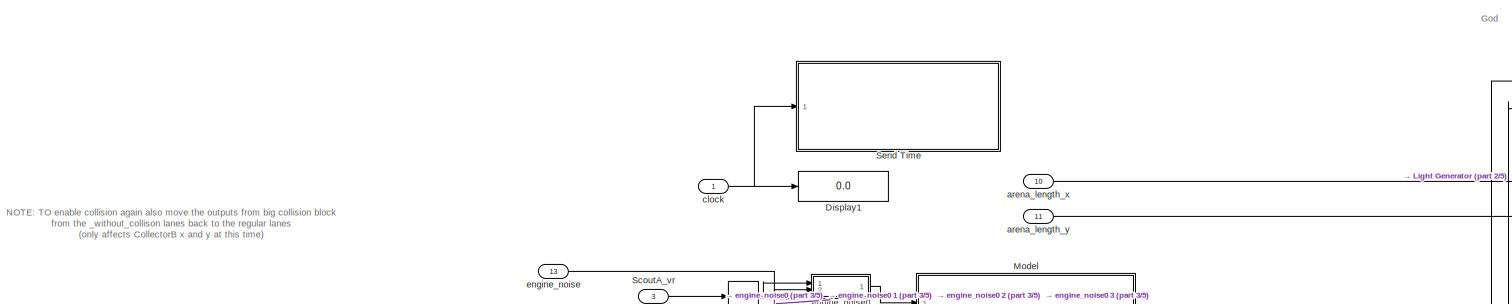
[diagram: root canvas - part 1/5, top left region]
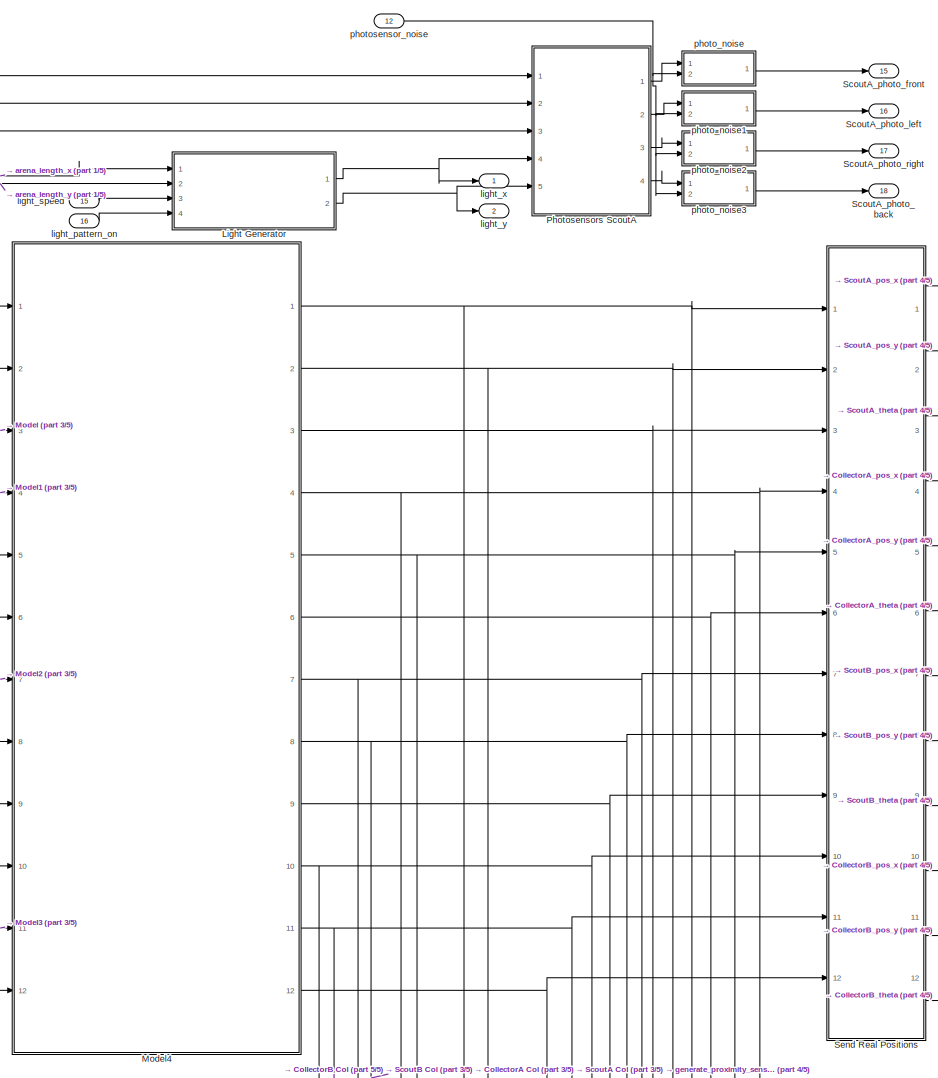
[diagram: root canvas - part 2/5, top right region]
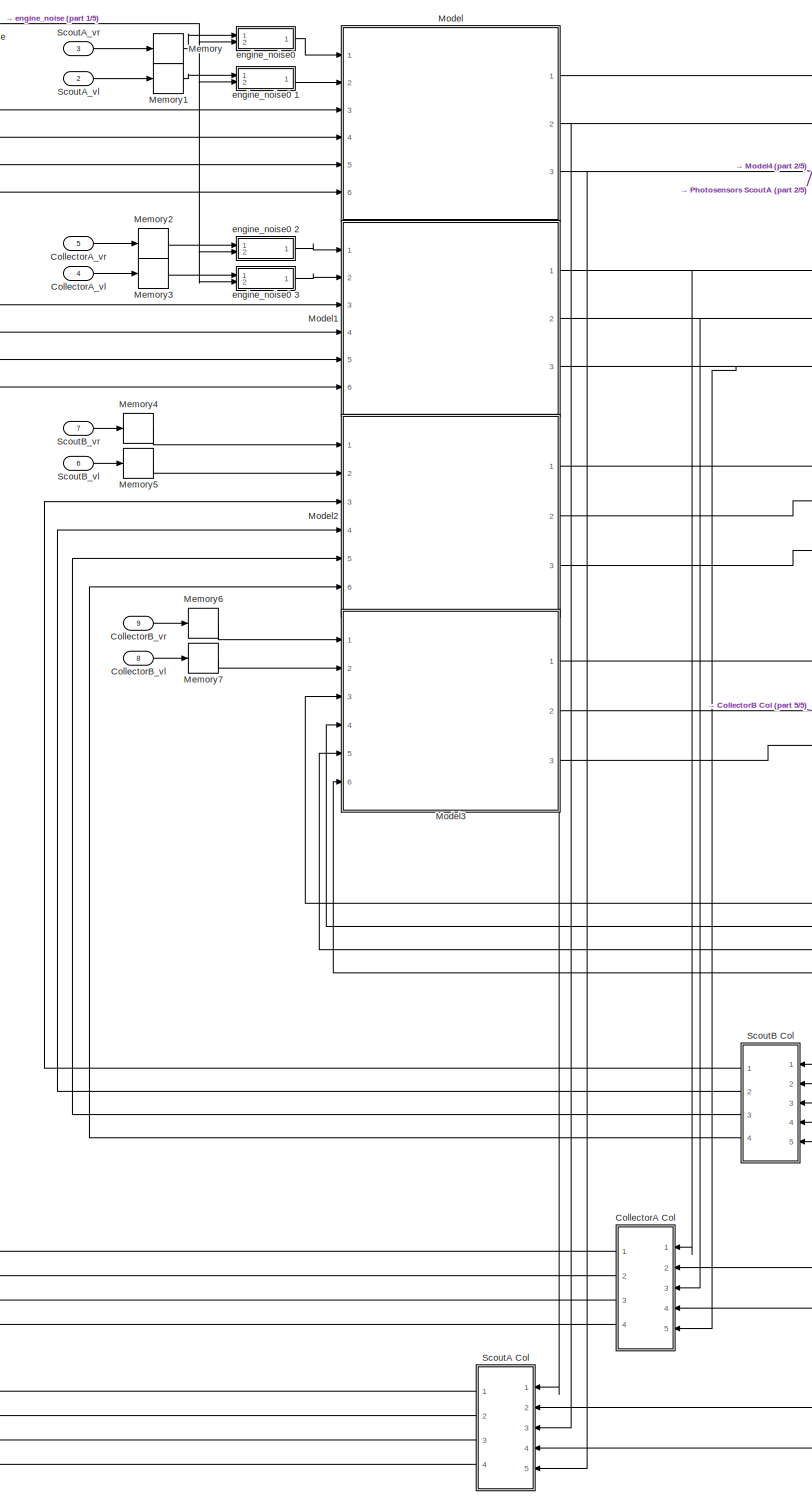
[diagram: root canvas - part 3/5, center side, full height]
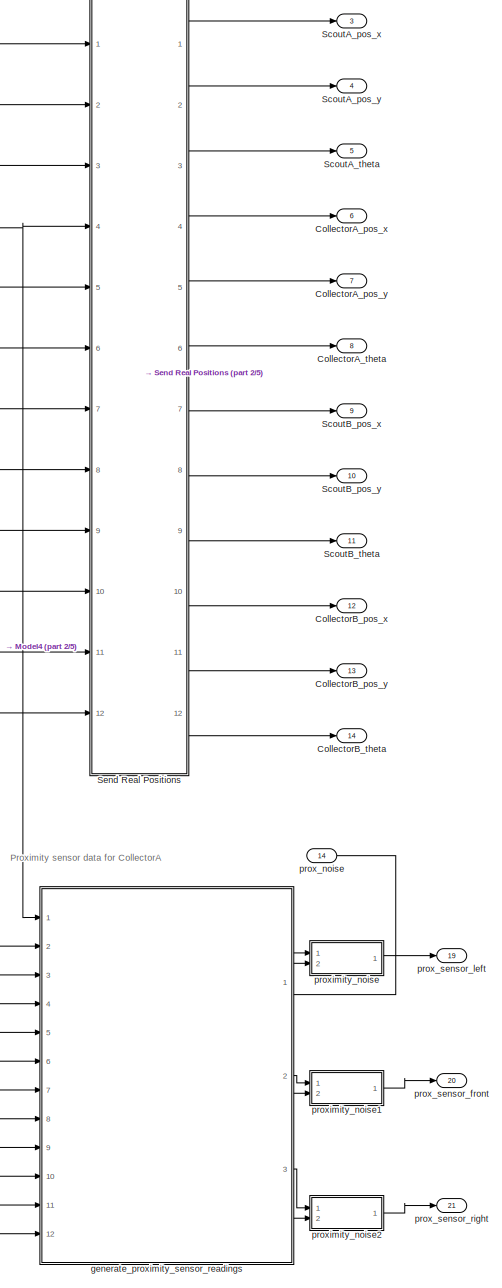
[diagram: root canvas - part 4/5, middle right region]
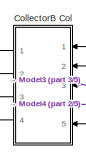
[diagram: root canvas - part 5/5, bottom center region]
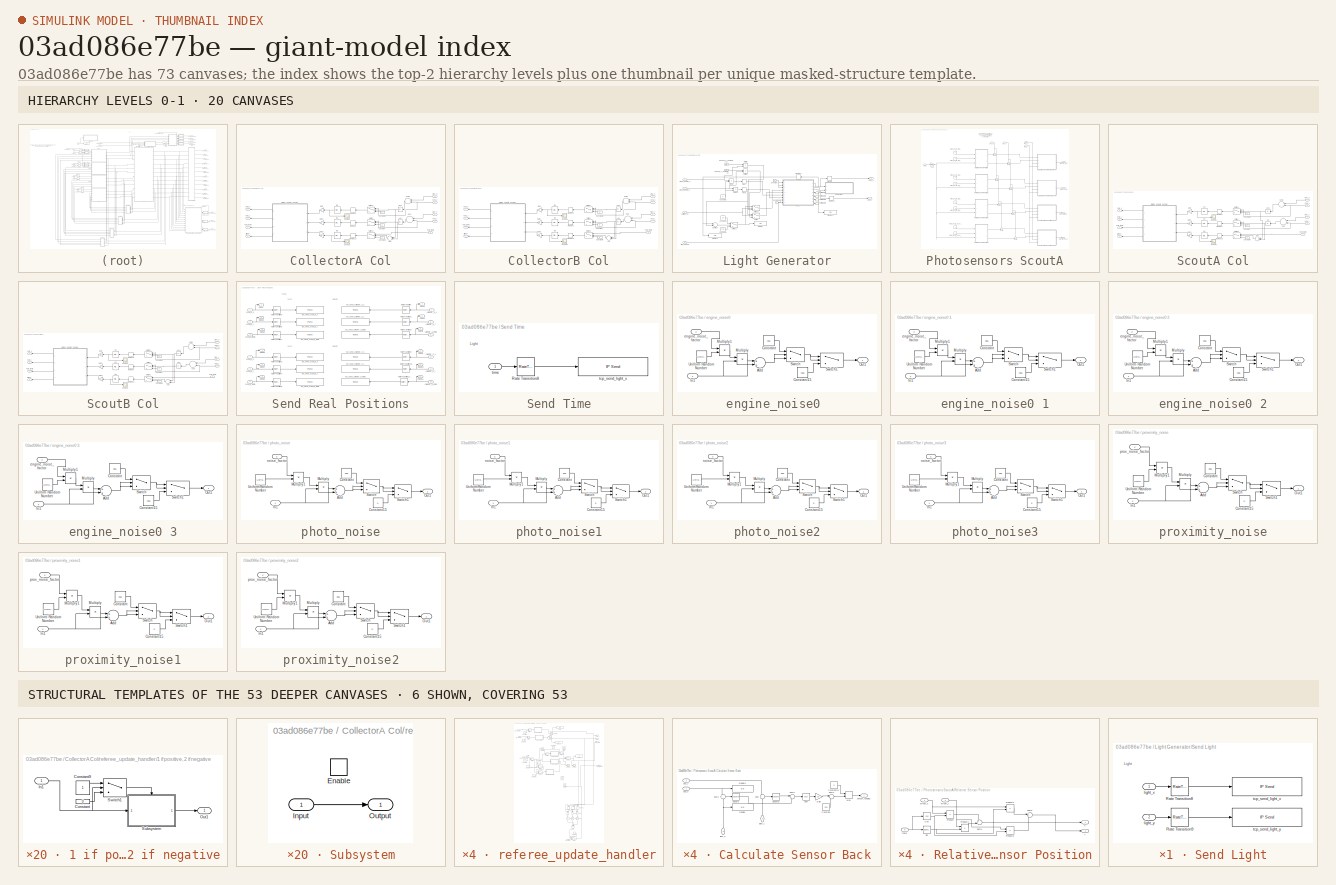
[diagram: thumbnail index - top-2 hierarchy levels (20 canvases) + 6 structural-template representatives of the remaining 53 canvases]
MODEL slx_03ad086e77be
KIND model
CONFIG AbsTol = auto
CONFIG EnableMultiTasking = off
CONFIG FixedStep = 0.01
CONFIG MaxStep = auto
CONFIG MinStep = auto
CONFIG RelTol = 1e-3
CONFIG SampleTimeConstraint = Unconstrained
CONFIG Solver = VariableStepAuto
CONFIG SolverName = VariableStepAuto
CONFIG StartTime = 0.0
CONFIG StopTime = 300
BLOCK [SubSystem] CollectorA Col
  MinAlgLoopOccurrences = on
  Ports = [5, 4]
  RequestExecContextInheritance = off
  TreatAsAtomicUnit = on
BLOCK [Abs] CollectorA Col/Abs
  SaturateOnIntegerOverflow = off
BLOCK [Abs] CollectorA Col/Abs1
  SaturateOnIntegerOverflow = off
BLOCK [Sum] CollectorA Col/Add
  InputSameDT = off
  OutDataTypeStr = Inherit: Inherit via internal rule
  Ports = [2, 1]
  SaturateOnIntegerOverflow = off
BLOCK [Constant] CollectorA Col/Constant
  Value = -2
BLOCK [Constant] CollectorA Col/Constant5
  Value = -2
BLOCK [Constant] CollectorA Col/Constant6
  Value = -2
BLOCK [Gain] CollectorA Col/Gain
  Gain = 0.5
  OutDataTypeStr = Inherit: Inherit via internal rule
  ParamDataTypeStr = Inherit: Inherit via internal rule
  SaturateOnIntegerOverflow = off
BLOCK [Gain] CollectorA Col/Gain1
  Gain = 0.5
  OutDataTypeStr = Inherit: Inherit via internal rule
  ParamDataTypeStr = Inherit: Inherit via internal rule
  SaturateOnIntegerOverflow = off
BLOCK [Gain] CollectorA Col/Gain2
  Gain = 0.5
  OutDataTypeStr = Inherit: Inherit via internal rule
  ParamDataTypeStr = Inherit: Inherit via internal rule
  SaturateOnIntegerOverflow = off
BLOCK [InitialCondition] CollectorA Col/IC3
  Value = 0
BLOCK [InitialCondition] CollectorA Col/IC4
  Value = 100
BLOCK [InitialCondition] CollectorA Col/IC5
  Value = 0
BLOCK [Memory] CollectorA Col/Memory10
BLOCK [Memory] CollectorA Col/Memory8
BLOCK [Memory] CollectorA Col/Memory9
BLOCK [Scope] CollectorA Col/Scope2
  Floating = off
  NumInputPorts = 1
  Ports = [1]
  ScopeSpecificationString = Simulink.scopes.TimeScopeBlockCfg('CurrentConfiguration', extmgr.ConfigurationSet(extmgr.Configuration('Core','General UI',true),extmgr.Configuration('Core','Source UI',true),extmgr.Configuration('Sources','WiredSimulink',true,'DataLoggingVariableName','ScopeData3'),extmgr.Configuration('Visuals','Time Domain',true,'SerializedDisplays',{struct('MinYLimReal','-27.25','MaxYLimReal','225.25','YLabelR...<+1387ch>  <repeated x4 — deduplicated; at blocks: Scope2>
BLOCK [Scope] CollectorA Col/Scope5
  Floating = off
  NumInputPorts = 1
  Ports = [1]
  ScopeSpecificationString = Simulink.scopes.TimeScopeBlockCfg('CurrentConfiguration', extmgr.ConfigurationSet(extmgr.Configuration('Core','General UI',true),extmgr.Configuration('Core','Source UI',true),extmgr.Configuration('Sources','WiredSimulink',true,'DataLoggingVariableName','ScopeData6'),extmgr.Configuration('Visuals','Time Domain',true,'SerializedDisplays',{struct('MinYLimReal','-222.60691','MaxYLimReal','203.46222','...<+1405ch>  <repeated x4 — deduplicated; at blocks: Scope5>
BLOCK [Sum] CollectorA Col/Sum
  InputSameDT = off
  Inputs = +-
  OutDataTypeStr = Inherit: Inherit via internal rule
  Ports = [2, 1]
  SaturateOnIntegerOverflow = off
BLOCK [Sum] CollectorA Col/Sum1
  InputSameDT = off
  Inputs = +-
  OutDataTypeStr = Inherit: Inherit via internal rule
  Ports = [2, 1]
  SaturateOnIntegerOverflow = off
BLOCK [Switch] CollectorA Col/Switch
  Criteria = u2 > Threshold
  InputSameDT = off
  SaturateOnIntegerOverflow = off
BLOCK [Switch] CollectorA Col/Switch1
  Criteria = u2 > Threshold
  InputSameDT = off
  SaturateOnIntegerOverflow = off
BLOCK [Switch] CollectorA Col/Switch2
  Criteria = u2 > Threshold
  InputSameDT = off
  SaturateOnIntegerOverflow = off
BLOCK [Outport] CollectorA Col/held_theta
  IconDisplay = Port number
  Port = 3
BLOCK [Outport] CollectorA Col/held_x
  IconDisplay = Port number
BLOCK [Outport] CollectorA Col/held_y
  IconDisplay = Port number
  Port = 2
BLOCK [Inport] CollectorA Col/new_theta
  IconDisplay = Port number
  Port = 5
BLOCK [Inport] CollectorA Col/new_x
  IconDisplay = Port number
  Port = 2
BLOCK [Inport] CollectorA Col/new_y
  IconDisplay = Port number
  Port = 4
BLOCK [Inport] CollectorA Col/prev_x
  IconDisplay = Port number
BLOCK [Inport] CollectorA Col/prev_y
  IconDisplay = Port number
  Port = 3
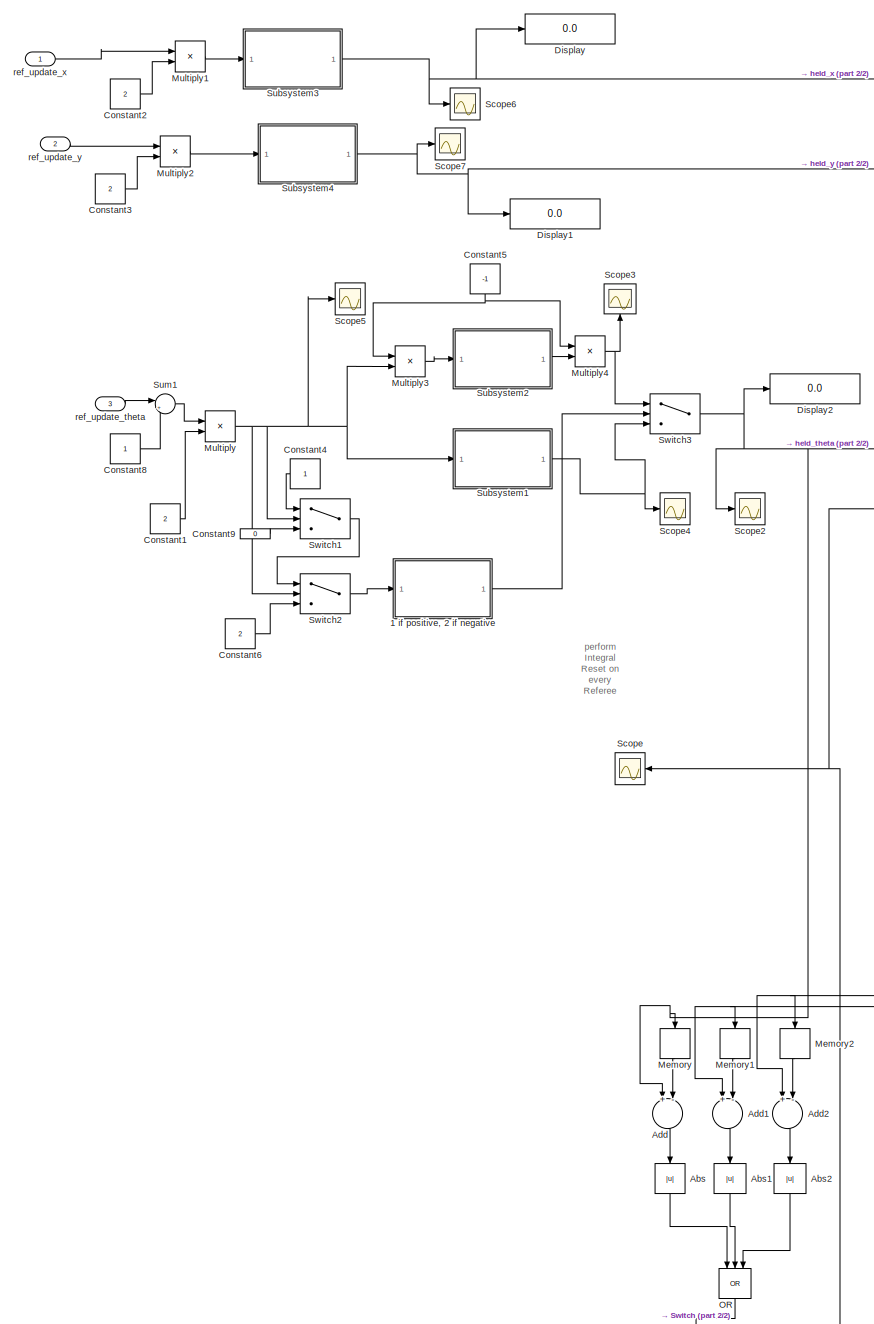
[diagram: CollectorA Col/referee_update_handler - part 1/2, most of the canvas]
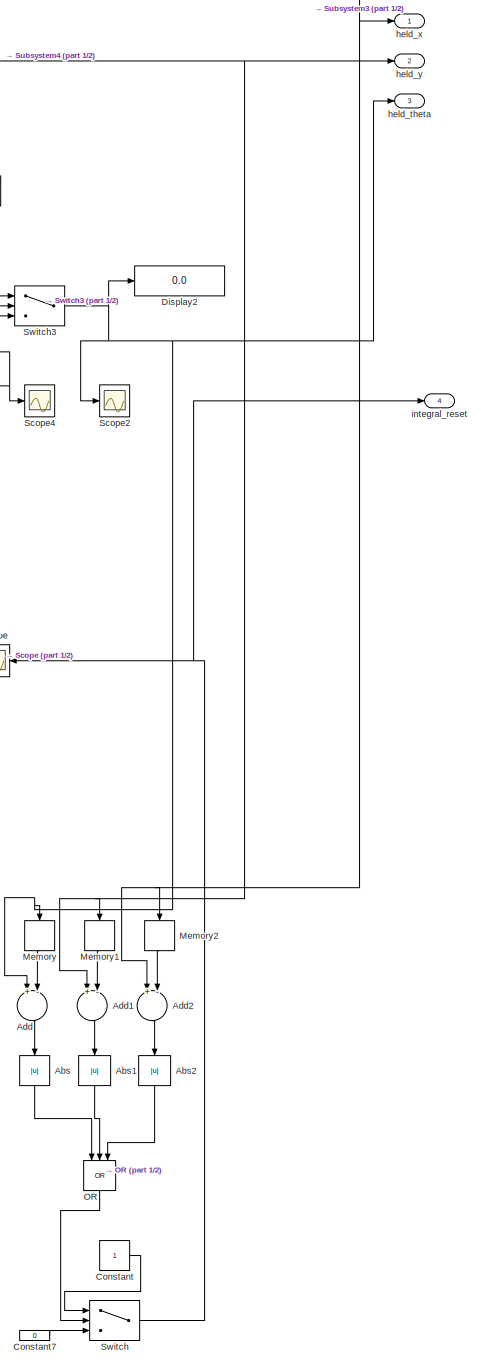
[diagram: CollectorA Col/referee_update_handler - part 2/2, right side, full height]
BLOCK [SubSystem] CollectorA Col/referee_update_handler
  Ports = [3, 4]
  RequestExecContextInheritance = off
BLOCK [SubSystem] CollectorA Col/referee_update_handler/1 if positive, 2 if negative
  Ports = [1, 1]
  RequestExecContextInheritance = off
BLOCK [Constant] CollectorA Col/referee_update_handler/1 if positive, 2 if negative/Constant
  Value = 0
BLOCK [Constant] CollectorA Col/referee_update_handler/1 if positive, 2 if negative/Constant9
BLOCK [Inport] CollectorA Col/referee_update_handler/1 if positive, 2 if negative/In1
  IconDisplay = Port number
BLOCK [Outport] CollectorA Col/referee_update_handler/1 if positive, 2 if negative/Out1
  IconDisplay = Port number
BLOCK [SubSystem] CollectorA Col/referee_update_handler/1 if positive, 2 if negative/Subsystem
  Ports = [1, 1, 1]
  RequestExecContextInheritance = off
BLOCK [EnablePort] CollectorA Col/referee_update_handler/1 if positive, 2 if negative/Subsystem/Enable
  Ports = []
BLOCK [Inport] CollectorA Col/referee_update_handler/1 if positive, 2 if negative/Subsystem/Input
  IconDisplay = Port number
BLOCK [Outport] CollectorA Col/referee_update_handler/1 if positive, 2 if negative/Subsystem/Output
  IconDisplay = Port number
BLOCK [Switch] CollectorA Col/referee_update_handler/1 if positive, 2 if negative/Switch1
  Criteria = u2 > Threshold
  InputSameDT = off
  SaturateOnIntegerOverflow = off
BLOCK [Abs] CollectorA Col/referee_update_handler/Abs
  SaturateOnIntegerOverflow = off
BLOCK [Abs] CollectorA Col/referee_update_handler/Abs1
  SaturateOnIntegerOverflow = off
BLOCK [Abs] CollectorA Col/referee_update_handler/Abs2
  SaturateOnIntegerOverflow = off
BLOCK [Sum] CollectorA Col/referee_update_handler/Add
  InputSameDT = off
  Inputs = +-
  OutDataTypeStr = Inherit: Inherit via internal rule
  Ports = [2, 1]
  SaturateOnIntegerOverflow = off
BLOCK [Sum] CollectorA Col/referee_update_handler/Add1
  InputSameDT = off
  Inputs = +-
  OutDataTypeStr = Inherit: Inherit via internal rule
  Ports = [2, 1]
  SaturateOnIntegerOverflow = off
BLOCK [Sum] CollectorA Col/referee_update_handler/Add2
  InputSameDT = off
  Inputs = +-
  OutDataTypeStr = Inherit: Inherit via internal rule
  Ports = [2, 1]
  SaturateOnIntegerOverflow = off
BLOCK [Constant] CollectorA Col/referee_update_handler/Constant
BLOCK [Constant] CollectorA Col/referee_update_handler/Constant1
  Value = 2
BLOCK [Constant] CollectorA Col/referee_update_handler/Constant2
  Value = 2
BLOCK [Constant] CollectorA Col/referee_update_handler/Constant3
  Value = 2
BLOCK [Constant] CollectorA Col/referee_update_handler/Constant4
BLOCK [Constant] CollectorA Col/referee_update_handler/Constant5
  Value = -1
BLOCK [Constant] CollectorA Col/referee_update_handler/Constant6
  Value = 2
BLOCK [Constant] CollectorA Col/referee_update_handler/Constant7
  Value = 0
BLOCK [Constant] CollectorA Col/referee_update_handler/Constant8
BLOCK [Constant] CollectorA Col/referee_update_handler/Constant9
  Value = 0
BLOCK [Display] CollectorA Col/referee_update_handler/Display
  Decimation = 1
  Ports = [1]
BLOCK [Display] CollectorA Col/referee_update_handler/Display1
  Decimation = 1
  Ports = [1]
BLOCK [Display] CollectorA Col/referee_update_handler/Display2
  Decimation = 1
  Ports = [1]
BLOCK [Memory] CollectorA Col/referee_update_handler/Memory
BLOCK [Memory] CollectorA Col/referee_update_handler/Memory1
BLOCK [Memory] CollectorA Col/referee_update_handler/Memory2
BLOCK [Product] CollectorA Col/referee_update_handler/Multiply
  InputSameDT = off
  OutDataTypeStr = Inherit: Inherit via internal rule
  Ports = [2, 1]
  RndMeth = Floor
  SaturateOnIntegerOverflow = off
BLOCK [Product] CollectorA Col/referee_update_handler/Multiply1
  InputSameDT = off
  OutDataTypeStr = Inherit: Inherit via internal rule
  Ports = [2, 1]
  RndMeth = Floor
  SaturateOnIntegerOverflow = off
BLOCK [Product] CollectorA Col/referee_update_handler/Multiply2
  InputSameDT = off
  OutDataTypeStr = Inherit: Inherit via internal rule
  Ports = [2, 1]
  RndMeth = Floor
  SaturateOnIntegerOverflow = off
BLOCK [Product] CollectorA Col/referee_update_handler/Multiply3
  InputSameDT = off
  OutDataTypeStr = Inherit: Inherit via internal rule
  Ports = [2, 1]
  RndMeth = Floor
  SaturateOnIntegerOverflow = off
BLOCK [Product] CollectorA Col/referee_update_handler/Multiply4
  InputSameDT = off
  OutDataTypeStr = Inherit: Inherit via internal rule
  Ports = [2, 1]
  RndMeth = Floor
  SaturateOnIntegerOverflow = off
BLOCK [Logic] CollectorA Col/referee_update_handler/OR
  AllPortsSameDT = off
  IconShape = distinctive
  Inputs = 3
  Operator = OR
  OutDataTypeStr = boolean
  Ports = [3, 1]
BLOCK [Scope] CollectorA Col/referee_update_handler/Scope
  Floating = off
  NumInputPorts = 1
  Ports = [1]
  ScopeSpecificationString = Simulink.scopes.TimeScopeBlockCfg('CurrentConfiguration', extmgr.ConfigurationSet(extmgr.Configuration('Core','General UI',true),extmgr.Configuration('Core','Source UI',true),extmgr.Configuration('Sources','WiredSimulink',true,'DataLoggingVariableName','ScopeData1'),extmgr.Configuration('Visuals','Time Domain',true,'SerializedDisplays',{struct('MinYLimReal','-0.125','MaxYLimReal','1.125','YLabelRe...<+1382ch>  <repeated x4 — deduplicated; at blocks: Scope>
BLOCK [Scope] CollectorA Col/referee_update_handler/Scope2
  Floating = off
  NumInputPorts = 1
  Ports = [1]
  ScopeSpecificationString = Simulink.scopes.TimeScopeBlockCfg('CurrentConfiguration', extmgr.ConfigurationSet(extmgr.Configuration('Core','General UI',true),extmgr.Configuration('Core','Source UI',true),extmgr.Configuration('Sources','WiredSimulink',true,'DataLoggingVariableName','ScopeData3'),extmgr.Configuration('Visuals','Time Domain',true,'SerializedDisplays',{struct('MinYLimReal','-1.00000','MaxYLimReal','1.00000','YLab...<+1395ch>  <repeated x4 — deduplicated; at blocks: Scope2>
BLOCK [Scope] CollectorA Col/referee_update_handler/Scope3
  Floating = off
  NumInputPorts = 1
  Ports = [1]
  ScopeSpecificationString = Simulink.scopes.TimeScopeBlockCfg('CurrentConfiguration', extmgr.ConfigurationSet(extmgr.Configuration('Core','General UI',true),extmgr.Configuration('Core','Source UI',true),extmgr.Configuration('Sources','WiredSimulink',true,'DataLoggingVariableName','ScopeData4'),extmgr.Configuration('Visuals','Time Domain',true,'SerializedDisplays',{struct('MinYLimReal','-180','MaxYLimReal','180','YLabelReal',...<+1485ch>  <repeated x4 — deduplicated; at blocks: Scope3>
BLOCK [Scope] CollectorA Col/referee_update_handler/Scope4
  Floating = off
  NumInputPorts = 1
  Ports = [1]
  ScopeSpecificationString = Simulink.scopes.TimeScopeBlockCfg('CurrentConfiguration', extmgr.ConfigurationSet(extmgr.Configuration('Core','General UI',true),extmgr.Configuration('Core','Source UI',true),extmgr.Configuration('Sources','WiredSimulink',true,'DataLoggingVariableName','ScopeData5'),extmgr.Configuration('Visuals','Time Domain',true,'SerializedDisplays',{struct('MinYLimReal','-180','MaxYLimReal','180','YLabelReal',...<+1485ch>  <repeated x4 — deduplicated; at blocks: Scope4>
BLOCK [Scope] CollectorA Col/referee_update_handler/Scope5
  Floating = off
  NumInputPorts = 1
  Ports = [1]
  ScopeSpecificationString = Simulink.scopes.TimeScopeBlockCfg('CurrentConfiguration', extmgr.ConfigurationSet(extmgr.Configuration('Core','General UI',true),extmgr.Configuration('Core','Source UI',true),extmgr.Configuration('Sources','WiredSimulink',true,'DataLoggingVariableName','ScopeData1'),extmgr.Configuration('Visuals','Time Domain',true,'SerializedDisplays',{struct('MinYLimReal','-180','MaxYLimReal','180','YLabelReal',...<+1446ch>  <repeated x4 — deduplicated; at blocks: Scope5>
BLOCK [Scope] CollectorA Col/referee_update_handler/Scope6
  Floating = off
  NumInputPorts = 1
  Ports = [1]
  ScopeSpecificationString = Simulink.scopes.TimeScopeBlockCfg('CurrentConfiguration', extmgr.ConfigurationSet(extmgr.Configuration('Core','General UI',true),extmgr.Configuration('Core','Source UI',true),extmgr.Configuration('Sources','WiredSimulink',true,'DataLoggingVariableName','ScopeData2'),extmgr.Configuration('Visuals','Time Domain',true,'SerializedDisplays',{struct('MinYLimReal','-1.00000','MaxYLimReal','1.00000','YLab...<+1369ch>  <repeated x4 — deduplicated; at blocks: Scope6>
BLOCK [Scope] CollectorA Col/referee_update_handler/Scope7
  Floating = off
  NumInputPorts = 1
  Ports = [1]
  ScopeSpecificationString = Simulink.scopes.TimeScopeBlockCfg('CurrentConfiguration', extmgr.ConfigurationSet(extmgr.Configuration('Core','General UI',true),extmgr.Configuration('Core','Source UI',true),extmgr.Configuration('Sources','WiredSimulink',true,'DataLoggingVariableName','ScopeData3'),extmgr.Configuration('Visuals','Time Domain',true,'SerializedDisplays',{struct('MinYLimReal','-1.00000','MaxYLimReal','1.00000','YLab...<+1416ch>  <repeated x4 — deduplicated; at blocks: Scope7>
BLOCK [SubSystem] CollectorA Col/referee_update_handler/Subsystem1
  Ports = [1, 1]
  RequestExecContextInheritance = off
BLOCK [Constant] CollectorA Col/referee_update_handler/Subsystem1/Constant
  Value = 0
BLOCK [Constant] CollectorA Col/referee_update_handler/Subsystem1/Constant9
BLOCK [Inport] CollectorA Col/referee_update_handler/Subsystem1/In1
  IconDisplay = Port number
BLOCK [Outport] CollectorA Col/referee_update_handler/Subsystem1/Out1
  IconDisplay = Port number
BLOCK [SubSystem] CollectorA Col/referee_update_handler/Subsystem1/Subsystem
  Ports = [1, 1, 1]
  RequestExecContextInheritance = off
BLOCK [EnablePort] CollectorA Col/referee_update_handler/Subsystem1/Subsystem/Enable
  Ports = []
BLOCK [Inport] CollectorA Col/referee_update_handler/Subsystem1/Subsystem/Input
  IconDisplay = Port number
BLOCK [Outport] CollectorA Col/referee_update_handler/Subsystem1/Subsystem/Output
  IconDisplay = Port number
BLOCK [Switch] CollectorA Col/referee_update_handler/Subsystem1/Switch1
  Criteria = u2 > Threshold
  InputSameDT = off
  SaturateOnIntegerOverflow = off
BLOCK [SubSystem] CollectorA Col/referee_update_handler/Subsystem2
  Ports = [1, 1]
  RequestExecContextInheritance = off
BLOCK [Constant] CollectorA Col/referee_update_handler/Subsystem2/Constant
  Value = 0
BLOCK [Constant] CollectorA Col/referee_update_handler/Subsystem2/Constant9
BLOCK [Inport] CollectorA Col/referee_update_handler/Subsystem2/In1
  IconDisplay = Port number
BLOCK [Outport] CollectorA Col/referee_update_handler/Subsystem2/Out1
  IconDisplay = Port number
BLOCK [SubSystem] CollectorA Col/referee_update_handler/Subsystem2/Subsystem
  Ports = [1, 1, 1]
  RequestExecContextInheritance = off
BLOCK [EnablePort] CollectorA Col/referee_update_handler/Subsystem2/Subsystem/Enable
  Ports = []
BLOCK [Inport] CollectorA Col/referee_update_handler/Subsystem2/Subsystem/Input
  IconDisplay = Port number
BLOCK [Outport] CollectorA Col/referee_update_handler/Subsystem2/Subsystem/Output
  IconDisplay = Port number
BLOCK [Switch] CollectorA Col/referee_update_handler/Subsystem2/Switch1
  Criteria = u2 > Threshold
  InputSameDT = off
  SaturateOnIntegerOverflow = off
BLOCK [SubSystem] CollectorA Col/referee_update_handler/Subsystem3
  Ports = [1, 1]
  RequestExecContextInheritance = off
BLOCK [Constant] CollectorA Col/referee_update_handler/Subsystem3/Constant1
  Value = 0
BLOCK [Constant] CollectorA Col/referee_update_handler/Subsystem3/Constant9
BLOCK [Inport] CollectorA Col/referee_update_handler/Subsystem3/In1
  IconDisplay = Port number
BLOCK [Outport] CollectorA Col/referee_update_handler/Subsystem3/Out1
  IconDisplay = Port number
BLOCK [SubSystem] CollectorA Col/referee_update_handler/Subsystem3/Subsystem
  Ports = [1, 1, 1]
  RequestExecContextInheritance = off
BLOCK [EnablePort] CollectorA Col/referee_update_handler/Subsystem3/Subsystem/Enable
  Ports = []
BLOCK [Inport] CollectorA Col/referee_update_handler/Subsystem3/Subsystem/Input
  IconDisplay = Port number
BLOCK [Outport] CollectorA Col/referee_update_handler/Subsystem3/Subsystem/Output
  IconDisplay = Port number
BLOCK [Switch] CollectorA Col/referee_update_handler/Subsystem3/Switch1
  Criteria = u2 > Threshold
  InputSameDT = off
  SaturateOnIntegerOverflow = off
BLOCK [SubSystem] CollectorA Col/referee_update_handler/Subsystem4
  Ports = [1, 1]
  RequestExecContextInheritance = off
BLOCK [Constant] CollectorA Col/referee_update_handler/Subsystem4/Constant1
  Value = 0
BLOCK [Constant] CollectorA Col/referee_update_handler/Subsystem4/Constant9
BLOCK [Inport] CollectorA Col/referee_update_handler/Subsystem4/In1
  IconDisplay = Port number
BLOCK [Outport] CollectorA Col/referee_update_handler/Subsystem4/Out1
  IconDisplay = Port number
BLOCK [SubSystem] CollectorA Col/referee_update_handler/Subsystem4/Subsystem
  Ports = [1, 1, 1]
  RequestExecContextInheritance = off
BLOCK [EnablePort] CollectorA Col/referee_update_handler/Subsystem4/Subsystem/Enable
  Ports = []
BLOCK [Inport] CollectorA Col/referee_update_handler/Subsystem4/Subsystem/Input
  IconDisplay = Port number
BLOCK [Outport] CollectorA Col/referee_update_handler/Subsystem4/Subsystem/Output
  IconDisplay = Port number
BLOCK [Switch] CollectorA Col/referee_update_handler/Subsystem4/Switch1
  Criteria = u2 > Threshold
  InputSameDT = off
  SaturateOnIntegerOverflow = off
BLOCK [Sum] CollectorA Col/referee_update_handler/Sum1
  IconShape = round
  InputSameDT = off
  Inputs = |++
  OutDataTypeStr = Inherit: Inherit via internal rule
  Ports = [2, 1]
  SaturateOnIntegerOverflow = off
BLOCK [Switch] CollectorA Col/referee_update_handler/Switch
  Criteria = u2 > Threshold
  InputSameDT = off
  SaturateOnIntegerOverflow = off
BLOCK [Switch] CollectorA Col/referee_update_handler/Switch1
  Criteria = u2 > Threshold
  InputSameDT = off
  SaturateOnIntegerOverflow = off
BLOCK [Switch] CollectorA Col/referee_update_handler/Switch2
  InputSameDT = off
  SaturateOnIntegerOverflow = off
BLOCK [Switch] CollectorA Col/referee_update_handler/Switch3
  Criteria = u2 > Threshold
  InputSameDT = off
  SaturateOnIntegerOverflow = off
  Threshold = 1
BLOCK [Outport] CollectorA Col/referee_update_handler/held_theta
  IconDisplay = Port number
  Port = 3
BLOCK [Outport] CollectorA Col/referee_update_handler/held_x
  IconDisplay = Port number
BLOCK [Outport] CollectorA Col/referee_update_handler/held_y
  IconDisplay = Port number
  Port = 2
BLOCK [Outport] CollectorA Col/referee_update_handler/integral_reset
  IconDisplay = Port number
  Port = 4
BLOCK [Inport] CollectorA Col/referee_update_handler/ref_update_theta
  IconDisplay = Port number
  Port = 3
BLOCK [Inport] CollectorA Col/referee_update_handler/ref_update_x
  IconDisplay = Port number
BLOCK [Inport] CollectorA Col/referee_update_handler/ref_update_y
  IconDisplay = Port number
  Port = 2
BLOCK [Outport] CollectorA Col/trigger
  IconDisplay = Port number
  Port = 4
BLOCK [Outport] CollectorA_pos_x
  IconDisplay = Port number
  Port = 6
BLOCK [Outport] CollectorA_pos_y
  IconDisplay = Port number
  Port = 7
BLOCK [Outport] CollectorA_theta
  IconDisplay = Port number
  Port = 8
BLOCK [Inport] CollectorA_vl
  IconDisplay = Port number
  Port = 4
BLOCK [Inport] CollectorA_vr
  IconDisplay = Port number
  Port = 5
BLOCK [SubSystem] CollectorB Col
  MinAlgLoopOccurrences = on
  Ports = [5, 4]
  RequestExecContextInheritance = off
  TreatAsAtomicUnit = on
BLOCK [Abs] CollectorB Col/Abs
  SaturateOnIntegerOverflow = off
BLOCK [Abs] CollectorB Col/Abs1
  SaturateOnIntegerOverflow = off
BLOCK [Sum] CollectorB Col/Add
  InputSameDT = off
  OutDataTypeStr = Inherit: Inherit via internal rule
  Ports = [2, 1]
  SaturateOnIntegerOverflow = off
BLOCK [Constant] CollectorB Col/Constant
  Value = -2
BLOCK [Constant] CollectorB Col/Constant5
  Value = -2
BLOCK [Constant] CollectorB Col/Constant6
  Value = -2
BLOCK [Gain] CollectorB Col/Gain
  Gain = 0.5
  OutDataTypeStr = Inherit: Inherit via internal rule
  ParamDataTypeStr = Inherit: Inherit via internal rule
  SaturateOnIntegerOverflow = off
BLOCK [Gain] CollectorB Col/Gain1
  Gain = 0.5
  OutDataTypeStr = Inherit: Inherit via internal rule
  ParamDataTypeStr = Inherit: Inherit via internal rule
  SaturateOnIntegerOverflow = off
BLOCK [Gain] CollectorB Col/Gain2
  Gain = 0.5
  OutDataTypeStr = Inherit: Inherit via internal rule
  ParamDataTypeStr = Inherit: Inherit via internal rule
  SaturateOnIntegerOverflow = off
BLOCK [InitialCondition] CollectorB Col/IC3
  Value = 200
BLOCK [InitialCondition] CollectorB Col/IC4
  Value = 0
BLOCK [InitialCondition] CollectorB Col/IC5
  Value = 180
BLOCK [Memory] CollectorB Col/Memory10
BLOCK [Memory] CollectorB Col/Memory8
BLOCK [Memory] CollectorB Col/Memory9
BLOCK [Scope] CollectorB Col/Scope2
  Floating = off
  NumInputPorts = 1
  Ports = [1]
BLOCK [Scope] CollectorB Col/Scope5
  Floating = off
  NumInputPorts = 1
  Ports = [1]
BLOCK [Sum] CollectorB Col/Sum
  InputSameDT = off
  Inputs = +-
  OutDataTypeStr = Inherit: Inherit via internal rule
  Ports = [2, 1]
  SaturateOnIntegerOverflow = off
BLOCK [Sum] CollectorB Col/Sum1
  InputSameDT = off
  Inputs = +-
  OutDataTypeStr = Inherit: Inherit via internal rule
  Ports = [2, 1]
  SaturateOnIntegerOverflow = off
BLOCK [Switch] CollectorB Col/Switch
  Criteria = u2 > Threshold
  InputSameDT = off
  SaturateOnIntegerOverflow = off
BLOCK [Switch] CollectorB Col/Switch1
  Criteria = u2 > Threshold
  InputSameDT = off
  SaturateOnIntegerOverflow = off
BLOCK [Switch] CollectorB Col/Switch2
  Criteria = u2 > Threshold
  InputSameDT = off
  SaturateOnIntegerOverflow = off
BLOCK [Outport] CollectorB Col/held_theta
  IconDisplay = Port number
  Port = 3
BLOCK [Outport] CollectorB Col/held_x
  IconDisplay = Port number
BLOCK [Outport] CollectorB Col/held_y
  IconDisplay = Port number
  Port = 2
BLOCK [Inport] CollectorB Col/new_theta
  IconDisplay = Port number
  Port = 5
BLOCK [Inport] CollectorB Col/new_x
  IconDisplay = Port number
  Port = 2
BLOCK [Inport] CollectorB Col/new_y
  IconDisplay = Port number
  Port = 4
BLOCK [Inport] CollectorB Col/prev_x
  IconDisplay = Port number
BLOCK [Inport] CollectorB Col/prev_y
  IconDisplay = Port number
  Port = 3
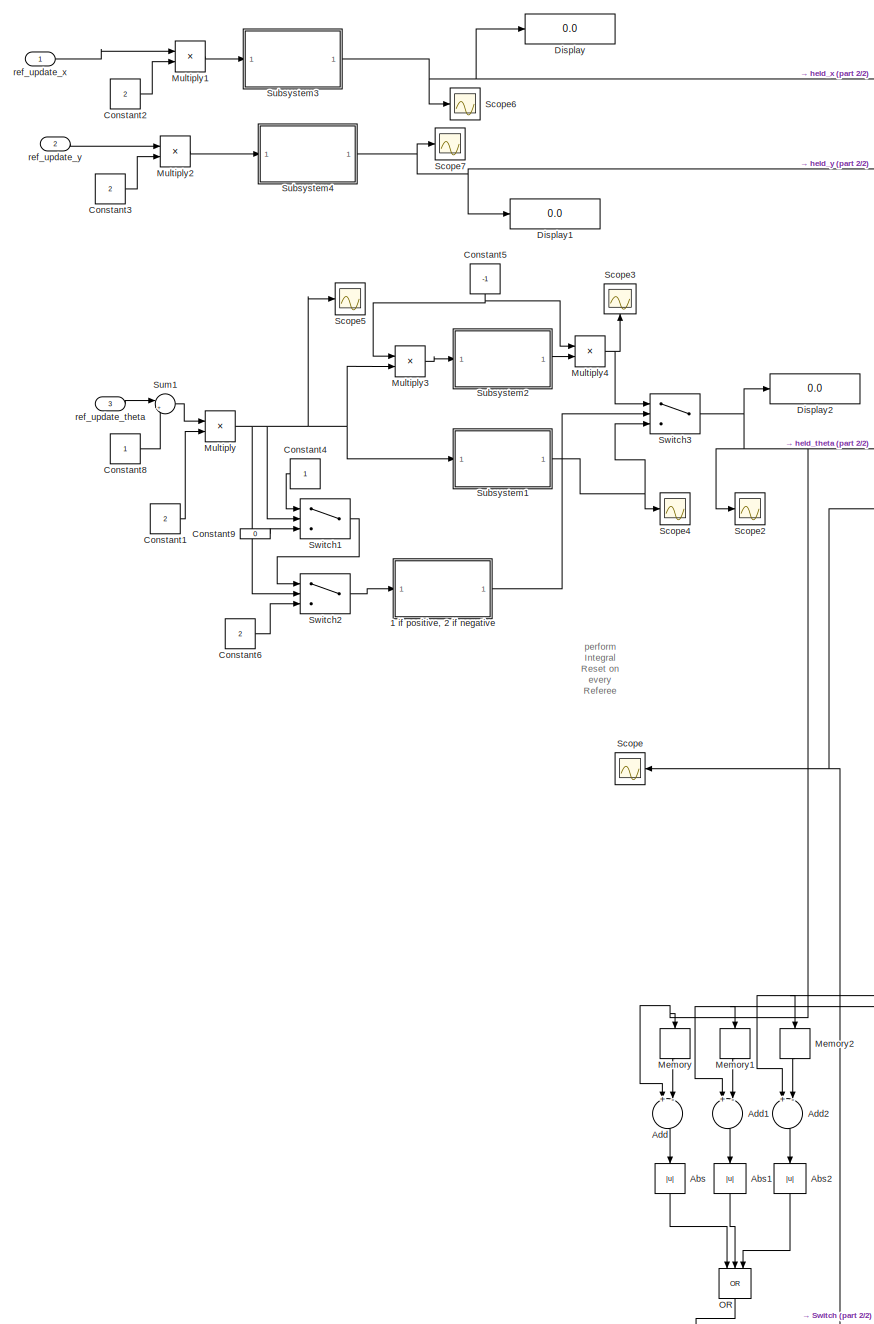
[diagram: CollectorB Col/referee_update_handler - part 1/2, most of the canvas]
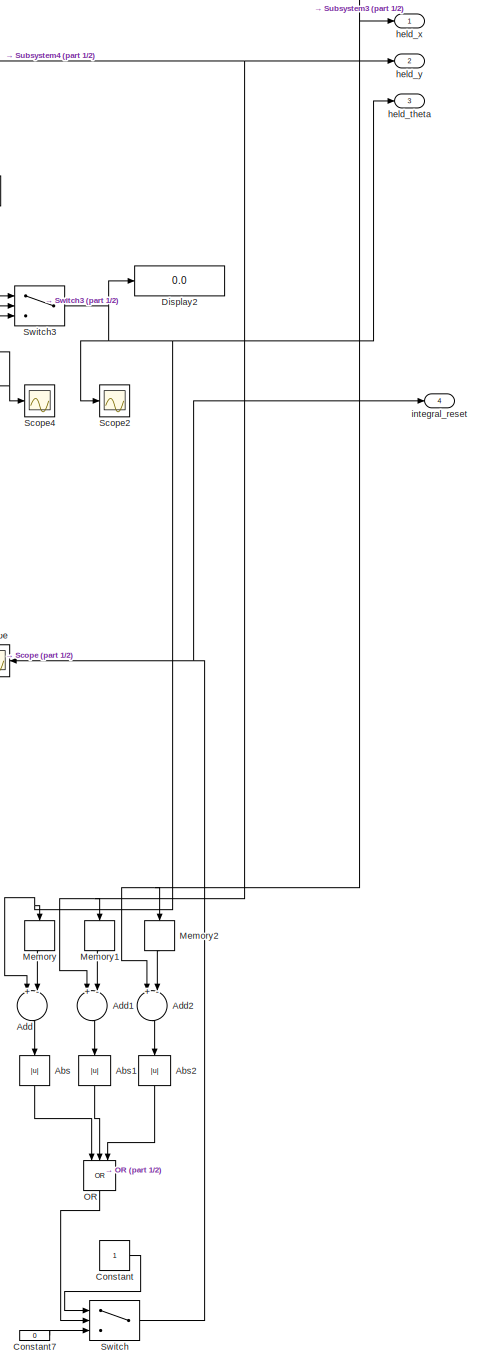
[diagram: CollectorB Col/referee_update_handler - part 2/2, right side, full height]
BLOCK [SubSystem] CollectorB Col/referee_update_handler
  Ports = [3, 4]
  RequestExecContextInheritance = off
BLOCK [SubSystem] CollectorB Col/referee_update_handler/1 if positive, 2 if negative
  Ports = [1, 1]
  RequestExecContextInheritance = off
BLOCK [Constant] CollectorB Col/referee_update_handler/1 if positive, 2 if negative/Constant
  Value = 0
BLOCK [Constant] CollectorB Col/referee_update_handler/1 if positive, 2 if negative/Constant9
BLOCK [Inport] CollectorB Col/referee_update_handler/1 if positive, 2 if negative/In1
  IconDisplay = Port number
BLOCK [Outport] CollectorB Col/referee_update_handler/1 if positive, 2 if negative/Out1
  IconDisplay = Port number
BLOCK [SubSystem] CollectorB Col/referee_update_handler/1 if positive, 2 if negative/Subsystem
  Ports = [1, 1, 1]
  RequestExecContextInheritance = off
BLOCK [EnablePort] CollectorB Col/referee_update_handler/1 if positive, 2 if negative/Subsystem/Enable
  Ports = []
BLOCK [Inport] CollectorB Col/referee_update_handler/1 if positive, 2 if negative/Subsystem/Input
  IconDisplay = Port number
BLOCK [Outport] CollectorB Col/referee_update_handler/1 if positive, 2 if negative/Subsystem/Output
  IconDisplay = Port number
BLOCK [Switch] CollectorB Col/referee_update_handler/1 if positive, 2 if negative/Switch1
  Criteria = u2 > Threshold
  InputSameDT = off
  SaturateOnIntegerOverflow = off
BLOCK [Abs] CollectorB Col/referee_update_handler/Abs
  SaturateOnIntegerOverflow = off
BLOCK [Abs] CollectorB Col/referee_update_handler/Abs1
  SaturateOnIntegerOverflow = off
BLOCK [Abs] CollectorB Col/referee_update_handler/Abs2
  SaturateOnIntegerOverflow = off
BLOCK [Sum] CollectorB Col/referee_update_handler/Add
  InputSameDT = off
  Inputs = +-
  OutDataTypeStr = Inherit: Inherit via internal rule
  Ports = [2, 1]
  SaturateOnIntegerOverflow = off
BLOCK [Sum] CollectorB Col/referee_update_handler/Add1
  InputSameDT = off
  Inputs = +-
  OutDataTypeStr = Inherit: Inherit via internal rule
  Ports = [2, 1]
  SaturateOnIntegerOverflow = off
BLOCK [Sum] CollectorB Col/referee_update_handler/Add2
  InputSameDT = off
  Inputs = +-
  OutDataTypeStr = Inherit: Inherit via internal rule
  Ports = [2, 1]
  SaturateOnIntegerOverflow = off
BLOCK [Constant] CollectorB Col/referee_update_handler/Constant
BLOCK [Constant] CollectorB Col/referee_update_handler/Constant1
  Value = 2
BLOCK [Constant] CollectorB Col/referee_update_handler/Constant2
  Value = 2
BLOCK [Constant] CollectorB Col/referee_update_handler/Constant3
  Value = 2
BLOCK [Constant] CollectorB Col/referee_update_handler/Constant4
BLOCK [Constant] CollectorB Col/referee_update_handler/Constant5
  Value = -1
BLOCK [Constant] CollectorB Col/referee_update_handler/Constant6
  Value = 2
BLOCK [Constant] CollectorB Col/referee_update_handler/Constant7
  Value = 0
BLOCK [Constant] CollectorB Col/referee_update_handler/Constant8
BLOCK [Constant] CollectorB Col/referee_update_handler/Constant9
  Value = 0
BLOCK [Display] CollectorB Col/referee_update_handler/Display
  Decimation = 1
  Ports = [1]
BLOCK [Display] CollectorB Col/referee_update_handler/Display1
  Decimation = 1
  Ports = [1]
BLOCK [Display] CollectorB Col/referee_update_handler/Display2
  Decimation = 1
  Ports = [1]
BLOCK [Memory] CollectorB Col/referee_update_handler/Memory
BLOCK [Memory] CollectorB Col/referee_update_handler/Memory1
BLOCK [Memory] CollectorB Col/referee_update_handler/Memory2
BLOCK [Product] CollectorB Col/referee_update_handler/Multiply
  InputSameDT = off
  OutDataTypeStr = Inherit: Inherit via internal rule
  Ports = [2, 1]
  RndMeth = Floor
  SaturateOnIntegerOverflow = off
BLOCK [Product] CollectorB Col/referee_update_handler/Multiply1
  InputSameDT = off
  OutDataTypeStr = Inherit: Inherit via internal rule
  Ports = [2, 1]
  RndMeth = Floor
  SaturateOnIntegerOverflow = off
BLOCK [Product] CollectorB Col/referee_update_handler/Multiply2
  InputSameDT = off
  OutDataTypeStr = Inherit: Inherit via internal rule
  Ports = [2, 1]
  RndMeth = Floor
  SaturateOnIntegerOverflow = off
BLOCK [Product] CollectorB Col/referee_update_handler/Multiply3
  InputSameDT = off
  OutDataTypeStr = Inherit: Inherit via internal rule
  Ports = [2, 1]
  RndMeth = Floor
  SaturateOnIntegerOverflow = off
BLOCK [Product] CollectorB Col/referee_update_handler/Multiply4
  InputSameDT = off
  OutDataTypeStr = Inherit: Inherit via internal rule
  Ports = [2, 1]
  RndMeth = Floor
  SaturateOnIntegerOverflow = off
BLOCK [Logic] CollectorB Col/referee_update_handler/OR
  AllPortsSameDT = off
  IconShape = distinctive
  Inputs = 3
  Operator = OR
  OutDataTypeStr = boolean
  Ports = [3, 1]
BLOCK [Scope] CollectorB Col/referee_update_handler/Scope
  Floating = off
  NumInputPorts = 1
  Ports = [1]
BLOCK [Scope] CollectorB Col/referee_update_handler/Scope2
  Floating = off
  NumInputPorts = 1
  Ports = [1]
BLOCK [Scope] CollectorB Col/referee_update_handler/Scope3
  Floating = off
  NumInputPorts = 1
  Ports = [1]
BLOCK [Scope] CollectorB Col/referee_update_handler/Scope4
  Floating = off
  NumInputPorts = 1
  Ports = [1]
BLOCK [Scope] CollectorB Col/referee_update_handler/Scope5
  Floating = off
  NumInputPorts = 1
  Ports = [1]
BLOCK [Scope] CollectorB Col/referee_update_handler/Scope6
  Floating = off
  NumInputPorts = 1
  Ports = [1]
BLOCK [Scope] CollectorB Col/referee_update_handler/Scope7
  Floating = off
  NumInputPorts = 1
  Ports = [1]
BLOCK [SubSystem] CollectorB Col/referee_update_handler/Subsystem1
  Ports = [1, 1]
  RequestExecContextInheritance = off
BLOCK [Constant] CollectorB Col/referee_update_handler/Subsystem1/Constant
  Value = 0
BLOCK [Constant] CollectorB Col/referee_update_handler/Subsystem1/Constant9
BLOCK [Inport] CollectorB Col/referee_update_handler/Subsystem1/In1
  IconDisplay = Port number
BLOCK [Outport] CollectorB Col/referee_update_handler/Subsystem1/Out1
  IconDisplay = Port number
BLOCK [SubSystem] CollectorB Col/referee_update_handler/Subsystem1/Subsystem
  Ports = [1, 1, 1]
  RequestExecContextInheritance = off
BLOCK [EnablePort] CollectorB Col/referee_update_handler/Subsystem1/Subsystem/Enable
  Ports = []
BLOCK [Inport] CollectorB Col/referee_update_handler/Subsystem1/Subsystem/Input
  IconDisplay = Port number
BLOCK [Outport] CollectorB Col/referee_update_handler/Subsystem1/Subsystem/Output
  IconDisplay = Port number
BLOCK [Switch] CollectorB Col/referee_update_handler/Subsystem1/Switch1
  Criteria = u2 > Threshold
  InputSameDT = off
  SaturateOnIntegerOverflow = off
BLOCK [SubSystem] CollectorB Col/referee_update_handler/Subsystem2
  Ports = [1, 1]
  RequestExecContextInheritance = off
BLOCK [Constant] CollectorB Col/referee_update_handler/Subsystem2/Constant
  Value = 0
BLOCK [Constant] CollectorB Col/referee_update_handler/Subsystem2/Constant9
BLOCK [Inport] CollectorB Col/referee_update_handler/Subsystem2/In1
  IconDisplay = Port number
BLOCK [Outport] CollectorB Col/referee_update_handler/Subsystem2/Out1
  IconDisplay = Port number
BLOCK [SubSystem] CollectorB Col/referee_update_handler/Subsystem2/Subsystem
  Ports = [1, 1, 1]
  RequestExecContextInheritance = off
BLOCK [EnablePort] CollectorB Col/referee_update_handler/Subsystem2/Subsystem/Enable
  Ports = []
BLOCK [Inport] CollectorB Col/referee_update_handler/Subsystem2/Subsystem/Input
  IconDisplay = Port number
BLOCK [Outport] CollectorB Col/referee_update_handler/Subsystem2/Subsystem/Output
  IconDisplay = Port number
BLOCK [Switch] CollectorB Col/referee_update_handler/Subsystem2/Switch1
  Criteria = u2 > Threshold
  InputSameDT = off
  SaturateOnIntegerOverflow = off
BLOCK [SubSystem] CollectorB Col/referee_update_handler/Subsystem3
  Ports = [1, 1]
  RequestExecContextInheritance = off
BLOCK [Constant] CollectorB Col/referee_update_handler/Subsystem3/Constant1
  Value = 0
BLOCK [Constant] CollectorB Col/referee_update_handler/Subsystem3/Constant9
BLOCK [Inport] CollectorB Col/referee_update_handler/Subsystem3/In1
  IconDisplay = Port number
BLOCK [Outport] CollectorB Col/referee_update_handler/Subsystem3/Out1
  IconDisplay = Port number
BLOCK [SubSystem] CollectorB Col/referee_update_handler/Subsystem3/Subsystem
  Ports = [1, 1, 1]
  RequestExecContextInheritance = off
BLOCK [EnablePort] CollectorB Col/referee_update_handler/Subsystem3/Subsystem/Enable
  Ports = []
BLOCK [Inport] CollectorB Col/referee_update_handler/Subsystem3/Subsystem/Input
  IconDisplay = Port number
BLOCK [Outport] CollectorB Col/referee_update_handler/Subsystem3/Subsystem/Output
  IconDisplay = Port number
BLOCK [Switch] CollectorB Col/referee_update_handler/Subsystem3/Switch1
  Criteria = u2 > Threshold
  InputSameDT = off
  SaturateOnIntegerOverflow = off
BLOCK [SubSystem] CollectorB Col/referee_update_handler/Subsystem4
  Ports = [1, 1]
  RequestExecContextInheritance = off
BLOCK [Constant] CollectorB Col/referee_update_handler/Subsystem4/Constant1
  Value = 0
BLOCK [Constant] CollectorB Col/referee_update_handler/Subsystem4/Constant9
BLOCK [Inport] CollectorB Col/referee_update_handler/Subsystem4/In1
  IconDisplay = Port number
BLOCK [Outport] CollectorB Col/referee_update_handler/Subsystem4/Out1
  IconDisplay = Port number
BLOCK [SubSystem] CollectorB Col/referee_update_handler/Subsystem4/Subsystem
  Ports = [1, 1, 1]
  RequestExecContextInheritance = off
BLOCK [EnablePort] CollectorB Col/referee_update_handler/Subsystem4/Subsystem/Enable
  Ports = []
BLOCK [Inport] CollectorB Col/referee_update_handler/Subsystem4/Subsystem/Input
  IconDisplay = Port number
BLOCK [Outport] CollectorB Col/referee_update_handler/Subsystem4/Subsystem/Output
  IconDisplay = Port number
BLOCK [Switch] CollectorB Col/referee_update_handler/Subsystem4/Switch1
  Criteria = u2 > Threshold
  InputSameDT = off
  SaturateOnIntegerOverflow = off
BLOCK [Sum] CollectorB Col/referee_update_handler/Sum1
  IconShape = round
  InputSameDT = off
  Inputs = |++
  OutDataTypeStr = Inherit: Inherit via internal rule
  Ports = [2, 1]
  SaturateOnIntegerOverflow = off
BLOCK [Switch] CollectorB Col/referee_update_handler/Switch
  Criteria = u2 > Threshold
  InputSameDT = off
  SaturateOnIntegerOverflow = off
BLOCK [Switch] CollectorB Col/referee_update_handler/Switch1
  Criteria = u2 > Threshold
  InputSameDT = off
  SaturateOnIntegerOverflow = off
BLOCK [Switch] CollectorB Col/referee_update_handler/Switch2
  InputSameDT = off
  SaturateOnIntegerOverflow = off
BLOCK [Switch] CollectorB Col/referee_update_handler/Switch3
  Criteria = u2 > Threshold
  InputSameDT = off
  SaturateOnIntegerOverflow = off
  Threshold = 1
BLOCK [Outport] CollectorB Col/referee_update_handler/held_theta
  IconDisplay = Port number
  Port = 3
BLOCK [Outport] CollectorB Col/referee_update_handler/held_x
  IconDisplay = Port number
BLOCK [Outport] CollectorB Col/referee_update_handler/held_y
  IconDisplay = Port number
  Port = 2
BLOCK [Outport] CollectorB Col/referee_update_handler/integral_reset
  IconDisplay = Port number
  Port = 4
BLOCK [Inport] CollectorB Col/referee_update_handler/ref_update_theta
  IconDisplay = Port number
  Port = 3
BLOCK [Inport] CollectorB Col/referee_update_handler/ref_update_x
  IconDisplay = Port number
BLOCK [Inport] CollectorB Col/referee_update_handler/ref_update_y
  IconDisplay = Port number
  Port = 2
BLOCK [Outport] CollectorB Col/trigger
  IconDisplay = Port number
  Port = 4
BLOCK [Outport] CollectorB_pos_x
  IconDisplay = Port number
  Port = 12
BLOCK [Outport] CollectorB_pos_y
  IconDisplay = Port number
  Port = 13
BLOCK [Outport] CollectorB_theta
  IconDisplay = Port number
  Port = 14
BLOCK [Inport] CollectorB_vl
  IconDisplay = Port number
  Port = 8
BLOCK [Inport] CollectorB_vr
  IconDisplay = Port number
  Port = 9
BLOCK [Display] Display1
  Decimation = 1
  Ports = [1]
BLOCK [SubSystem] Light Generator
  Ports = [4, 2]
  RequestExecContextInheritance = off
BLOCK [Constant] Light Generator/Constant
  Value = 0
BLOCK [Constant] Light Generator/Constant1
  Value = 2
BLOCK [Constant] Light Generator/Constant19
  Value = 0
BLOCK [Constant] Light Generator/Constant2
  Value = 25
BLOCK [Constant] Light Generator/Constant3
  Value = 175
BLOCK [Display] Light Generator/Display
  Decimation = 1
  Ports = [1]
BLOCK [Display] Light Generator/Display1
  Decimation = 1
  Ports = [1]
BLOCK [Display] Light Generator/Display2
  Decimation = 1
  Ports = [1]
BLOCK [Product] Light Generator/Divide
  InputSameDT = off
  Inputs = */
  OutDataTypeStr = Inherit: Inherit via internal rule
  Ports = [2, 1]
  RndMeth = Floor
  SaturateOnIntegerOverflow = off
BLOCK [Product] Light Generator/Divide1
  InputSameDT = off
  Inputs = */
  OutDataTypeStr = Inherit: Inherit via internal rule
  Ports = [2, 1]
  RndMeth = Floor
  SaturateOnIntegerOverflow = off
BLOCK [Rounding] Light Generator/Floor
BLOCK [Rounding] Light Generator/Floor1
BLOCK [Outport] Light Generator/Light_x
  IconDisplay = Port number
BLOCK [Outport] Light Generator/Light_y
  IconDisplay = Port number
  Port = 2
BLOCK [Memory] Light Generator/Memory
BLOCK [Memory] Light Generator/Memory1
BLOCK [Memory] Light Generator/Memory2
BLOCK [ModelReference] Light Generator/Model
  ModelNameDialog = lights
  ModelReferenceVersion = 1.302
  Ports = [9, 7]
BLOCK [Product] Light Generator/Multiply
  InputSameDT = off
  OutDataTypeStr = Inherit: Inherit via internal rule
  Ports = [2, 1]
  RndMeth = Floor
  SaturateOnIntegerOverflow = off
BLOCK [Product] Light Generator/Multiply1
  InputSameDT = off
  OutDataTypeStr = Inherit: Inherit via internal rule
  Ports = [2, 1]
  RndMeth = Floor
  SaturateOnIntegerOverflow = off
BLOCK [SubSystem] Light Generator/Send Light
  Ports = [2]
  RequestExecContextInheritance = off
BLOCK [RateTransition] Light Generator/Send Light/Rate Transition8
  OutPortSampleTime = 0.1
BLOCK [RateTransition] Light Generator/Send Light/Rate Transition9
  OutPortSampleTime = 0.1
BLOCK [Inport] Light Generator/Send Light/light_x
  IconDisplay = Port number
BLOCK [Inport] Light Generator/Send Light/light_y
  IconDisplay = Port number
  Port = 2
BLOCK [Reference] Light Generator/Send Light/tcp_send_light_x  REF=instrumentlib/TCP//IP Send
  Ports = [1]
  SourceBlock = instrumentlib/TCP//IP Send
  SourceProductBaseCode = IC
  SourceProductName = Instrument Control Toolbox
  SourceType = TCP/IP Send
BLOCK [Reference] Light Generator/Send Light/tcp_send_light_y  REF=instrumentlib/TCP//IP Send
  Ports = [1]
  SourceBlock = instrumentlib/TCP//IP Send
  SourceProductBaseCode = IC
  SourceProductName = Instrument Control Toolbox
  SourceType = TCP/IP Send
BLOCK [Sum] Light Generator/Subtract
  InputSameDT = off
  Inputs = +-
  OutDataTypeStr = Inherit: Inherit via internal rule
  Ports = [2, 1]
  SaturateOnIntegerOverflow = off
BLOCK [Switch] Light Generator/Switch
  Criteria = u2 > Threshold
  InputSameDT = off
  SaturateOnIntegerOverflow = off
BLOCK [Switch] Light Generator/Switch1
  Criteria = u2 > Threshold
  InputSameDT = off
  SaturateOnIntegerOverflow = off
BLOCK [Switch] Light Generator/Switch2
  Criteria = u2 > Threshold
  InputSameDT = off
  SaturateOnIntegerOverflow = off
BLOCK [Terminator] Light Generator/Terminator1
BLOCK [Terminator] Light Generator/Terminator2
BLOCK [Terminator] Light Generator/Terminator3
BLOCK [Terminator] Light Generator/Terminator4
BLOCK [Inport] Light Generator/arnea_length_x
  IconDisplay = Port number
BLOCK [Inport] Light Generator/arnea_length_y
  IconDisplay = Port number
  Port = 2
BLOCK [Inport] Light Generator/light_speed
  IconDisplay = Port number
  Port = 3
BLOCK [Inport] Light Generator/pattern_on
  IconDisplay = Port number
  Port = 4
BLOCK [UniformRandomNumber] Light Generator/random_x_destination
  Maximum = 0.99
  Minimum = 0
  SampleTime = 1
  Seed = 14
BLOCK [UniformRandomNumber] Light Generator/random_y_destination
  Maximum = 0.99
  Minimum = 0
  SampleTime = 1
  Seed = 66
BLOCK [Memory] Memory
BLOCK [Memory] Memory1
BLOCK [Memory] Memory2
BLOCK [Memory] Memory3
BLOCK [Memory] Memory4
BLOCK [Memory] Memory5
BLOCK [Memory] Memory6
BLOCK [Memory] Memory7
BLOCK [ModelReference] Model
  ModelNameDialog = differential_drive.slx
  ModelReferenceVersion = 1.313
  Ports = [6, 3]
BLOCK [ModelReference] Model1
  ModelNameDialog = differential_drive.slx
  ModelReferenceVersion = 1.313
  Ports = [6, 3]
BLOCK [ModelReference] Model2
  ModelNameDialog = differential_drive.slx
  ModelReferenceVersion = 1.313
  Ports = [6, 3]
BLOCK [ModelReference] Model3
  ModelNameDialog = differential_drive.slx
  ModelReferenceVersion = 1.313
  Ports = [6, 3]
BLOCK [ModelReference] Model4
  ModelNameDialog = collision.slx
  ModelReferenceVersion = 1.753
  Ports = [12, 12]
BLOCK [SubSystem] Photosensors ScoutA
  Ports = [5, 4]
  RequestExecContextInheritance = off
BLOCK [SubSystem] Photosensors ScoutA/Calculate Sensor Back
  Ports = [4, 1]
  RequestExecContextInheritance = off
BLOCK [Constant] Photosensors ScoutA/Calculate Sensor Back/Constant
  Value = 255
BLOCK [Constant] Photosensors ScoutA/Calculate Sensor Back/Constant17
  Value = 0
BLOCK [Display] Photosensors ScoutA/Calculate Sensor Back/Display
  Decimation = 1
  Ports = [1]
BLOCK [Display] Photosensors ScoutA/Calculate Sensor Back/Display1
  Decimation = 1
  Ports = [1]
BLOCK [Gain] Photosensors ScoutA/Calculate Sensor Back/Gain
  Gain = 20
  OutDataTypeStr = Inherit: Inherit via internal rule
  ParamDataTypeStr = Inherit: Inherit via internal rule
  SaturateOnIntegerOverflow = off
BLOCK [MinMax] Photosensors ScoutA/Calculate Sensor Back/Max
  Function = max
  InputSameDT = off
  Inputs = 2
  Ports = [2, 1]
  SaturateOnIntegerOverflow = off
BLOCK [Sqrt] Photosensors ScoutA/Calculate Sensor Back/Sqrt
BLOCK [Math] Photosensors ScoutA/Calculate Sensor Back/Square
  Operator = square
  Ports = [1, 1]
BLOCK [Math] Photosensors ScoutA/Calculate Sensor Back/Square1
  Operator = square
  Ports = [1, 1]
BLOCK [Sum] Photosensors ScoutA/Calculate Sensor Back/Sum
  IconShape = round
  InputSameDT = off
  Inputs = +-
  OutDataTypeStr = Inherit: Inherit via internal rule
  Ports = [2, 1]
  SaturateOnIntegerOverflow = off
BLOCK [Sum] Photosensors ScoutA/Calculate Sensor Back/Sum1
  IconShape = round
  InputSameDT = off
  Inputs = +-
  OutDataTypeStr = Inherit: Inherit via internal rule
  Ports = [2, 1]
  SaturateOnIntegerOverflow = off
BLOCK [Sum] Photosensors ScoutA/Calculate Sensor Back/Sum2
  IconShape = round
  InputSameDT = off
  Inputs = |++
  OutDataTypeStr = Inherit: Inherit via internal rule
  Ports = [2, 1]
  SaturateOnIntegerOverflow = off
BLOCK [Sum] Photosensors ScoutA/Calculate Sensor Back/Sum3
  IconShape = round
  InputSameDT = off
  Inputs = |-+
  OutDataTypeStr = Inherit: Inherit via internal rule
  Ports = [2, 1]
  SaturateOnIntegerOverflow = off
BLOCK [Inport] Photosensors ScoutA/Calculate Sensor Back/light_x
  IconDisplay = Port number
  Port = 3
BLOCK [Inport] Photosensors ScoutA/Calculate Sensor Back/light_y
  IconDisplay = Port number
  Port = 4
BLOCK [Inport] Photosensors ScoutA/Calculate Sensor Back/pos_x
  IconDisplay = Port number
BLOCK [Inport] Photosensors ScoutA/Calculate Sensor Back/pos_y
  IconDisplay = Port number
  Port = 2
BLOCK [Outport] Photosensors ScoutA/Calculate Sensor Back/sensor_reading
  IconDisplay = Port number
BLOCK [SubSystem] Photosensors ScoutA/Calculate Sensor Reading Front
  Ports = [4, 1]
  RequestExecContextInheritance = off
BLOCK [Constant] Photosensors ScoutA/Calculate Sensor Reading Front/Constant
  Value = 255
BLOCK [Constant] Photosensors ScoutA/Calculate Sensor Reading Front/Constant17
  Value = 0
BLOCK [Display] Photosensors ScoutA/Calculate Sensor Reading Front/Display
  Decimation = 1
  Ports = [1]
BLOCK [Display] Photosensors ScoutA/Calculate Sensor Reading Front/Display1
  Decimation = 1
  Ports = [1]
BLOCK [Gain] Photosensors ScoutA/Calculate Sensor Reading Front/Gain
  Gain = 20
  OutDataTypeStr = Inherit: Inherit via internal rule
  ParamDataTypeStr = Inherit: Inherit via internal rule
  SaturateOnIntegerOverflow = off
BLOCK [MinMax] Photosensors ScoutA/Calculate Sensor Reading Front/Max
  Function = max
  InputSameDT = off
  Inputs = 2
  Ports = [2, 1]
  SaturateOnIntegerOverflow = off
BLOCK [Sqrt] Photosensors ScoutA/Calculate Sensor Reading Front/Sqrt
BLOCK [Math] Photosensors ScoutA/Calculate Sensor Reading Front/Square
  Operator = square
  Ports = [1, 1]
BLOCK [Math] Photosensors ScoutA/Calculate Sensor Reading Front/Square1
  Operator = square
  Ports = [1, 1]
BLOCK [Sum] Photosensors ScoutA/Calculate Sensor Reading Front/Sum
  IconShape = round
  InputSameDT = off
  Inputs = +-
  OutDataTypeStr = Inherit: Inherit via internal rule
  Ports = [2, 1]
  SaturateOnIntegerOverflow = off
BLOCK [Sum] Photosensors ScoutA/Calculate Sensor Reading Front/Sum1
  IconShape = round
  InputSameDT = off
  Inputs = +-
  OutDataTypeStr = Inherit: Inherit via internal rule
  Ports = [2, 1]
  SaturateOnIntegerOverflow = off
BLOCK [Sum] Photosensors ScoutA/Calculate Sensor Reading Front/Sum2
  IconShape = round
  InputSameDT = off
  Inputs = |++
  OutDataTypeStr = Inherit: Inherit via internal rule
  Ports = [2, 1]
  SaturateOnIntegerOverflow = off
BLOCK [Sum] Photosensors ScoutA/Calculate Sensor Reading Front/Sum3
  IconShape = round
  InputSameDT = off
  Inputs = |-+
  OutDataTypeStr = Inherit: Inherit via internal rule
  Ports = [2, 1]
  SaturateOnIntegerOverflow = off
BLOCK [Inport] Photosensors ScoutA/Calculate Sensor Reading Front/light_x
  IconDisplay = Port number
  Port = 3
BLOCK [Inport] Photosensors ScoutA/Calculate Sensor Reading Front/light_y
  IconDisplay = Port number
  Port = 4
BLOCK [Inport] Photosensors ScoutA/Calculate Sensor Reading Front/pos_x
  IconDisplay = Port number
BLOCK [Inport] Photosensors ScoutA/Calculate Sensor Reading Front/pos_y
  IconDisplay = Port number
  Port = 2
BLOCK [Outport] Photosensors ScoutA/Calculate Sensor Reading Front/sensor_reading
  IconDisplay = Port number
BLOCK [SubSystem] Photosensors ScoutA/Calculate Sensor Reading Left
  Ports = [4, 1]
  RequestExecContextInheritance = off
BLOCK [Constant] Photosensors ScoutA/Calculate Sensor Reading Left/Constant
  Value = 255
BLOCK [Constant] Photosensors ScoutA/Calculate Sensor Reading Left/Constant17
  Value = 0
BLOCK [Display] Photosensors ScoutA/Calculate Sensor Reading Left/Display
  Decimation = 1
  Ports = [1]
BLOCK [Display] Photosensors ScoutA/Calculate Sensor Reading Left/Display1
  Decimation = 1
  Ports = [1]
BLOCK [Gain] Photosensors ScoutA/Calculate Sensor Reading Left/Gain
  Gain = 20
  OutDataTypeStr = Inherit: Inherit via internal rule
  ParamDataTypeStr = Inherit: Inherit via internal rule
  SaturateOnIntegerOverflow = off
BLOCK [MinMax] Photosensors ScoutA/Calculate Sensor Reading Left/Max
  Function = max
  InputSameDT = off
  Inputs = 2
  Ports = [2, 1]
  SaturateOnIntegerOverflow = off
BLOCK [Sqrt] Photosensors ScoutA/Calculate Sensor Reading Left/Sqrt
BLOCK [Math] Photosensors ScoutA/Calculate Sensor Reading Left/Square
  Operator = square
  Ports = [1, 1]
BLOCK [Math] Photosensors ScoutA/Calculate Sensor Reading Left/Square1
  Operator = square
  Ports = [1, 1]
BLOCK [Sum] Photosensors ScoutA/Calculate Sensor Reading Left/Sum
  IconShape = round
  InputSameDT = off
  Inputs = +-
  OutDataTypeStr = Inherit: Inherit via internal rule
  Ports = [2, 1]
  SaturateOnIntegerOverflow = off
BLOCK [Sum] Photosensors ScoutA/Calculate Sensor Reading Left/Sum1
  IconShape = round
  InputSameDT = off
  Inputs = +-
  OutDataTypeStr = Inherit: Inherit via internal rule
  Ports = [2, 1]
  SaturateOnIntegerOverflow = off
BLOCK [Sum] Photosensors ScoutA/Calculate Sensor Reading Left/Sum2
  IconShape = round
  InputSameDT = off
  Inputs = |++
  OutDataTypeStr = Inherit: Inherit via internal rule
  Ports = [2, 1]
  SaturateOnIntegerOverflow = off
BLOCK [Sum] Photosensors ScoutA/Calculate Sensor Reading Left/Sum3
  IconShape = round
  InputSameDT = off
  Inputs = |-+
  OutDataTypeStr = Inherit: Inherit via internal rule
  Ports = [2, 1]
  SaturateOnIntegerOverflow = off
BLOCK [Inport] Photosensors ScoutA/Calculate Sensor Reading Left/light_x
  IconDisplay = Port number
  Port = 3
BLOCK [Inport] Photosensors ScoutA/Calculate Sensor Reading Left/light_y
  IconDisplay = Port number
  Port = 4
BLOCK [Inport] Photosensors ScoutA/Calculate Sensor Reading Left/pos_x
  IconDisplay = Port number
BLOCK [Inport] Photosensors ScoutA/Calculate Sensor Reading Left/pos_y
  IconDisplay = Port number
  Port = 2
BLOCK [Outport] Photosensors ScoutA/Calculate Sensor Reading Left/sensor_reading
  IconDisplay = Port number
BLOCK [SubSystem] Photosensors ScoutA/Calculate Sensor Right
  Ports = [4, 1]
  RequestExecContextInheritance = off
BLOCK [Constant] Photosensors ScoutA/Calculate Sensor Right/Constant
  Value = 255
BLOCK [Constant] Photosensors ScoutA/Calculate Sensor Right/Constant17
  Value = 0
BLOCK [Display] Photosensors ScoutA/Calculate Sensor Right/Display
  Decimation = 1
  Ports = [1]
BLOCK [Display] Photosensors ScoutA/Calculate Sensor Right/Display1
  Decimation = 1
  Ports = [1]
BLOCK [Gain] Photosensors ScoutA/Calculate Sensor Right/Gain
  Gain = 20
  OutDataTypeStr = Inherit: Inherit via internal rule
  ParamDataTypeStr = Inherit: Inherit via internal rule
  SaturateOnIntegerOverflow = off
BLOCK [MinMax] Photosensors ScoutA/Calculate Sensor Right/Max
  Function = max
  InputSameDT = off
  Inputs = 2
  Ports = [2, 1]
  SaturateOnIntegerOverflow = off
BLOCK [Sqrt] Photosensors ScoutA/Calculate Sensor Right/Sqrt
BLOCK [Math] Photosensors ScoutA/Calculate Sensor Right/Square
  Operator = square
  Ports = [1, 1]
BLOCK [Math] Photosensors ScoutA/Calculate Sensor Right/Square1
  Operator = square
  Ports = [1, 1]
BLOCK [Sum] Photosensors ScoutA/Calculate Sensor Right/Sum
  IconShape = round
  InputSameDT = off
  Inputs = +-
  OutDataTypeStr = Inherit: Inherit via internal rule
  Ports = [2, 1]
  SaturateOnIntegerOverflow = off
BLOCK [Sum] Photosensors ScoutA/Calculate Sensor Right/Sum1
  IconShape = round
  InputSameDT = off
  Inputs = +-
  OutDataTypeStr = Inherit: Inherit via internal rule
  Ports = [2, 1]
  SaturateOnIntegerOverflow = off
BLOCK [Sum] Photosensors ScoutA/Calculate Sensor Right/Sum2
  IconShape = round
  InputSameDT = off
  Inputs = |++
  OutDataTypeStr = Inherit: Inherit via internal rule
  Ports = [2, 1]
  SaturateOnIntegerOverflow = off
BLOCK [Sum] Photosensors ScoutA/Calculate Sensor Right/Sum3
  IconShape = round
  InputSameDT = off
  Inputs = |-+
  OutDataTypeStr = Inherit: Inherit via internal rule
  Ports = [2, 1]
  SaturateOnIntegerOverflow = off
BLOCK [Inport] Photosensors ScoutA/Calculate Sensor Right/light_x
  IconDisplay = Port number
  Port = 3
BLOCK [Inport] Photosensors ScoutA/Calculate Sensor Right/light_y
  IconDisplay = Port number
  Port = 4
BLOCK [Inport] Photosensors ScoutA/Calculate Sensor Right/pos_x
  IconDisplay = Port number
BLOCK [Inport] Photosensors ScoutA/Calculate Sensor Right/pos_y
  IconDisplay = Port number
  Port = 2
BLOCK [Outport] Photosensors ScoutA/Calculate Sensor Right/sensor_reading
  IconDisplay = Port number
BLOCK [Gain] Photosensors ScoutA/Gain
  Gain = pi/180
  OutDataTypeStr = Inherit: Inherit via internal rule
  ParamDataTypeStr = Inherit: Inherit via internal rule
  SaturateOnIntegerOverflow = off
BLOCK [Outport] Photosensors ScoutA/Intensity_back
  IconDisplay = Port number
  Port = 4
BLOCK [Outport] Photosensors ScoutA/Intensity_front
  IconDisplay = Port number
BLOCK [Outport] Photosensors ScoutA/Intensity_left
  IconDisplay = Port number
  Port = 2
BLOCK [Outport] Photosensors ScoutA/Intensity_right
  IconDisplay = Port number
  Port = 3
BLOCK [SubSystem] Photosensors ScoutA/Relative Sensor Position
  Ports = [3, 2]
  RequestExecContextInheritance = off
  TreatAsAtomicUnit = on
BLOCK [Trigonometry] Photosensors ScoutA/Relative Sensor Position/Cos
  Operator = cos
  Ports = [1, 1]
BLOCK [Product] Photosensors ScoutA/Relative Sensor Position/Product
  InputSameDT = off
  OutDataTypeStr = Inherit: Inherit via internal rule
  Ports = [2, 1]
  RndMeth = Floor
  SaturateOnIntegerOverflow = off
BLOCK [Product] Photosensors ScoutA/Relative Sensor Position/Product1
  InputSameDT = off
  OutDataTypeStr = Inherit: Inherit via internal rule
  Ports = [2, 1]
  RndMeth = Floor
  SaturateOnIntegerOverflow = off
BLOCK [Product] Photosensors ScoutA/Relative Sensor Position/Product2
  InputSameDT = off
  OutDataTypeStr = Inherit: Inherit via internal rule
  Ports = [2, 1]
  RndMeth = Floor
  SaturateOnIntegerOverflow = off
BLOCK [Product] Photosensors ScoutA/Relative Sensor Position/Product3
  InputSameDT = off
  OutDataTypeStr = Inherit: Inherit via internal rule
  Ports = [2, 1]
  RndMeth = Floor
  SaturateOnIntegerOverflow = off
BLOCK [Trigonometry] Photosensors ScoutA/Relative Sensor Position/Sin
  Ports = [1, 1]
BLOCK [Sum] Photosensors ScoutA/Relative Sensor Position/Sum4
  IconShape = round
  InputSameDT = off
  Inputs = +-
  OutDataTypeStr = Inherit: Inherit via internal rule
  Ports = [2, 1]
  SaturateOnIntegerOverflow = off
BLOCK [Sum] Photosensors ScoutA/Relative Sensor Position/Sum5
  IconShape = round
  InputSameDT = off
  OutDataTypeStr = Inherit: Inherit via internal rule
  Ports = [2, 1]
  SaturateOnIntegerOverflow = off
BLOCK [Inport] Photosensors ScoutA/Relative Sensor Position/offset_x
  IconDisplay = Port number
BLOCK [Inport] Photosensors ScoutA/Relative Sensor Position/offset_y
  IconDisplay = Port number
  Port = 2
BLOCK [Inport] Photosensors ScoutA/Relative Sensor Position/theta
  IconDisplay = Port number
  Port = 3
BLOCK [Outport] Photosensors ScoutA/Relative Sensor Position/x
  IconDisplay = Port number
BLOCK [Outport] Photosensors ScoutA/Relative Sensor Position/y
  IconDisplay = Port number
  Port = 2
BLOCK [SubSystem] Photosensors ScoutA/Relative Sensor Position1
  Ports = [3, 2]
  RequestExecContextInheritance = off
BLOCK [Trigonometry] Photosensors ScoutA/Relative Sensor Position1/Cos
  Operator = cos
  Ports = [1, 1]
BLOCK [Product] Photosensors ScoutA/Relative Sensor Position1/Product
  InputSameDT = off
  OutDataTypeStr = Inherit: Inherit via internal rule
  Ports = [2, 1]
  RndMeth = Floor
  SaturateOnIntegerOverflow = off
BLOCK [Product] Photosensors ScoutA/Relative Sensor Position1/Product1
  InputSameDT = off
  OutDataTypeStr = Inherit: Inherit via internal rule
  Ports = [2, 1]
  RndMeth = Floor
  SaturateOnIntegerOverflow = off
BLOCK [Product] Photosensors ScoutA/Relative Sensor Position1/Product2
  InputSameDT = off
  OutDataTypeStr = Inherit: Inherit via internal rule
  Ports = [2, 1]
  RndMeth = Floor
  SaturateOnIntegerOverflow = off
BLOCK [Product] Photosensors ScoutA/Relative Sensor Position1/Product3
  InputSameDT = off
  OutDataTypeStr = Inherit: Inherit via internal rule
  Ports = [2, 1]
  RndMeth = Floor
  SaturateOnIntegerOverflow = off
BLOCK [Trigonometry] Photosensors ScoutA/Relative Sensor Position1/Sin
  Ports = [1, 1]
BLOCK [Sum] Photosensors ScoutA/Relative Sensor Position1/Sum4
  IconShape = round
  InputSameDT = off
  Inputs = +-
  OutDataTypeStr = Inherit: Inherit via internal rule
  Ports = [2, 1]
  SaturateOnIntegerOverflow = off
BLOCK [Sum] Photosensors ScoutA/Relative Sensor Position1/Sum5
  IconShape = round
  InputSameDT = off
  OutDataTypeStr = Inherit: Inherit via internal rule
  Ports = [2, 1]
  SaturateOnIntegerOverflow = off
BLOCK [Inport] Photosensors ScoutA/Relative Sensor Position1/offset_x
  IconDisplay = Port number
BLOCK [Inport] Photosensors ScoutA/Relative Sensor Position1/offset_y
  IconDisplay = Port number
  Port = 2
BLOCK [Inport] Photosensors ScoutA/Relative Sensor Position1/theta
  IconDisplay = Port number
  Port = 3
BLOCK [Outport] Photosensors ScoutA/Relative Sensor Position1/x
  IconDisplay = Port number
BLOCK [Outport] Photosensors ScoutA/Relative Sensor Position1/y
  IconDisplay = Port number
  Port = 2
BLOCK [SubSystem] Photosensors ScoutA/Relative Sensor Position2
  Ports = [3, 2]
  RequestExecContextInheritance = off
BLOCK [Trigonometry] Photosensors ScoutA/Relative Sensor Position2/Cos
  Operator = cos
  Ports = [1, 1]
BLOCK [Product] Photosensors ScoutA/Relative Sensor Position2/Product
  InputSameDT = off
  OutDataTypeStr = Inherit: Inherit via internal rule
  Ports = [2, 1]
  RndMeth = Floor
  SaturateOnIntegerOverflow = off
BLOCK [Product] Photosensors ScoutA/Relative Sensor Position2/Product1
  InputSameDT = off
  OutDataTypeStr = Inherit: Inherit via internal rule
  Ports = [2, 1]
  RndMeth = Floor
  SaturateOnIntegerOverflow = off
BLOCK [Product] Photosensors ScoutA/Relative Sensor Position2/Product2
  InputSameDT = off
  OutDataTypeStr = Inherit: Inherit via internal rule
  Ports = [2, 1]
  RndMeth = Floor
  SaturateOnIntegerOverflow = off
BLOCK [Product] Photosensors ScoutA/Relative Sensor Position2/Product3
  InputSameDT = off
  OutDataTypeStr = Inherit: Inherit via internal rule
  Ports = [2, 1]
  RndMeth = Floor
  SaturateOnIntegerOverflow = off
BLOCK [Trigonometry] Photosensors ScoutA/Relative Sensor Position2/Sin
  Ports = [1, 1]
BLOCK [Sum] Photosensors ScoutA/Relative Sensor Position2/Sum4
  IconShape = round
  InputSameDT = off
  Inputs = +-
  OutDataTypeStr = Inherit: Inherit via internal rule
  Ports = [2, 1]
  SaturateOnIntegerOverflow = off
BLOCK [Sum] Photosensors ScoutA/Relative Sensor Position2/Sum5
  IconShape = round
  InputSameDT = off
  OutDataTypeStr = Inherit: Inherit via internal rule
  Ports = [2, 1]
  SaturateOnIntegerOverflow = off
BLOCK [Inport] Photosensors ScoutA/Relative Sensor Position2/offset_x
  IconDisplay = Port number
BLOCK [Inport] Photosensors ScoutA/Relative Sensor Position2/offset_y
  IconDisplay = Port number
  Port = 2
BLOCK [Inport] Photosensors ScoutA/Relative Sensor Position2/theta
  IconDisplay = Port number
  Port = 3
BLOCK [Outport] Photosensors ScoutA/Relative Sensor Position2/x
  IconDisplay = Port number
BLOCK [Outport] Photosensors ScoutA/Relative Sensor Position2/y
  IconDisplay = Port number
  Port = 2
BLOCK [SubSystem] Photosensors ScoutA/Relative Sensor Position3
  Ports = [3, 2]
  RequestExecContextInheritance = off
BLOCK [Trigonometry] Photosensors ScoutA/Relative Sensor Position3/Cos
  Operator = cos
  Ports = [1, 1]
BLOCK [Product] Photosensors ScoutA/Relative Sensor Position3/Product
  InputSameDT = off
  OutDataTypeStr = Inherit: Inherit via internal rule
  Ports = [2, 1]
  RndMeth = Floor
  SaturateOnIntegerOverflow = off
BLOCK [Product] Photosensors ScoutA/Relative Sensor Position3/Product1
  InputSameDT = off
  OutDataTypeStr = Inherit: Inherit via internal rule
  Ports = [2, 1]
  RndMeth = Floor
  SaturateOnIntegerOverflow = off
BLOCK [Product] Photosensors ScoutA/Relative Sensor Position3/Product2
  InputSameDT = off
  OutDataTypeStr = Inherit: Inherit via internal rule
  Ports = [2, 1]
  RndMeth = Floor
  SaturateOnIntegerOverflow = off
BLOCK [Product] Photosensors ScoutA/Relative Sensor Position3/Product3
  InputSameDT = off
  OutDataTypeStr = Inherit: Inherit via internal rule
  Ports = [2, 1]
  RndMeth = Floor
  SaturateOnIntegerOverflow = off
BLOCK [Trigonometry] Photosensors ScoutA/Relative Sensor Position3/Sin
  Ports = [1, 1]
BLOCK [Sum] Photosensors ScoutA/Relative Sensor Position3/Sum4
  IconShape = round
  InputSameDT = off
  Inputs = +-
  OutDataTypeStr = Inherit: Inherit via internal rule
  Ports = [2, 1]
  SaturateOnIntegerOverflow = off
BLOCK [Sum] Photosensors ScoutA/Relative Sensor Position3/Sum5
  IconShape = round
  InputSameDT = off
  OutDataTypeStr = Inherit: Inherit via internal rule
  Ports = [2, 1]
  SaturateOnIntegerOverflow = off
BLOCK [Inport] Photosensors ScoutA/Relative Sensor Position3/offset_x
  IconDisplay = Port number
BLOCK [Inport] Photosensors ScoutA/Relative Sensor Position3/offset_y
  IconDisplay = Port number
  Port = 2
BLOCK [Inport] Photosensors ScoutA/Relative Sensor Position3/theta
  IconDisplay = Port number
  Port = 3
BLOCK [Outport] Photosensors ScoutA/Relative Sensor Position3/x
  IconDisplay = Port number
BLOCK [Outport] Photosensors ScoutA/Relative Sensor Position3/y
  IconDisplay = Port number
  Port = 2
BLOCK [Sum] Photosensors ScoutA/Sum1
  IconShape = round
  InputSameDT = off
  Inputs = ++|
  OutDataTypeStr = Inherit: Inherit via internal rule
  Ports = [2, 1]
  SaturateOnIntegerOverflow = off
BLOCK [Sum] Photosensors ScoutA/Sum2
  IconShape = round
  InputSameDT = off
  Inputs = ++|
  OutDataTypeStr = Inherit: Inherit via internal rule
  Ports = [2, 1]
  SaturateOnIntegerOverflow = off
BLOCK [Sum] Photosensors ScoutA/Sum3
  IconShape = round
  InputSameDT = off
  Inputs = ++|
  OutDataTypeStr = Inherit: Inherit via internal rule
  Ports = [2, 1]
  SaturateOnIntegerOverflow = off
BLOCK [Sum] Photosensors ScoutA/Sum4
  IconShape = round
  InputSameDT = off
  Inputs = ++|
  OutDataTypeStr = Inherit: Inherit via internal rule
  Ports = [2, 1]
  SaturateOnIntegerOverflow = off
BLOCK [Sum] Photosensors ScoutA/Sum5
  IconShape = round
  InputSameDT = off
  Inputs = ++|
  OutDataTypeStr = Inherit: Inherit via internal rule
  Ports = [2, 1]
  SaturateOnIntegerOverflow = off
BLOCK [Sum] Photosensors ScoutA/Sum6
  IconShape = round
  InputSameDT = off
  Inputs = ++|
  OutDataTypeStr = Inherit: Inherit via internal rule
  Ports = [2, 1]
  SaturateOnIntegerOverflow = off
BLOCK [Sum] Photosensors ScoutA/Sum7
  IconShape = round
  InputSameDT = off
  Inputs = ++|
  OutDataTypeStr = Inherit: Inherit via internal rule
  Ports = [2, 1]
  SaturateOnIntegerOverflow = off
BLOCK [Sum] Photosensors ScoutA/Sum8
  IconShape = round
  InputSameDT = off
  Inputs = ++|
  OutDataTypeStr = Inherit: Inherit via internal rule
  Ports = [2, 1]
  SaturateOnIntegerOverflow = off
BLOCK [Inport] Photosensors ScoutA/light_x
  IconDisplay = Port number
  Port = 4
BLOCK [Inport] Photosensors ScoutA/light_y
  IconDisplay = Port number
  Port = 5
BLOCK [Constant] Photosensors ScoutA/offset_photo_back_x
  Value = -5
BLOCK [Constant] Photosensors ScoutA/offset_photo_back_y
  Value = 0
BLOCK [Constant] Photosensors ScoutA/offset_photo_front_x
  Value = 5
BLOCK [Constant] Photosensors ScoutA/offset_photo_front_y
  Value = 0
BLOCK [Constant] Photosensors ScoutA/offset_photo_left_x
  Value = 0
BLOCK [Constant] Photosensors ScoutA/offset_photo_left_y
  Value = 5
BLOCK [Constant] Photosensors ScoutA/offset_photo_right_x
  Value = 0
BLOCK [Constant] Photosensors ScoutA/offset_photo_right_y
  Value = -5
BLOCK [Inport] Photosensors ScoutA/pos_x
  IconDisplay = Port number
BLOCK [Inport] Photosensors ScoutA/pos_y
  IconDisplay = Port number
  Port = 2
BLOCK [Inport] Photosensors ScoutA/theta
  IconDisplay = Port number
  Port = 3
BLOCK [SubSystem] ScoutA Col
  MinAlgLoopOccurrences = on
  Ports = [5, 4]
  RequestExecContextInheritance = off
  TreatAsAtomicUnit = on
BLOCK [Abs] ScoutA Col/Abs
  SaturateOnIntegerOverflow = off
BLOCK [Abs] ScoutA Col/Abs1
  SaturateOnIntegerOverflow = off
BLOCK [Sum] ScoutA Col/Add
  InputSameDT = off
  OutDataTypeStr = Inherit: Inherit via internal rule
  Ports = [2, 1]
  SaturateOnIntegerOverflow = off
BLOCK [Constant] ScoutA Col/Constant
  Value = -2
BLOCK [Constant] ScoutA Col/Constant5
  Value = -2
BLOCK [Constant] ScoutA Col/Constant6
  Value = -2
BLOCK [Gain] ScoutA Col/Gain
  Gain = 0.5
  OutDataTypeStr = Inherit: Inherit via internal rule
  ParamDataTypeStr = Inherit: Inherit via internal rule
  SaturateOnIntegerOverflow = off
BLOCK [Gain] ScoutA Col/Gain1
  Gain = 0.5
  OutDataTypeStr = Inherit: Inherit via internal rule
  ParamDataTypeStr = Inherit: Inherit via internal rule
  SaturateOnIntegerOverflow = off
BLOCK [Gain] ScoutA Col/Gain2
  Gain = 0.5
  OutDataTypeStr = Inherit: Inherit via internal rule
  ParamDataTypeStr = Inherit: Inherit via internal rule
  SaturateOnIntegerOverflow = off
BLOCK [InitialCondition] ScoutA Col/IC3
  Value = 0
BLOCK [InitialCondition] ScoutA Col/IC4
  Value = 0
BLOCK [InitialCondition] ScoutA Col/IC5
  Value = 0
BLOCK [Memory] ScoutA Col/Memory10
BLOCK [Memory] ScoutA Col/Memory8
BLOCK [Memory] ScoutA Col/Memory9
BLOCK [Scope] ScoutA Col/Scope2
  Floating = off
  NumInputPorts = 1
  Ports = [1]
BLOCK [Scope] ScoutA Col/Scope5
  Floating = off
  NumInputPorts = 1
  Ports = [1]
BLOCK [Sum] ScoutA Col/Sum
  InputSameDT = off
  Inputs = +-
  OutDataTypeStr = Inherit: Inherit via internal rule
  Ports = [2, 1]
  SaturateOnIntegerOverflow = off
BLOCK [Sum] ScoutA Col/Sum1
  InputSameDT = off
  Inputs = +-
  OutDataTypeStr = Inherit: Inherit via internal rule
  Ports = [2, 1]
  SaturateOnIntegerOverflow = off
BLOCK [Switch] ScoutA Col/Switch
  Criteria = u2 > Threshold
  InputSameDT = off
  SaturateOnIntegerOverflow = off
BLOCK [Switch] ScoutA Col/Switch1
  Criteria = u2 > Threshold
  InputSameDT = off
  SaturateOnIntegerOverflow = off
BLOCK [Switch] ScoutA Col/Switch2
  Criteria = u2 > Threshold
  InputSameDT = off
  SaturateOnIntegerOverflow = off
BLOCK [Outport] ScoutA Col/held_theta
  IconDisplay = Port number
  Port = 3
BLOCK [Outport] ScoutA Col/held_x
  IconDisplay = Port number
BLOCK [Outport] ScoutA Col/held_y
  IconDisplay = Port number
  Port = 2
BLOCK [Inport] ScoutA Col/new_theta
  IconDisplay = Port number
  Port = 5
BLOCK [Inport] ScoutA Col/new_x
  IconDisplay = Port number
  Port = 2
BLOCK [Inport] ScoutA Col/new_y
  IconDisplay = Port number
  Port = 4
BLOCK [Inport] ScoutA Col/prev_x
  IconDisplay = Port number
BLOCK [Inport] ScoutA Col/prev_y
  IconDisplay = Port number
  Port = 3
BLOCK [SubSystem] ScoutA Col/referee_update_handler
  Ports = [3, 4]
  RequestExecContextInheritance = off
BLOCK [SubSystem] ScoutA Col/referee_update_handler/1 if positive, 2 if negative
  Ports = [1, 1]
  RequestExecContextInheritance = off
BLOCK [Constant] ScoutA Col/referee_update_handler/1 if positive, 2 if negative/Constant
  Value = 0
BLOCK [Constant] ScoutA Col/referee_update_handler/1 if positive, 2 if negative/Constant9
BLOCK [Inport] ScoutA Col/referee_update_handler/1 if positive, 2 if negative/In1
  IconDisplay = Port number
BLOCK [Outport] ScoutA Col/referee_update_handler/1 if positive, 2 if negative/Out1
  IconDisplay = Port number
BLOCK [SubSystem] ScoutA Col/referee_update_handler/1 if positive, 2 if negative/Subsystem
  Ports = [1, 1, 1]
  RequestExecContextInheritance = off
BLOCK [EnablePort] ScoutA Col/referee_update_handler/1 if positive, 2 if negative/Subsystem/Enable
  Ports = []
BLOCK [Inport] ScoutA Col/referee_update_handler/1 if positive, 2 if negative/Subsystem/Input
  IconDisplay = Port number
BLOCK [Outport] ScoutA Col/referee_update_handler/1 if positive, 2 if negative/Subsystem/Output
  IconDisplay = Port number
BLOCK [Switch] ScoutA Col/referee_update_handler/1 if positive, 2 if negative/Switch1
  Criteria = u2 > Threshold
  InputSameDT = off
  SaturateOnIntegerOverflow = off
BLOCK [Abs] ScoutA Col/referee_update_handler/Abs
  SaturateOnIntegerOverflow = off
BLOCK [Abs] ScoutA Col/referee_update_handler/Abs1
  SaturateOnIntegerOverflow = off
BLOCK [Abs] ScoutA Col/referee_update_handler/Abs2
  SaturateOnIntegerOverflow = off
BLOCK [Sum] ScoutA Col/referee_update_handler/Add
  InputSameDT = off
  Inputs = +-
  OutDataTypeStr = Inherit: Inherit via internal rule
  Ports = [2, 1]
  SaturateOnIntegerOverflow = off
BLOCK [Sum] ScoutA Col/referee_update_handler/Add1
  InputSameDT = off
  Inputs = +-
  OutDataTypeStr = Inherit: Inherit via internal rule
  Ports = [2, 1]
  SaturateOnIntegerOverflow = off
BLOCK [Sum] ScoutA Col/referee_update_handler/Add2
  InputSameDT = off
  Inputs = +-
  OutDataTypeStr = Inherit: Inherit via internal rule
  Ports = [2, 1]
  SaturateOnIntegerOverflow = off
BLOCK [Constant] ScoutA Col/referee_update_handler/Constant
BLOCK [Constant] ScoutA Col/referee_update_handler/Constant1
  Value = 2
BLOCK [Constant] ScoutA Col/referee_update_handler/Constant2
  Value = 2
BLOCK [Constant] ScoutA Col/referee_update_handler/Constant3
  Value = 2
BLOCK [Constant] ScoutA Col/referee_update_handler/Constant4
BLOCK [Constant] ScoutA Col/referee_update_handler/Constant5
  Value = -1
BLOCK [Constant] ScoutA Col/referee_update_handler/Constant6
  Value = 2
BLOCK [Constant] ScoutA Col/referee_update_handler/Constant7
  Value = 0
BLOCK [Constant] ScoutA Col/referee_update_handler/Constant8
BLOCK [Constant] ScoutA Col/referee_update_handler/Constant9
  Value = 0
BLOCK [Display] ScoutA Col/referee_update_handler/Display
  Decimation = 1
  Ports = [1]
BLOCK [Display] ScoutA Col/referee_update_handler/Display1
  Decimation = 1
  Ports = [1]
BLOCK [Display] ScoutA Col/referee_update_handler/Display2
  Decimation = 1
  Ports = [1]
BLOCK [Memory] ScoutA Col/referee_update_handler/Memory
BLOCK [Memory] ScoutA Col/referee_update_handler/Memory1
BLOCK [Memory] ScoutA Col/referee_update_handler/Memory2
BLOCK [Product] ScoutA Col/referee_update_handler/Multiply
  InputSameDT = off
  OutDataTypeStr = Inherit: Inherit via internal rule
  Ports = [2, 1]
  RndMeth = Floor
  SaturateOnIntegerOverflow = off
BLOCK [Product] ScoutA Col/referee_update_handler/Multiply1
  InputSameDT = off
  OutDataTypeStr = Inherit: Inherit via internal rule
  Ports = [2, 1]
  RndMeth = Floor
  SaturateOnIntegerOverflow = off
BLOCK [Product] ScoutA Col/referee_update_handler/Multiply2
  InputSameDT = off
  OutDataTypeStr = Inherit: Inherit via internal rule
  Ports = [2, 1]
  RndMeth = Floor
  SaturateOnIntegerOverflow = off
BLOCK [Product] ScoutA Col/referee_update_handler/Multiply3
  InputSameDT = off
  OutDataTypeStr = Inherit: Inherit via internal rule
  Ports = [2, 1]
  RndMeth = Floor
  SaturateOnIntegerOverflow = off
BLOCK [Product] ScoutA Col/referee_update_handler/Multiply4
  InputSameDT = off
  OutDataTypeStr = Inherit: Inherit via internal rule
  Ports = [2, 1]
  RndMeth = Floor
  SaturateOnIntegerOverflow = off
BLOCK [Logic] ScoutA Col/referee_update_handler/OR
  AllPortsSameDT = off
  IconShape = distinctive
  Inputs = 3
  Operator = OR
  OutDataTypeStr = boolean
  Ports = [3, 1]
BLOCK [Scope] ScoutA Col/referee_update_handler/Scope
  Floating = off
  NumInputPorts = 1
  Ports = [1]
BLOCK [Scope] ScoutA Col/referee_update_handler/Scope2
  Floating = off
  NumInputPorts = 1
  Ports = [1]
BLOCK [Scope] ScoutA Col/referee_update_handler/Scope3
  Floating = off
  NumInputPorts = 1
  Ports = [1]
BLOCK [Scope] ScoutA Col/referee_update_handler/Scope4
  Floating = off
  NumInputPorts = 1
  Ports = [1]
BLOCK [Scope] ScoutA Col/referee_update_handler/Scope5
  Floating = off
  NumInputPorts = 1
  Ports = [1]
BLOCK [Scope] ScoutA Col/referee_update_handler/Scope6
  Floating = off
  NumInputPorts = 1
  Ports = [1]
BLOCK [Scope] ScoutA Col/referee_update_handler/Scope7
  Floating = off
  NumInputPorts = 1
  Ports = [1]
BLOCK [SubSystem] ScoutA Col/referee_update_handler/Subsystem1
  Ports = [1, 1]
  RequestExecContextInheritance = off
BLOCK [Constant] ScoutA Col/referee_update_handler/Subsystem1/Constant
  Value = 0
BLOCK [Constant] ScoutA Col/referee_update_handler/Subsystem1/Constant9
BLOCK [Inport] ScoutA Col/referee_update_handler/Subsystem1/In1
  IconDisplay = Port number
BLOCK [Outport] ScoutA Col/referee_update_handler/Subsystem1/Out1
  IconDisplay = Port number
BLOCK [SubSystem] ScoutA Col/referee_update_handler/Subsystem1/Subsystem
  Ports = [1, 1, 1]
  RequestExecContextInheritance = off
BLOCK [EnablePort] ScoutA Col/referee_update_handler/Subsystem1/Subsystem/Enable
  Ports = []
BLOCK [Inport] ScoutA Col/referee_update_handler/Subsystem1/Subsystem/Input
  IconDisplay = Port number
BLOCK [Outport] ScoutA Col/referee_update_handler/Subsystem1/Subsystem/Output
  IconDisplay = Port number
BLOCK [Switch] ScoutA Col/referee_update_handler/Subsystem1/Switch1
  Criteria = u2 > Threshold
  InputSameDT = off
  SaturateOnIntegerOverflow = off
BLOCK [SubSystem] ScoutA Col/referee_update_handler/Subsystem2
  Ports = [1, 1]
  RequestExecContextInheritance = off
BLOCK [Constant] ScoutA Col/referee_update_handler/Subsystem2/Constant
  Value = 0
BLOCK [Constant] ScoutA Col/referee_update_handler/Subsystem2/Constant9
BLOCK [Inport] ScoutA Col/referee_update_handler/Subsystem2/In1
  IconDisplay = Port number
BLOCK [Outport] ScoutA Col/referee_update_handler/Subsystem2/Out1
  IconDisplay = Port number
BLOCK [SubSystem] ScoutA Col/referee_update_handler/Subsystem2/Subsystem
  Ports = [1, 1, 1]
  RequestExecContextInheritance = off
BLOCK [EnablePort] ScoutA Col/referee_update_handler/Subsystem2/Subsystem/Enable
  Ports = []
BLOCK [Inport] ScoutA Col/referee_update_handler/Subsystem2/Subsystem/Input
  IconDisplay = Port number
BLOCK [Outport] ScoutA Col/referee_update_handler/Subsystem2/Subsystem/Output
  IconDisplay = Port number
BLOCK [Switch] ScoutA Col/referee_update_handler/Subsystem2/Switch1
  Criteria = u2 > Threshold
  InputSameDT = off
  SaturateOnIntegerOverflow = off
BLOCK [SubSystem] ScoutA Col/referee_update_handler/Subsystem3
  Ports = [1, 1]
  RequestExecContextInheritance = off
BLOCK [Constant] ScoutA Col/referee_update_handler/Subsystem3/Constant1
  Value = 0
BLOCK [Constant] ScoutA Col/referee_update_handler/Subsystem3/Constant9
BLOCK [Inport] ScoutA Col/referee_update_handler/Subsystem3/In1
  IconDisplay = Port number
BLOCK [Outport] ScoutA Col/referee_update_handler/Subsystem3/Out1
  IconDisplay = Port number
BLOCK [SubSystem] ScoutA Col/referee_update_handler/Subsystem3/Subsystem
  Ports = [1, 1, 1]
  RequestExecContextInheritance = off
BLOCK [EnablePort] ScoutA Col/referee_update_handler/Subsystem3/Subsystem/Enable
  Ports = []
BLOCK [Inport] ScoutA Col/referee_update_handler/Subsystem3/Subsystem/Input
  IconDisplay = Port number
BLOCK [Outport] ScoutA Col/referee_update_handler/Subsystem3/Subsystem/Output
  IconDisplay = Port number
BLOCK [Switch] ScoutA Col/referee_update_handler/Subsystem3/Switch1
  Criteria = u2 > Threshold
  InputSameDT = off
  SaturateOnIntegerOverflow = off
BLOCK [SubSystem] ScoutA Col/referee_update_handler/Subsystem4
  Ports = [1, 1]
  RequestExecContextInheritance = off
BLOCK [Constant] ScoutA Col/referee_update_handler/Subsystem4/Constant1
  Value = 0
BLOCK [Constant] ScoutA Col/referee_update_handler/Subsystem4/Constant9
BLOCK [Inport] ScoutA Col/referee_update_handler/Subsystem4/In1
  IconDisplay = Port number
BLOCK [Outport] ScoutA Col/referee_update_handler/Subsystem4/Out1
  IconDisplay = Port number
BLOCK [SubSystem] ScoutA Col/referee_update_handler/Subsystem4/Subsystem
  Ports = [1, 1, 1]
  RequestExecContextInheritance = off
BLOCK [EnablePort] ScoutA Col/referee_update_handler/Subsystem4/Subsystem/Enable
  Ports = []
BLOCK [Inport] ScoutA Col/referee_update_handler/Subsystem4/Subsystem/Input
  IconDisplay = Port number
BLOCK [Outport] ScoutA Col/referee_update_handler/Subsystem4/Subsystem/Output
  IconDisplay = Port number
BLOCK [Switch] ScoutA Col/referee_update_handler/Subsystem4/Switch1
  Criteria = u2 > Threshold
  InputSameDT = off
  SaturateOnIntegerOverflow = off
BLOCK [Sum] ScoutA Col/referee_update_handler/Sum1
  IconShape = round
  InputSameDT = off
  Inputs = |++
  OutDataTypeStr = Inherit: Inherit via internal rule
  Ports = [2, 1]
  SaturateOnIntegerOverflow = off
BLOCK [Switch] ScoutA Col/referee_update_handler/Switch
  Criteria = u2 > Threshold
  InputSameDT = off
  SaturateOnIntegerOverflow = off
BLOCK [Switch] ScoutA Col/referee_update_handler/Switch1
  Criteria = u2 > Threshold
  InputSameDT = off
  SaturateOnIntegerOverflow = off
BLOCK [Switch] ScoutA Col/referee_update_handler/Switch2
  InputSameDT = off
  SaturateOnIntegerOverflow = off
BLOCK [Switch] ScoutA Col/referee_update_handler/Switch3
  Criteria = u2 > Threshold
  InputSameDT = off
  SaturateOnIntegerOverflow = off
  Threshold = 1
BLOCK [Outport] ScoutA Col/referee_update_handler/held_theta
  IconDisplay = Port number
  Port = 3
BLOCK [Outport] ScoutA Col/referee_update_handler/held_x
  IconDisplay = Port number
BLOCK [Outport] ScoutA Col/referee_update_handler/held_y
  IconDisplay = Port number
  Port = 2
BLOCK [Outport] ScoutA Col/referee_update_handler/integral_reset
  IconDisplay = Port number
  Port = 4
BLOCK [Inport] ScoutA Col/referee_update_handler/ref_update_theta
  IconDisplay = Port number
  Port = 3
BLOCK [Inport] ScoutA Col/referee_update_handler/ref_update_x
  IconDisplay = Port number
BLOCK [Inport] ScoutA Col/referee_update_handler/ref_update_y
  IconDisplay = Port number
  Port = 2
BLOCK [Outport] ScoutA Col/trigger
  IconDisplay = Port number
  Port = 4
BLOCK [Outport] ScoutA_photo_back
  IconDisplay = Port number
  Port = 18
BLOCK [Outport] ScoutA_photo_front
  IconDisplay = Port number
  Port = 15
BLOCK [Outport] ScoutA_photo_left
  IconDisplay = Port number
  Port = 16
BLOCK [Outport] ScoutA_photo_right
  IconDisplay = Port number
  Port = 17
BLOCK [Outport] ScoutA_pos_x
  IconDisplay = Port number
  Port = 3
BLOCK [Outport] ScoutA_pos_y
  IconDisplay = Port number
  Port = 4
BLOCK [Outport] ScoutA_theta
  IconDisplay = Port number
  Port = 5
BLOCK [Inport] ScoutA_vl
  IconDisplay = Port number
  Port = 2
BLOCK [Inport] ScoutA_vr
  IconDisplay = Port number
  Port = 3
BLOCK [SubSystem] ScoutB Col
  MinAlgLoopOccurrences = on
  Ports = [5, 4]
  RequestExecContextInheritance = off
  TreatAsAtomicUnit = on
BLOCK [Abs] ScoutB Col/Abs
  SaturateOnIntegerOverflow = off
BLOCK [Abs] ScoutB Col/Abs1
  SaturateOnIntegerOverflow = off
BLOCK [Sum] ScoutB Col/Add
  InputSameDT = off
  OutDataTypeStr = Inherit: Inherit via internal rule
  Ports = [2, 1]
  SaturateOnIntegerOverflow = off
BLOCK [Constant] ScoutB Col/Constant
  Value = -2
BLOCK [Constant] ScoutB Col/Constant5
  Value = -2
BLOCK [Constant] ScoutB Col/Constant6
  Value = -2
BLOCK [Gain] ScoutB Col/Gain
  Gain = 0.5
  OutDataTypeStr = Inherit: Inherit via internal rule
  ParamDataTypeStr = Inherit: Inherit via internal rule
  SaturateOnIntegerOverflow = off
BLOCK [Gain] ScoutB Col/Gain1
  Gain = 0.5
  OutDataTypeStr = Inherit: Inherit via internal rule
  ParamDataTypeStr = Inherit: Inherit via internal rule
  SaturateOnIntegerOverflow = off
BLOCK [Gain] ScoutB Col/Gain2
  Gain = 0.5
  OutDataTypeStr = Inherit: Inherit via internal rule
  ParamDataTypeStr = Inherit: Inherit via internal rule
  SaturateOnIntegerOverflow = off
BLOCK [InitialCondition] ScoutB Col/IC3
  Value = 200
BLOCK [InitialCondition] ScoutB Col/IC4
  Value = 100
BLOCK [InitialCondition] ScoutB Col/IC5
  Value = 180
BLOCK [Memory] ScoutB Col/Memory10
BLOCK [Memory] ScoutB Col/Memory8
BLOCK [Memory] ScoutB Col/Memory9
BLOCK [Scope] ScoutB Col/Scope2
  Floating = off
  NumInputPorts = 1
  Ports = [1]
BLOCK [Scope] ScoutB Col/Scope5
  Floating = off
  NumInputPorts = 1
  Ports = [1]
BLOCK [Sum] ScoutB Col/Sum
  InputSameDT = off
  Inputs = +-
  OutDataTypeStr = Inherit: Inherit via internal rule
  Ports = [2, 1]
  SaturateOnIntegerOverflow = off
BLOCK [Sum] ScoutB Col/Sum1
  InputSameDT = off
  Inputs = +-
  OutDataTypeStr = Inherit: Inherit via internal rule
  Ports = [2, 1]
  SaturateOnIntegerOverflow = off
BLOCK [Switch] ScoutB Col/Switch
  Criteria = u2 > Threshold
  InputSameDT = off
  SaturateOnIntegerOverflow = off
BLOCK [Switch] ScoutB Col/Switch1
  Criteria = u2 > Threshold
  InputSameDT = off
  SaturateOnIntegerOverflow = off
BLOCK [Switch] ScoutB Col/Switch2
  Criteria = u2 > Threshold
  InputSameDT = off
  SaturateOnIntegerOverflow = off
BLOCK [Outport] ScoutB Col/held_theta
  IconDisplay = Port number
  Port = 3
BLOCK [Outport] ScoutB Col/held_x
  IconDisplay = Port number
BLOCK [Outport] ScoutB Col/held_y
  IconDisplay = Port number
  Port = 2
BLOCK [Inport] ScoutB Col/new_theta
  IconDisplay = Port number
  Port = 5
BLOCK [Inport] ScoutB Col/new_x
  IconDisplay = Port number
  Port = 2
BLOCK [Inport] ScoutB Col/new_y
  IconDisplay = Port number
  Port = 4
BLOCK [Inport] ScoutB Col/prev_x
  IconDisplay = Port number
BLOCK [Inport] ScoutB Col/prev_y
  IconDisplay = Port number
  Port = 3
BLOCK [SubSystem] ScoutB Col/referee_update_handler
  Ports = [3, 4]
  RequestExecContextInheritance = off
BLOCK [SubSystem] ScoutB Col/referee_update_handler/1 if positive, 2 if negative
  Ports = [1, 1]
  RequestExecContextInheritance = off
BLOCK [Constant] ScoutB Col/referee_update_handler/1 if positive, 2 if negative/Constant
  Value = 0
BLOCK [Constant] ScoutB Col/referee_update_handler/1 if positive, 2 if negative/Constant9
BLOCK [Inport] ScoutB Col/referee_update_handler/1 if positive, 2 if negative/In1
  IconDisplay = Port number
BLOCK [Outport] ScoutB Col/referee_update_handler/1 if positive, 2 if negative/Out1
  IconDisplay = Port number
BLOCK [SubSystem] ScoutB Col/referee_update_handler/1 if positive, 2 if negative/Subsystem
  Ports = [1, 1, 1]
  RequestExecContextInheritance = off
BLOCK [EnablePort] ScoutB Col/referee_update_handler/1 if positive, 2 if negative/Subsystem/Enable
  Ports = []
BLOCK [Inport] ScoutB Col/referee_update_handler/1 if positive, 2 if negative/Subsystem/Input
  IconDisplay = Port number
BLOCK [Outport] ScoutB Col/referee_update_handler/1 if positive, 2 if negative/Subsystem/Output
  IconDisplay = Port number
BLOCK [Switch] ScoutB Col/referee_update_handler/1 if positive, 2 if negative/Switch1
  Criteria = u2 > Threshold
  InputSameDT = off
  SaturateOnIntegerOverflow = off
BLOCK [Abs] ScoutB Col/referee_update_handler/Abs
  SaturateOnIntegerOverflow = off
BLOCK [Abs] ScoutB Col/referee_update_handler/Abs1
  SaturateOnIntegerOverflow = off
BLOCK [Abs] ScoutB Col/referee_update_handler/Abs2
  SaturateOnIntegerOverflow = off
BLOCK [Sum] ScoutB Col/referee_update_handler/Add
  InputSameDT = off
  Inputs = +-
  OutDataTypeStr = Inherit: Inherit via internal rule
  Ports = [2, 1]
  SaturateOnIntegerOverflow = off
BLOCK [Sum] ScoutB Col/referee_update_handler/Add1
  InputSameDT = off
  Inputs = +-
  OutDataTypeStr = Inherit: Inherit via internal rule
  Ports = [2, 1]
  SaturateOnIntegerOverflow = off
BLOCK [Sum] ScoutB Col/referee_update_handler/Add2
  InputSameDT = off
  Inputs = +-
  OutDataTypeStr = Inherit: Inherit via internal rule
  Ports = [2, 1]
  SaturateOnIntegerOverflow = off
BLOCK [Constant] ScoutB Col/referee_update_handler/Constant
BLOCK [Constant] ScoutB Col/referee_update_handler/Constant1
  Value = 2
BLOCK [Constant] ScoutB Col/referee_update_handler/Constant2
  Value = 2
BLOCK [Constant] ScoutB Col/referee_update_handler/Constant3
  Value = 2
BLOCK [Constant] ScoutB Col/referee_update_handler/Constant4
BLOCK [Constant] ScoutB Col/referee_update_handler/Constant5
  Value = -1
BLOCK [Constant] ScoutB Col/referee_update_handler/Constant6
  Value = 2
BLOCK [Constant] ScoutB Col/referee_update_handler/Constant7
  Value = 0
BLOCK [Constant] ScoutB Col/referee_update_handler/Constant8
BLOCK [Constant] ScoutB Col/referee_update_handler/Constant9
  Value = 0
BLOCK [Display] ScoutB Col/referee_update_handler/Display
  Decimation = 1
  Ports = [1]
BLOCK [Display] ScoutB Col/referee_update_handler/Display1
  Decimation = 1
  Ports = [1]
BLOCK [Display] ScoutB Col/referee_update_handler/Display2
  Decimation = 1
  Ports = [1]
BLOCK [Memory] ScoutB Col/referee_update_handler/Memory
BLOCK [Memory] ScoutB Col/referee_update_handler/Memory1
BLOCK [Memory] ScoutB Col/referee_update_handler/Memory2
BLOCK [Product] ScoutB Col/referee_update_handler/Multiply
  InputSameDT = off
  OutDataTypeStr = Inherit: Inherit via internal rule
  Ports = [2, 1]
  RndMeth = Floor
  SaturateOnIntegerOverflow = off
BLOCK [Product] ScoutB Col/referee_update_handler/Multiply1
  InputSameDT = off
  OutDataTypeStr = Inherit: Inherit via internal rule
  Ports = [2, 1]
  RndMeth = Floor
  SaturateOnIntegerOverflow = off
BLOCK [Product] ScoutB Col/referee_update_handler/Multiply2
  InputSameDT = off
  OutDataTypeStr = Inherit: Inherit via internal rule
  Ports = [2, 1]
  RndMeth = Floor
  SaturateOnIntegerOverflow = off
BLOCK [Product] ScoutB Col/referee_update_handler/Multiply3
  InputSameDT = off
  OutDataTypeStr = Inherit: Inherit via internal rule
  Ports = [2, 1]
  RndMeth = Floor
  SaturateOnIntegerOverflow = off
BLOCK [Product] ScoutB Col/referee_update_handler/Multiply4
  InputSameDT = off
  OutDataTypeStr = Inherit: Inherit via internal rule
  Ports = [2, 1]
  RndMeth = Floor
  SaturateOnIntegerOverflow = off
BLOCK [Logic] ScoutB Col/referee_update_handler/OR
  AllPortsSameDT = off
  IconShape = distinctive
  Inputs = 3
  Operator = OR
  OutDataTypeStr = boolean
  Ports = [3, 1]
BLOCK [Scope] ScoutB Col/referee_update_handler/Scope
  Floating = off
  NumInputPorts = 1
  Ports = [1]
BLOCK [Scope] ScoutB Col/referee_update_handler/Scope2
  Floating = off
  NumInputPorts = 1
  Ports = [1]
BLOCK [Scope] ScoutB Col/referee_update_handler/Scope3
  Floating = off
  NumInputPorts = 1
  Ports = [1]
BLOCK [Scope] ScoutB Col/referee_update_handler/Scope4
  Floating = off
  NumInputPorts = 1
  Ports = [1]
BLOCK [Scope] ScoutB Col/referee_update_handler/Scope5
  Floating = off
  NumInputPorts = 1
  Ports = [1]
BLOCK [Scope] ScoutB Col/referee_update_handler/Scope6
  Floating = off
  NumInputPorts = 1
  Ports = [1]
BLOCK [Scope] ScoutB Col/referee_update_handler/Scope7
  Floating = off
  NumInputPorts = 1
  Ports = [1]
BLOCK [SubSystem] ScoutB Col/referee_update_handler/Subsystem1
  Ports = [1, 1]
  RequestExecContextInheritance = off
BLOCK [Constant] ScoutB Col/referee_update_handler/Subsystem1/Constant
  Value = 0
BLOCK [Constant] ScoutB Col/referee_update_handler/Subsystem1/Constant9
BLOCK [Inport] ScoutB Col/referee_update_handler/Subsystem1/In1
  IconDisplay = Port number
BLOCK [Outport] ScoutB Col/referee_update_handler/Subsystem1/Out1
  IconDisplay = Port number
BLOCK [SubSystem] ScoutB Col/referee_update_handler/Subsystem1/Subsystem
  Ports = [1, 1, 1]
  RequestExecContextInheritance = off
BLOCK [EnablePort] ScoutB Col/referee_update_handler/Subsystem1/Subsystem/Enable
  Ports = []
BLOCK [Inport] ScoutB Col/referee_update_handler/Subsystem1/Subsystem/Input
  IconDisplay = Port number
BLOCK [Outport] ScoutB Col/referee_update_handler/Subsystem1/Subsystem/Output
  IconDisplay = Port number
BLOCK [Switch] ScoutB Col/referee_update_handler/Subsystem1/Switch1
  Criteria = u2 > Threshold
  InputSameDT = off
  SaturateOnIntegerOverflow = off
BLOCK [SubSystem] ScoutB Col/referee_update_handler/Subsystem2
  Ports = [1, 1]
  RequestExecContextInheritance = off
BLOCK [Constant] ScoutB Col/referee_update_handler/Subsystem2/Constant
  Value = 0
BLOCK [Constant] ScoutB Col/referee_update_handler/Subsystem2/Constant9
BLOCK [Inport] ScoutB Col/referee_update_handler/Subsystem2/In1
  IconDisplay = Port number
BLOCK [Outport] ScoutB Col/referee_update_handler/Subsystem2/Out1
  IconDisplay = Port number
BLOCK [SubSystem] ScoutB Col/referee_update_handler/Subsystem2/Subsystem
  Ports = [1, 1, 1]
  RequestExecContextInheritance = off
BLOCK [EnablePort] ScoutB Col/referee_update_handler/Subsystem2/Subsystem/Enable
  Ports = []
BLOCK [Inport] ScoutB Col/referee_update_handler/Subsystem2/Subsystem/Input
  IconDisplay = Port number
BLOCK [Outport] ScoutB Col/referee_update_handler/Subsystem2/Subsystem/Output
  IconDisplay = Port number
BLOCK [Switch] ScoutB Col/referee_update_handler/Subsystem2/Switch1
  Criteria = u2 > Threshold
  InputSameDT = off
  SaturateOnIntegerOverflow = off
BLOCK [SubSystem] ScoutB Col/referee_update_handler/Subsystem3
  Ports = [1, 1]
  RequestExecContextInheritance = off
BLOCK [Constant] ScoutB Col/referee_update_handler/Subsystem3/Constant1
  Value = 0
BLOCK [Constant] ScoutB Col/referee_update_handler/Subsystem3/Constant9
BLOCK [Inport] ScoutB Col/referee_update_handler/Subsystem3/In1
  IconDisplay = Port number
BLOCK [Outport] ScoutB Col/referee_update_handler/Subsystem3/Out1
  IconDisplay = Port number
BLOCK [SubSystem] ScoutB Col/referee_update_handler/Subsystem3/Subsystem
  Ports = [1, 1, 1]
  RequestExecContextInheritance = off
BLOCK [EnablePort] ScoutB Col/referee_update_handler/Subsystem3/Subsystem/Enable
  Ports = []
BLOCK [Inport] ScoutB Col/referee_update_handler/Subsystem3/Subsystem/Input
  IconDisplay = Port number
BLOCK [Outport] ScoutB Col/referee_update_handler/Subsystem3/Subsystem/Output
  IconDisplay = Port number
BLOCK [Switch] ScoutB Col/referee_update_handler/Subsystem3/Switch1
  Criteria = u2 > Threshold
  InputSameDT = off
  SaturateOnIntegerOverflow = off
BLOCK [SubSystem] ScoutB Col/referee_update_handler/Subsystem4
  Ports = [1, 1]
  RequestExecContextInheritance = off
BLOCK [Constant] ScoutB Col/referee_update_handler/Subsystem4/Constant1
  Value = 0
BLOCK [Constant] ScoutB Col/referee_update_handler/Subsystem4/Constant9
BLOCK [Inport] ScoutB Col/referee_update_handler/Subsystem4/In1
  IconDisplay = Port number
BLOCK [Outport] ScoutB Col/referee_update_handler/Subsystem4/Out1
  IconDisplay = Port number
BLOCK [SubSystem] ScoutB Col/referee_update_handler/Subsystem4/Subsystem
  Ports = [1, 1, 1]
  RequestExecContextInheritance = off
BLOCK [EnablePort] ScoutB Col/referee_update_handler/Subsystem4/Subsystem/Enable
  Ports = []
BLOCK [Inport] ScoutB Col/referee_update_handler/Subsystem4/Subsystem/Input
  IconDisplay = Port number
BLOCK [Outport] ScoutB Col/referee_update_handler/Subsystem4/Subsystem/Output
  IconDisplay = Port number
BLOCK [Switch] ScoutB Col/referee_update_handler/Subsystem4/Switch1
  Criteria = u2 > Threshold
  InputSameDT = off
  SaturateOnIntegerOverflow = off
BLOCK [Sum] ScoutB Col/referee_update_handler/Sum1
  IconShape = round
  InputSameDT = off
  Inputs = |++
  OutDataTypeStr = Inherit: Inherit via internal rule
  Ports = [2, 1]
  SaturateOnIntegerOverflow = off
BLOCK [Switch] ScoutB Col/referee_update_handler/Switch
  Criteria = u2 > Threshold
  InputSameDT = off
  SaturateOnIntegerOverflow = off
BLOCK [Switch] ScoutB Col/referee_update_handler/Switch1
  Criteria = u2 > Threshold
  InputSameDT = off
  SaturateOnIntegerOverflow = off
BLOCK [Switch] ScoutB Col/referee_update_handler/Switch2
  InputSameDT = off
  SaturateOnIntegerOverflow = off
BLOCK [Switch] ScoutB Col/referee_update_handler/Switch3
  Criteria = u2 > Threshold
  InputSameDT = off
  SaturateOnIntegerOverflow = off
  Threshold = 1
BLOCK [Outport] ScoutB Col/referee_update_handler/held_theta
  IconDisplay = Port number
  Port = 3
BLOCK [Outport] ScoutB Col/referee_update_handler/held_x
  IconDisplay = Port number
BLOCK [Outport] ScoutB Col/referee_update_handler/held_y
  IconDisplay = Port number
  Port = 2
BLOCK [Outport] ScoutB Col/referee_update_handler/integral_reset
  IconDisplay = Port number
  Port = 4
BLOCK [Inport] ScoutB Col/referee_update_handler/ref_update_theta
  IconDisplay = Port number
  Port = 3
BLOCK [Inport] ScoutB Col/referee_update_handler/ref_update_x
  IconDisplay = Port number
BLOCK [Inport] ScoutB Col/referee_update_handler/ref_update_y
  IconDisplay = Port number
  Port = 2
BLOCK [Outport] ScoutB Col/trigger
  IconDisplay = Port number
  Port = 4
BLOCK [Outport] ScoutB_pos_x
  IconDisplay = Port number
  Port = 9
BLOCK [Outport] ScoutB_pos_y
  IconDisplay = Port number
  Port = 10
BLOCK [Outport] ScoutB_theta
  IconDisplay = Port number
  Port = 11
BLOCK [Inport] ScoutB_vl
  IconDisplay = Port number
  Port = 6
BLOCK [Inport] ScoutB_vr
  IconDisplay = Port number
  Port = 7
BLOCK [SubSystem] Send Real Positions
  Ports = [12, 12]
  RequestExecContextInheritance = off
BLOCK [Outport] Send Real Positions/Output
  IconDisplay = Port number
BLOCK [Outport] Send Real Positions/Output1
  IconDisplay = Port number
  Port = 2
BLOCK [Outport] Send Real Positions/Output10
  IconDisplay = Port number
  Port = 11
BLOCK [Outport] Send Real Positions/Output11
  IconDisplay = Port number
  Port = 12
BLOCK [Outport] Send Real Positions/Output2
  IconDisplay = Port number
  Port = 3
BLOCK [Outport] Send Real Positions/Output3
  IconDisplay = Port number
  Port = 4
BLOCK [Outport] Send Real Positions/Output4
  IconDisplay = Port number
  Port = 5
BLOCK [Outport] Send Real Positions/Output5
  IconDisplay = Port number
  Port = 6
BLOCK [Outport] Send Real Positions/Output6
  IconDisplay = Port number
  Port = 7
BLOCK [Outport] Send Real Positions/Output7
  IconDisplay = Port number
  Port = 8
BLOCK [Outport] Send Real Positions/Output8
  IconDisplay = Port number
  Port = 9
BLOCK [Outport] Send Real Positions/Output9
  IconDisplay = Port number
  Port = 10
BLOCK [RateTransition] Send Real Positions/Rate Transition
  OutPortSampleTime = 0.05
BLOCK [RateTransition] Send Real Positions/Rate Transition1
  OutPortSampleTime = 0.05
BLOCK [RateTransition] Send Real Positions/Rate Transition10
  OutPortSampleTime = 0.05
BLOCK [RateTransition] Send Real Positions/Rate Transition11
  OutPortSampleTime = 0.05
BLOCK [RateTransition] Send Real Positions/Rate Transition2
  OutPortSampleTime = 0.05
BLOCK [RateTransition] Send Real Positions/Rate Transition3
  OutPortSampleTime = 0.05
BLOCK [RateTransition] Send Real Positions/Rate Transition4
  OutPortSampleTime = 0.05
BLOCK [RateTransition] Send Real Positions/Rate Transition5
  OutPortSampleTime = 0.05
BLOCK [RateTransition] Send Real Positions/Rate Transition6
  OutPortSampleTime = 0.05
BLOCK [RateTransition] Send Real Positions/Rate Transition7
  OutPortSampleTime = 0.05
BLOCK [RateTransition] Send Real Positions/Rate Transition8
  OutPortSampleTime = 0.05
BLOCK [RateTransition] Send Real Positions/Rate Transition9
  OutPortSampleTime = 0.05
BLOCK [Inport] Send Real Positions/collector_a_theta
  IconDisplay = Port number
  Port = 6
BLOCK [Inport] Send Real Positions/collector_a_x
  IconDisplay = Port number
  Port = 4
BLOCK [Inport] Send Real Positions/collector_a_y
  IconDisplay = Port number
  Port = 5
BLOCK [Inport] Send Real Positions/collector_b_theta
  IconDisplay = Port number
  Port = 12
BLOCK [Inport] Send Real Positions/collector_b_x
  IconDisplay = Port number
  Port = 10
BLOCK [Inport] Send Real Positions/collector_b_y
  IconDisplay = Port number
  Port = 11
BLOCK [Inport] Send Real Positions/scout_a_theta
  IconDisplay = Port number
  Port = 3
BLOCK [Inport] Send Real Positions/scout_a_x
  IconDisplay = Port number
BLOCK [Inport] Send Real Positions/scout_a_y
  IconDisplay = Port number
  Port = 2
BLOCK [Inport] Send Real Positions/scout_b_theta
  IconDisplay = Port number
  Port = 9
BLOCK [Inport] Send Real Positions/scout_b_x
  IconDisplay = Port number
  Port = 7
BLOCK [Inport] Send Real Positions/scout_b_y
  IconDisplay = Port number
  Port = 8
BLOCK [Reference] Send Real Positions/tcp_send_collector_a_theta  REF=instrumentlib/TCP//IP Send
  Ports = [1]
  SourceBlock = instrumentlib/TCP//IP Send
  SourceProductBaseCode = IC
  SourceProductName = Instrument Control Toolbox
  SourceType = TCP/IP Send
BLOCK [Reference] Send Real Positions/tcp_send_collector_a_x  REF=instrumentlib/TCP//IP Send
  Ports = [1]
  SourceBlock = instrumentlib/TCP//IP Send
  SourceProductBaseCode = IC
  SourceProductName = Instrument Control Toolbox
  SourceType = TCP/IP Send
BLOCK [Reference] Send Real Positions/tcp_send_collector_a_y  REF=instrumentlib/TCP//IP Send
  Ports = [1]
  SourceBlock = instrumentlib/TCP//IP Send
  SourceProductBaseCode = IC
  SourceProductName = Instrument Control Toolbox
  SourceType = TCP/IP Send
BLOCK [Reference] Send Real Positions/tcp_send_collector_b_theta  REF=instrumentlib/TCP//IP Send
  Ports = [1]
  SourceBlock = instrumentlib/TCP//IP Send
  SourceProductBaseCode = IC
  SourceProductName = Instrument Control Toolbox
  SourceType = TCP/IP Send
BLOCK [Reference] Send Real Positions/tcp_send_collector_b_x  REF=instrumentlib/TCP//IP Send
  Ports = [1]
  SourceBlock = instrumentlib/TCP//IP Send
  SourceProductBaseCode = IC
  SourceProductName = Instrument Control Toolbox
  SourceType = TCP/IP Send
BLOCK [Reference] Send Real Positions/tcp_send_collector_b_y  REF=instrumentlib/TCP//IP Send
  Ports = [1]
  SourceBlock = instrumentlib/TCP//IP Send
  SourceProductBaseCode = IC
  SourceProductName = Instrument Control Toolbox
  SourceType = TCP/IP Send
BLOCK [Reference] Send Real Positions/tcp_send_scout_a_theta  REF=instrumentlib/TCP//IP Send
  Ports = [1]
  SourceBlock = instrumentlib/TCP//IP Send
  SourceProductBaseCode = IC
  SourceProductName = Instrument Control Toolbox
  SourceType = TCP/IP Send
BLOCK [Reference] Send Real Positions/tcp_send_scout_a_x  REF=instrumentlib/TCP//IP Send
  Ports = [1]
  SourceBlock = instrumentlib/TCP//IP Send
  SourceProductBaseCode = IC
  SourceProductName = Instrument Control Toolbox
  SourceType = TCP/IP Send
BLOCK [Reference] Send Real Positions/tcp_send_scout_a_y  REF=instrumentlib/TCP//IP Send
  Ports = [1]
  SourceBlock = instrumentlib/TCP//IP Send
  SourceProductBaseCode = IC
  SourceProductName = Instrument Control Toolbox
  SourceType = TCP/IP Send
BLOCK [Reference] Send Real Positions/tcp_send_scout_b_theta  REF=instrumentlib/TCP//IP Send
  Ports = [1]
  SourceBlock = instrumentlib/TCP//IP Send
  SourceProductBaseCode = IC
  SourceProductName = Instrument Control Toolbox
  SourceType = TCP/IP Send
BLOCK [Reference] Send Real Positions/tcp_send_scout_b_x  REF=instrumentlib/TCP//IP Send
  Ports = [1]
  SourceBlock = instrumentlib/TCP//IP Send
  SourceProductBaseCode = IC
  SourceProductName = Instrument Control Toolbox
  SourceType = TCP/IP Send
BLOCK [Reference] Send Real Positions/tcp_send_scout_b_y  REF=instrumentlib/TCP//IP Send
  Ports = [1]
  SourceBlock = instrumentlib/TCP//IP Send
  SourceProductBaseCode = IC
  SourceProductName = Instrument Control Toolbox
  SourceType = TCP/IP Send
BLOCK [SubSystem] Send Time
  Ports = [1]
  RequestExecContextInheritance = off
BLOCK [RateTransition] Send Time/Rate Transition8
  OutPortSampleTime = 0.1
BLOCK [Reference] Send Time/tcp_send_light_x  REF=instrumentlib/TCP//IP Send
  Ports = [1]
  SourceBlock = instrumentlib/TCP//IP Send
  SourceProductBaseCode = IC
  SourceProductName = Instrument Control Toolbox
  SourceType = TCP/IP Send
BLOCK [Inport] Send Time/time
  IconDisplay = Port number
BLOCK [Inport] arena_length_x
  IconDisplay = Port number
  Port = 10
BLOCK [Inport] arena_length_y
  IconDisplay = Port number
  Port = 11
BLOCK [Inport] clock
  IconDisplay = Port number
  OutDataTypeStr = double
  PortDimensions = 1
  SampleTime = 0
  SamplingMode = Sample based
  SignalType = real
BLOCK [Inport] engine_noise
  IconDisplay = Port number
  Port = 13
BLOCK [SubSystem] engine_noise0 
  Ports = [2, 1]
  RequestExecContextInheritance = off
BLOCK [Sum] engine_noise0 /Add
  InputSameDT = off
  OutDataTypeStr = Inherit: Inherit via internal rule
  Ports = [2, 1]
  SaturateOnIntegerOverflow = off
BLOCK [Constant] engine_noise0 /Constant
  Value = 255
BLOCK [Constant] engine_noise0 /Constant15
  Value = -255
BLOCK [Inport] engine_noise0 /In1
  IconDisplay = Port number
BLOCK [Product] engine_noise0 /Multiply
  InputSameDT = off
  OutDataTypeStr = Inherit: Inherit via internal rule
  Ports = [2, 1]
  RndMeth = Floor
  SaturateOnIntegerOverflow = off
BLOCK [Product] engine_noise0 /Multiply1
  InputSameDT = off
  OutDataTypeStr = Inherit: Inherit via internal rule
  Ports = [2, 1]
  RndMeth = Floor
  SaturateOnIntegerOverflow = off
BLOCK [Outport] engine_noise0 /Out1
  IconDisplay = Port number
BLOCK [Switch] engine_noise0 /Switch
  Criteria = u2 > Threshold
  InputSameDT = off
  SaturateOnIntegerOverflow = off
  Threshold = 255
BLOCK [Switch] engine_noise0 /Switch1
  Criteria = u2 > Threshold
  InputSameDT = off
  SaturateOnIntegerOverflow = off
  Threshold = -255
BLOCK [UniformRandomNumber] engine_noise0 /Uniform Random Number
  SampleTime = 0.1
BLOCK [Inport] engine_noise0 /engine_noise_factor
  IconDisplay = Port number
  Port = 2
BLOCK [SubSystem] engine_noise0 1
  Ports = [2, 1]
  RequestExecContextInheritance = off
BLOCK [Sum] engine_noise0 1/Add
  InputSameDT = off
  OutDataTypeStr = Inherit: Inherit via internal rule
  Ports = [2, 1]
  SaturateOnIntegerOverflow = off
BLOCK [Constant] engine_noise0 1/Constant
  Value = 255
BLOCK [Constant] engine_noise0 1/Constant15
  Value = -255
BLOCK [Inport] engine_noise0 1/In1
  IconDisplay = Port number
BLOCK [Product] engine_noise0 1/Multiply
  InputSameDT = off
  OutDataTypeStr = Inherit: Inherit via internal rule
  Ports = [2, 1]
  RndMeth = Floor
  SaturateOnIntegerOverflow = off
BLOCK [Product] engine_noise0 1/Multiply1
  InputSameDT = off
  OutDataTypeStr = Inherit: Inherit via internal rule
  Ports = [2, 1]
  RndMeth = Floor
  SaturateOnIntegerOverflow = off
BLOCK [Outport] engine_noise0 1/Out1
  IconDisplay = Port number
BLOCK [Switch] engine_noise0 1/Switch
  Criteria = u2 > Threshold
  InputSameDT = off
  SaturateOnIntegerOverflow = off
  Threshold = 255
BLOCK [Switch] engine_noise0 1/Switch1
  Criteria = u2 > Threshold
  InputSameDT = off
  SaturateOnIntegerOverflow = off
  Threshold = -255
BLOCK [UniformRandomNumber] engine_noise0 1/Uniform Random Number
  SampleTime = 0.1
BLOCK [Inport] engine_noise0 1/engine_noise_factor
  IconDisplay = Port number
  Port = 2
BLOCK [SubSystem] engine_noise0 2
  Ports = [2, 1]
  RequestExecContextInheritance = off
BLOCK [Sum] engine_noise0 2/Add
  InputSameDT = off
  OutDataTypeStr = Inherit: Inherit via internal rule
  Ports = [2, 1]
  SaturateOnIntegerOverflow = off
BLOCK [Constant] engine_noise0 2/Constant
  Value = 255
BLOCK [Constant] engine_noise0 2/Constant15
  Value = -255
BLOCK [Inport] engine_noise0 2/In1
  IconDisplay = Port number
BLOCK [Product] engine_noise0 2/Multiply
  InputSameDT = off
  OutDataTypeStr = Inherit: Inherit via internal rule
  Ports = [2, 1]
  RndMeth = Floor
  SaturateOnIntegerOverflow = off
BLOCK [Product] engine_noise0 2/Multiply1
  InputSameDT = off
  OutDataTypeStr = Inherit: Inherit via internal rule
  Ports = [2, 1]
  RndMeth = Floor
  SaturateOnIntegerOverflow = off
BLOCK [Outport] engine_noise0 2/Out1
  IconDisplay = Port number
BLOCK [Switch] engine_noise0 2/Switch
  Criteria = u2 > Threshold
  InputSameDT = off
  SaturateOnIntegerOverflow = off
  Threshold = 255
BLOCK [Switch] engine_noise0 2/Switch1
  Criteria = u2 > Threshold
  InputSameDT = off
  SaturateOnIntegerOverflow = off
  Threshold = -255
BLOCK [UniformRandomNumber] engine_noise0 2/Uniform Random Number
  SampleTime = 0.1
BLOCK [Inport] engine_noise0 2/engine_noise_factor
  IconDisplay = Port number
  Port = 2
BLOCK [SubSystem] engine_noise0 3
  Ports = [2, 1]
  RequestExecContextInheritance = off
BLOCK [Sum] engine_noise0 3/Add
  InputSameDT = off
  OutDataTypeStr = Inherit: Inherit via internal rule
  Ports = [2, 1]
  SaturateOnIntegerOverflow = off
BLOCK [Constant] engine_noise0 3/Constant
  Value = 255
BLOCK [Constant] engine_noise0 3/Constant15
  Value = -255
BLOCK [Inport] engine_noise0 3/In1
  IconDisplay = Port number
BLOCK [Product] engine_noise0 3/Multiply
  InputSameDT = off
  OutDataTypeStr = Inherit: Inherit via internal rule
  Ports = [2, 1]
  RndMeth = Floor
  SaturateOnIntegerOverflow = off
BLOCK [Product] engine_noise0 3/Multiply1
  InputSameDT = off
  OutDataTypeStr = Inherit: Inherit via internal rule
  Ports = [2, 1]
  RndMeth = Floor
  SaturateOnIntegerOverflow = off
BLOCK [Outport] engine_noise0 3/Out1
  IconDisplay = Port number
BLOCK [Switch] engine_noise0 3/Switch
  Criteria = u2 > Threshold
  InputSameDT = off
  SaturateOnIntegerOverflow = off
  Threshold = 255
BLOCK [Switch] engine_noise0 3/Switch1
  Criteria = u2 > Threshold
  InputSameDT = off
  SaturateOnIntegerOverflow = off
  Threshold = -255
BLOCK [UniformRandomNumber] engine_noise0 3/Uniform Random Number
  SampleTime = 0.1
BLOCK [Inport] engine_noise0 3/engine_noise_factor
  IconDisplay = Port number
  Port = 2
BLOCK [ModelReference] generate_proximity_sensor_readings
  ModelNameDialog = generate_proximity_sensor_re0
  ModelReferenceVersion = 1.659
  Ports = [12, 3]
BLOCK [Inport] light_pattern_on
  IconDisplay = Port number
  Port = 16
BLOCK [Inport] light_speed
  IconDisplay = Port number
  Port = 15
BLOCK [Outport] light_x
  IconDisplay = Port number
BLOCK [Outport] light_y
  IconDisplay = Port number
  Port = 2
BLOCK [SubSystem] photo_noise
  Ports = [2, 1]
  RequestExecContextInheritance = off
BLOCK [Sum] photo_noise/Add
  InputSameDT = off
  OutDataTypeStr = Inherit: Inherit via internal rule
  Ports = [2, 1]
  SaturateOnIntegerOverflow = off
BLOCK [Constant] photo_noise/Constant
  Value = 255
BLOCK [Constant] photo_noise/Constant15
  Value = 0
BLOCK [Inport] photo_noise/In1
  IconDisplay = Port number
  OutDataTypeStr = double
  PortDimensions = 1
  SampleTime = 0
  SamplingMode = Sample based
  SignalType = real
BLOCK [Product] photo_noise/Multiply
  InputSameDT = off
  OutDataTypeStr = Inherit: Inherit via internal rule
  Ports = [2, 1]
  RndMeth = Floor
  SaturateOnIntegerOverflow = off
BLOCK [Product] photo_noise/Multiply1
  InputSameDT = off
  OutDataTypeStr = Inherit: Inherit via internal rule
  Ports = [2, 1]
  RndMeth = Floor
  SaturateOnIntegerOverflow = off
BLOCK [Outport] photo_noise/Out1
  IconDisplay = Port number
  OutDataTypeStr = double
  PortDimensions = 1
  SampleTime = 0
  SamplingMode = Sample based
  SignalType = real
BLOCK [Switch] photo_noise/Switch
  Criteria = u2 > Threshold
  InputSameDT = off
  SaturateOnIntegerOverflow = off
  Threshold = 255
BLOCK [Switch] photo_noise/Switch1
  Criteria = u2 > Threshold
  InputSameDT = off
  SaturateOnIntegerOverflow = off
BLOCK [UniformRandomNumber] photo_noise/Uniform Random Number
  SampleTime = 0.1
  Seed = 10
BLOCK [Inport] photo_noise/noise_factor
  IconDisplay = Port number
  Port = 2
BLOCK [SubSystem] photo_noise1
  Ports = [2, 1]
  RequestExecContextInheritance = off
BLOCK [Sum] photo_noise1/Add
  InputSameDT = off
  OutDataTypeStr = Inherit: Inherit via internal rule
  Ports = [2, 1]
  SaturateOnIntegerOverflow = off
BLOCK [Constant] photo_noise1/Constant
  Value = 255
BLOCK [Constant] photo_noise1/Constant15
  Value = 0
BLOCK [Inport] photo_noise1/In1
  IconDisplay = Port number
  OutDataTypeStr = double
  PortDimensions = 1
  SampleTime = 0
  SamplingMode = Sample based
  SignalType = real
BLOCK [Product] photo_noise1/Multiply
  InputSameDT = off
  OutDataTypeStr = Inherit: Inherit via internal rule
  Ports = [2, 1]
  RndMeth = Floor
  SaturateOnIntegerOverflow = off
BLOCK [Product] photo_noise1/Multiply1
  InputSameDT = off
  OutDataTypeStr = Inherit: Inherit via internal rule
  Ports = [2, 1]
  RndMeth = Floor
  SaturateOnIntegerOverflow = off
BLOCK [Outport] photo_noise1/Out1
  IconDisplay = Port number
  OutDataTypeStr = double
  PortDimensions = 1
  SampleTime = 0
  SamplingMode = Sample based
  SignalType = real
BLOCK [Switch] photo_noise1/Switch
  Criteria = u2 > Threshold
  InputSameDT = off
  SaturateOnIntegerOverflow = off
  Threshold = 255
BLOCK [Switch] photo_noise1/Switch1
  Criteria = u2 > Threshold
  InputSameDT = off
  SaturateOnIntegerOverflow = off
BLOCK [UniformRandomNumber] photo_noise1/Uniform Random Number
  SampleTime = 0.1
  Seed = 10
BLOCK [Inport] photo_noise1/noise_factor
  IconDisplay = Port number
  Port = 2
BLOCK [SubSystem] photo_noise2
  Ports = [2, 1]
  RequestExecContextInheritance = off
BLOCK [Sum] photo_noise2/Add
  InputSameDT = off
  OutDataTypeStr = Inherit: Inherit via internal rule
  Ports = [2, 1]
  SaturateOnIntegerOverflow = off
BLOCK [Constant] photo_noise2/Constant
  Value = 255
BLOCK [Constant] photo_noise2/Constant15
  Value = 0
BLOCK [Inport] photo_noise2/In1
  IconDisplay = Port number
  OutDataTypeStr = double
  PortDimensions = 1
  SampleTime = 0
  SamplingMode = Sample based
  SignalType = real
BLOCK [Product] photo_noise2/Multiply
  InputSameDT = off
  OutDataTypeStr = Inherit: Inherit via internal rule
  Ports = [2, 1]
  RndMeth = Floor
  SaturateOnIntegerOverflow = off
BLOCK [Product] photo_noise2/Multiply1
  InputSameDT = off
  OutDataTypeStr = Inherit: Inherit via internal rule
  Ports = [2, 1]
  RndMeth = Floor
  SaturateOnIntegerOverflow = off
BLOCK [Outport] photo_noise2/Out1
  IconDisplay = Port number
  OutDataTypeStr = double
  PortDimensions = 1
  SampleTime = 0
  SamplingMode = Sample based
  SignalType = real
BLOCK [Switch] photo_noise2/Switch
  Criteria = u2 > Threshold
  InputSameDT = off
  SaturateOnIntegerOverflow = off
  Threshold = 255
BLOCK [Switch] photo_noise2/Switch1
  Criteria = u2 > Threshold
  InputSameDT = off
  SaturateOnIntegerOverflow = off
BLOCK [UniformRandomNumber] photo_noise2/Uniform Random Number
  SampleTime = 0.1
  Seed = 10
BLOCK [Inport] photo_noise2/noise_factor
  IconDisplay = Port number
  Port = 2
BLOCK [SubSystem] photo_noise3
  Ports = [2, 1]
  RequestExecContextInheritance = off
BLOCK [Sum] photo_noise3/Add
  InputSameDT = off
  OutDataTypeStr = Inherit: Inherit via internal rule
  Ports = [2, 1]
  SaturateOnIntegerOverflow = off
BLOCK [Constant] photo_noise3/Constant
  Value = 255
BLOCK [Constant] photo_noise3/Constant15
  Value = 0
BLOCK [Inport] photo_noise3/In1
  IconDisplay = Port number
  OutDataTypeStr = double
  PortDimensions = 1
  SampleTime = 0
  SamplingMode = Sample based
  SignalType = real
BLOCK [Product] photo_noise3/Multiply
  InputSameDT = off
  OutDataTypeStr = Inherit: Inherit via internal rule
  Ports = [2, 1]
  RndMeth = Floor
  SaturateOnIntegerOverflow = off
BLOCK [Product] photo_noise3/Multiply1
  InputSameDT = off
  OutDataTypeStr = Inherit: Inherit via internal rule
  Ports = [2, 1]
  RndMeth = Floor
  SaturateOnIntegerOverflow = off
BLOCK [Outport] photo_noise3/Out1
  IconDisplay = Port number
  OutDataTypeStr = double
  PortDimensions = 1
  SampleTime = 0
  SamplingMode = Sample based
  SignalType = real
BLOCK [Switch] photo_noise3/Switch
  Criteria = u2 > Threshold
  InputSameDT = off
  SaturateOnIntegerOverflow = off
  Threshold = 255
BLOCK [Switch] photo_noise3/Switch1
  Criteria = u2 > Threshold
  InputSameDT = off
  SaturateOnIntegerOverflow = off
BLOCK [UniformRandomNumber] photo_noise3/Uniform Random Number
  SampleTime = 0.1
  Seed = 10
BLOCK [Inport] photo_noise3/noise_factor
  IconDisplay = Port number
  Port = 2
BLOCK [Inport] photosensor_noise 
  IconDisplay = Port number
  Port = 12
BLOCK [Inport] prox_noise
  IconDisplay = Port number
  Port = 14
BLOCK [Outport] prox_sensor_front
  IconDisplay = Port number
  Port = 20
BLOCK [Outport] prox_sensor_left
  IconDisplay = Port number
  Port = 19
BLOCK [Outport] prox_sensor_right
  IconDisplay = Port number
  Port = 21
BLOCK [SubSystem] proximity_noise
  Ports = [2, 1]
  RequestExecContextInheritance = off
BLOCK [Sum] proximity_noise/Add
  InputSameDT = off
  OutDataTypeStr = Inherit: Inherit via internal rule
  Ports = [2, 1]
  SaturateOnIntegerOverflow = off
BLOCK [Constant] proximity_noise/Constant
  Value = 255
BLOCK [Constant] proximity_noise/Constant15
  Value = 0
BLOCK [Inport] proximity_noise/In1
  IconDisplay = Port number
  OutDataTypeStr = double
  PortDimensions = 1
  SampleTime = 0
  SamplingMode = Sample based
  SignalType = real
BLOCK [Product] proximity_noise/Multiply
  InputSameDT = off
  OutDataTypeStr = Inherit: Inherit via internal rule
  Ports = [2, 1]
  RndMeth = Floor
  SaturateOnIntegerOverflow = off
BLOCK [Product] proximity_noise/Multiply1
  InputSameDT = off
  OutDataTypeStr = Inherit: Inherit via internal rule
  Ports = [2, 1]
  RndMeth = Floor
  SaturateOnIntegerOverflow = off
BLOCK [Outport] proximity_noise/Out1
  IconDisplay = Port number
  OutDataTypeStr = double
  PortDimensions = 1
  SampleTime = 0
  SamplingMode = Sample based
  SignalType = real
BLOCK [Switch] proximity_noise/Switch
  Criteria = u2 > Threshold
  InputSameDT = off
  SaturateOnIntegerOverflow = off
  Threshold = 255
BLOCK [Switch] proximity_noise/Switch1
  Criteria = u2 > Threshold
  InputSameDT = off
  SaturateOnIntegerOverflow = off
BLOCK [UniformRandomNumber] proximity_noise/Uniform Random Number
  SampleTime = 0.1
  Seed = 20
BLOCK [Inport] proximity_noise/prox_noise_factor
  IconDisplay = Port number
  Port = 2
BLOCK [SubSystem] proximity_noise1
  Ports = [2, 1]
  RequestExecContextInheritance = off
BLOCK [Sum] proximity_noise1/Add
  InputSameDT = off
  OutDataTypeStr = Inherit: Inherit via internal rule
  Ports = [2, 1]
  SaturateOnIntegerOverflow = off
BLOCK [Constant] proximity_noise1/Constant
  Value = 255
BLOCK [Constant] proximity_noise1/Constant15
  Value = 0
BLOCK [Inport] proximity_noise1/In1
  IconDisplay = Port number
  OutDataTypeStr = double
  PortDimensions = 1
  SampleTime = 0
  SamplingMode = Sample based
  SignalType = real
BLOCK [Product] proximity_noise1/Multiply
  InputSameDT = off
  OutDataTypeStr = Inherit: Inherit via internal rule
  Ports = [2, 1]
  RndMeth = Floor
  SaturateOnIntegerOverflow = off
BLOCK [Product] proximity_noise1/Multiply1
  InputSameDT = off
  OutDataTypeStr = Inherit: Inherit via internal rule
  Ports = [2, 1]
  RndMeth = Floor
  SaturateOnIntegerOverflow = off
BLOCK [Outport] proximity_noise1/Out1
  IconDisplay = Port number
  OutDataTypeStr = double
  PortDimensions = 1
  SampleTime = 0
  SamplingMode = Sample based
  SignalType = real
BLOCK [Switch] proximity_noise1/Switch
  Criteria = u2 > Threshold
  InputSameDT = off
  SaturateOnIntegerOverflow = off
  Threshold = 255
BLOCK [Switch] proximity_noise1/Switch1
  Criteria = u2 > Threshold
  InputSameDT = off
  SaturateOnIntegerOverflow = off
BLOCK [UniformRandomNumber] proximity_noise1/Uniform Random Number
  SampleTime = 0.1
  Seed = 20
BLOCK [Inport] proximity_noise1/prox_noise_factor
  IconDisplay = Port number
  Port = 2
BLOCK [SubSystem] proximity_noise2
  Ports = [2, 1]
  RequestExecContextInheritance = off
BLOCK [Sum] proximity_noise2/Add
  InputSameDT = off
  OutDataTypeStr = Inherit: Inherit via internal rule
  Ports = [2, 1]
  SaturateOnIntegerOverflow = off
BLOCK [Constant] proximity_noise2/Constant
  Value = 255
BLOCK [Constant] proximity_noise2/Constant15
  Value = 0
BLOCK [Inport] proximity_noise2/In1
  IconDisplay = Port number
  OutDataTypeStr = double
  PortDimensions = 1
  SampleTime = 0
  SamplingMode = Sample based
  SignalType = real
BLOCK [Product] proximity_noise2/Multiply
  InputSameDT = off
  OutDataTypeStr = Inherit: Inherit via internal rule
  Ports = [2, 1]
  RndMeth = Floor
  SaturateOnIntegerOverflow = off
BLOCK [Product] proximity_noise2/Multiply1
  InputSameDT = off
  OutDataTypeStr = Inherit: Inherit via internal rule
  Ports = [2, 1]
  RndMeth = Floor
  SaturateOnIntegerOverflow = off
BLOCK [Outport] proximity_noise2/Out1
  IconDisplay = Port number
  OutDataTypeStr = double
  PortDimensions = 1
  SampleTime = 0
  SamplingMode = Sample based
  SignalType = real
BLOCK [Switch] proximity_noise2/Switch
  Criteria = u2 > Threshold
  InputSameDT = off
  SaturateOnIntegerOverflow = off
  Threshold = 255
BLOCK [Switch] proximity_noise2/Switch1
  Criteria = u2 > Threshold
  InputSameDT = off
  SaturateOnIntegerOverflow = off
BLOCK [UniformRandomNumber] proximity_noise2/Uniform Random Number
  SampleTime = 0.1
  Seed = 20
BLOCK [Inport] proximity_noise2/prox_noise_factor
  IconDisplay = Port number
  Port = 2
ANNOTATION (root): God
ANNOTATION (root): NOTE: TO enable collision again also move the outputs from big collision block from the _without_collison lanes back to the regular lanes (only affects CollectorB x and y at this time)
ANNOTATION (root): Proximity sensor data for CollectorA
ANNOTATION CollectorA Col/referee_update_handler: perform Integral Reset on every Referee Update
ANNOTATION CollectorB Col/referee_update_handler: perform Integral Reset on every Referee Update
ANNOTATION Light Generator/Send Light: Light
ANNOTATION Photosensors ScoutA: Calculates the position of the sensors relative to the center of the robot with the current rotation
ANNOTATION ScoutA Col/referee_update_handler: perform Integral Reset on every Referee Update
ANNOTATION ScoutB Col/referee_update_handler: perform Integral Reset on every Referee Update
ANNOTATION Send Real Positions: Collector
ANNOTATION Send Real Positions: Scout
ANNOTATION Send Real Positions: Team A
ANNOTATION Send Time: Light
NET CollectorA Col/Abs1:1 -> CollectorA Col/Add:1, CollectorA Col/Switch1:2
NET CollectorA Col/Abs:1 -> CollectorA Col/Add:2, CollectorA Col/Switch:2
LINE CollectorA Col/Add:1 -> CollectorA Col/Switch2:2
LINE CollectorA Col/Constant5:1 -> CollectorA Col/Switch1:3
LINE CollectorA Col/Constant6:1 -> CollectorA Col/Switch2:3
LINE CollectorA Col/Constant:1 -> CollectorA Col/Switch:3
LINE CollectorA Col/Gain1:1 -> CollectorA Col/referee_update_handler:2
LINE CollectorA Col/Gain2:1 -> CollectorA Col/referee_update_handler:3
LINE CollectorA Col/Gain:1 -> CollectorA Col/referee_update_handler:1
NET CollectorA Col/IC3:1 -> CollectorA Col/Gain:1, CollectorA Col/Scope2:1
LINE CollectorA Col/IC4:1 -> CollectorA Col/Gain1:1
NET CollectorA Col/IC5:1 -> CollectorA Col/Gain2:1, CollectorA Col/Scope5:1
LINE CollectorA Col/Memory10:1 -> CollectorA Col/IC5:1
LINE CollectorA Col/Memory8:1 -> CollectorA Col/IC3:1
LINE CollectorA Col/Memory9:1 -> CollectorA Col/IC4:1
LINE CollectorA Col/Sum1:1 -> CollectorA Col/Abs1:1
LINE CollectorA Col/Sum:1 -> CollectorA Col/Abs:1
LINE CollectorA Col/Switch1:1 -> CollectorA Col/Memory8:1
LINE CollectorA Col/Switch2:1 -> CollectorA Col/Memory10:1
LINE CollectorA Col/Switch:1 -> CollectorA Col/Memory9:1
LINE CollectorA Col/new_theta:1 -> CollectorA Col/Switch2:1
NET CollectorA Col/new_x:1 -> CollectorA Col/Sum1:2, CollectorA Col/Switch1:1
NET CollectorA Col/new_y:1 -> CollectorA Col/Sum:2, CollectorA Col/Switch:1
LINE CollectorA Col/prev_x:1 -> CollectorA Col/Sum1:1
LINE CollectorA Col/prev_y:1 -> CollectorA Col/Sum:1
LINE CollectorA Col/referee_update_handler/1 if positive, 2 if negative/Constant9:1 -> CollectorA Col/referee_update_handler/1 if positive, 2 if negative/Switch1:1
LINE CollectorA Col/referee_update_handler/1 if positive, 2 if negative/Constant:1 -> CollectorA Col/referee_update_handler/1 if positive, 2 if negative/Switch1:3
NET CollectorA Col/referee_update_handler/1 if positive, 2 if negative/In1:1 -> CollectorA Col/referee_update_handler/1 if positive, 2 if negative/Subsystem:1, CollectorA Col/referee_update_handler/1 if positive, 2 if negative/Switch1:2
LINE CollectorA Col/referee_update_handler/1 if positive, 2 if negative/Subsystem/Input:1 -> CollectorA Col/referee_update_handler/1 if positive, 2 if negative/Subsystem/Output:1
LINE CollectorA Col/referee_update_handler/1 if positive, 2 if negative/Subsystem:1 -> CollectorA Col/referee_update_handler/1 if positive, 2 if negative/Out1:1
LINE CollectorA Col/referee_update_handler/1 if positive, 2 if negative/Switch1:1 -> CollectorA Col/referee_update_handler/1 if positive, 2 if negative/Subsystem:enable
LINE CollectorA Col/referee_update_handler/1 if positive, 2 if negative:1 -> CollectorA Col/referee_update_handler/Switch3:2
LINE CollectorA Col/referee_update_handler/Abs1:1 -> CollectorA Col/referee_update_handler/OR:2
LINE CollectorA Col/referee_update_handler/Abs2:1 -> CollectorA Col/referee_update_handler/OR:3
LINE CollectorA Col/referee_update_handler/Abs:1 -> CollectorA Col/referee_update_handler/OR:1
LINE CollectorA Col/referee_update_handler/Add1:1 -> CollectorA Col/referee_update_handler/Abs1:1
LINE CollectorA Col/referee_update_handler/Add2:1 -> CollectorA Col/referee_update_handler/Abs2:1
LINE CollectorA Col/referee_update_handler/Add:1 -> CollectorA Col/referee_update_handler/Abs:1
LINE CollectorA Col/referee_update_handler/Constant1:1 -> CollectorA Col/referee_update_handler/Multiply:2
LINE CollectorA Col/referee_update_handler/Constant2:1 -> CollectorA Col/referee_update_handler/Multiply1:2
LINE CollectorA Col/referee_update_handler/Constant3:1 -> CollectorA Col/referee_update_handler/Multiply2:2
LINE CollectorA Col/referee_update_handler/Constant4:1 -> CollectorA Col/referee_update_handler/Switch1:1
NET CollectorA Col/referee_update_handler/Constant5:1 -> CollectorA Col/referee_update_handler/Multiply3:1, CollectorA Col/referee_update_handler/Multiply4:1
LINE CollectorA Col/referee_update_handler/Constant6:1 -> CollectorA Col/referee_update_handler/Switch2:3
LINE CollectorA Col/referee_update_handler/Constant7:1 -> CollectorA Col/referee_update_handler/Switch:3
LINE CollectorA Col/referee_update_handler/Constant8:1 -> CollectorA Col/referee_update_handler/Sum1:2
LINE CollectorA Col/referee_update_handler/Constant9:1 -> CollectorA Col/referee_update_handler/Switch1:3
LINE CollectorA Col/referee_update_handler/Constant:1 -> CollectorA Col/referee_update_handler/Switch:1
LINE CollectorA Col/referee_update_handler/Memory1:1 -> CollectorA Col/referee_update_handler/Add1:2
LINE CollectorA Col/referee_update_handler/Memory2:1 -> CollectorA Col/referee_update_handler/Add2:2
LINE CollectorA Col/referee_update_handler/Memory:1 -> CollectorA Col/referee_update_handler/Add:2
LINE CollectorA Col/referee_update_handler/Multiply1:1 -> CollectorA Col/referee_update_handler/Subsystem3:1
LINE CollectorA Col/referee_update_handler/Multiply2:1 -> CollectorA Col/referee_update_handler/Subsystem4:1
LINE CollectorA Col/referee_update_handler/Multiply3:1 -> CollectorA Col/referee_update_handler/Subsystem2:1
NET CollectorA Col/referee_update_handler/Multiply4:1 -> CollectorA Col/referee_update_handler/Scope3:1, CollectorA Col/referee_update_handler/Switch3:1
NET CollectorA Col/referee_update_handler/Multiply:1 -> CollectorA Col/referee_update_handler/Multiply3:2, CollectorA Col/referee_update_handler/Scope5:1, CollectorA Col/referee_update_handler/Subsystem1:1, CollectorA Col/referee_update_handler/Switch1:2, CollectorA Col/referee_update_handler/Switch2:2
LINE CollectorA Col/referee_update_handler/OR:1 -> CollectorA Col/referee_update_handler/Switch:2
LINE CollectorA Col/referee_update_handler/Subsystem1/Constant9:1 -> CollectorA Col/referee_update_handler/Subsystem1/Switch1:1
LINE CollectorA Col/referee_update_handler/Subsystem1/Constant:1 -> CollectorA Col/referee_update_handler/Subsystem1/Switch1:3
NET CollectorA Col/referee_update_handler/Subsystem1/In1:1 -> CollectorA Col/referee_update_handler/Subsystem1/Subsystem:1, CollectorA Col/referee_update_handler/Subsystem1/Switch1:2
LINE CollectorA Col/referee_update_handler/Subsystem1/Subsystem/Input:1 -> CollectorA Col/referee_update_handler/Subsystem1/Subsystem/Output:1
LINE CollectorA Col/referee_update_handler/Subsystem1/Subsystem:1 -> CollectorA Col/referee_update_handler/Subsystem1/Out1:1
LINE CollectorA Col/referee_update_handler/Subsystem1/Switch1:1 -> CollectorA Col/referee_update_handler/Subsystem1/Subsystem:enable
NET CollectorA Col/referee_update_handler/Subsystem1:1 -> CollectorA Col/referee_update_handler/Scope4:1, CollectorA Col/referee_update_handler/Switch3:3
LINE CollectorA Col/referee_update_handler/Subsystem2/Constant9:1 -> CollectorA Col/referee_update_handler/Subsystem2/Switch1:1
LINE CollectorA Col/referee_update_handler/Subsystem2/Constant:1 -> CollectorA Col/referee_update_handler/Subsystem2/Switch1:3
NET CollectorA Col/referee_update_handler/Subsystem2/In1:1 -> CollectorA Col/referee_update_handler/Subsystem2/Subsystem:1, CollectorA Col/referee_update_handler/Subsystem2/Switch1:2
LINE CollectorA Col/referee_update_handler/Subsystem2/Subsystem/Input:1 -> CollectorA Col/referee_update_handler/Subsystem2/Subsystem/Output:1
LINE CollectorA Col/referee_update_handler/Subsystem2/Subsystem:1 -> CollectorA Col/referee_update_handler/Subsystem2/Out1:1
LINE CollectorA Col/referee_update_handler/Subsystem2/Switch1:1 -> CollectorA Col/referee_update_handler/Subsystem2/Subsystem:enable
LINE CollectorA Col/referee_update_handler/Subsystem2:1 -> CollectorA Col/referee_update_handler/Multiply4:2
LINE CollectorA Col/referee_update_handler/Subsystem3/Constant1:1 -> CollectorA Col/referee_update_handler/Subsystem3/Switch1:3
LINE CollectorA Col/referee_update_handler/Subsystem3/Constant9:1 -> CollectorA Col/referee_update_handler/Subsystem3/Switch1:1
NET CollectorA Col/referee_update_handler/Subsystem3/In1:1 -> CollectorA Col/referee_update_handler/Subsystem3/Subsystem:1, CollectorA Col/referee_update_handler/Subsystem3/Switch1:2
LINE CollectorA Col/referee_update_handler/Subsystem3/Subsystem/Input:1 -> CollectorA Col/referee_update_handler/Subsystem3/Subsystem/Output:1
LINE CollectorA Col/referee_update_handler/Subsystem3/Subsystem:1 -> CollectorA Col/referee_update_handler/Subsystem3/Out1:1
LINE CollectorA Col/referee_update_handler/Subsystem3/Switch1:1 -> CollectorA Col/referee_update_handler/Subsystem3/Subsystem:enable
NET CollectorA Col/referee_update_handler/Subsystem3:1 -> CollectorA Col/referee_update_handler/Add2:1, CollectorA Col/referee_update_handler/Display:1, CollectorA Col/referee_update_handler/Memory2:1, CollectorA Col/referee_update_handler/Scope6:1, CollectorA Col/referee_update_handler/held_x:1
LINE CollectorA Col/referee_update_handler/Subsystem4/Constant1:1 -> CollectorA Col/referee_update_handler/Subsystem4/Switch1:3
LINE CollectorA Col/referee_update_handler/Subsystem4/Constant9:1 -> CollectorA Col/referee_update_handler/Subsystem4/Switch1:1
NET CollectorA Col/referee_update_handler/Subsystem4/In1:1 -> CollectorA Col/referee_update_handler/Subsystem4/Subsystem:1, CollectorA Col/referee_update_handler/Subsystem4/Switch1:2
LINE CollectorA Col/referee_update_handler/Subsystem4/Subsystem/Input:1 -> CollectorA Col/referee_update_handler/Subsystem4/Subsystem/Output:1
LINE CollectorA Col/referee_update_handler/Subsystem4/Subsystem:1 -> CollectorA Col/referee_update_handler/Subsystem4/Out1:1
LINE CollectorA Col/referee_update_handler/Subsystem4/Switch1:1 -> CollectorA Col/referee_update_handler/Subsystem4/Subsystem:enable
NET CollectorA Col/referee_update_handler/Subsystem4:1 -> CollectorA Col/referee_update_handler/Add1:1, CollectorA Col/referee_update_handler/Display1:1, CollectorA Col/referee_update_handler/Memory1:1, CollectorA Col/referee_update_handler/Scope7:1, CollectorA Col/referee_update_handler/held_y:1
LINE CollectorA Col/referee_update_handler/Sum1:1 -> CollectorA Col/referee_update_handler/Multiply:1
LINE CollectorA Col/referee_update_handler/Switch1:1 -> CollectorA Col/referee_update_handler/Switch2:1
LINE CollectorA Col/referee_update_handler/Switch2:1 -> CollectorA Col/referee_update_handler/1 if positive, 2 if negative:1
NET CollectorA Col/referee_update_handler/Switch3:1 -> CollectorA Col/referee_update_handler/Add:1, CollectorA Col/referee_update_handler/Display2:1, CollectorA Col/referee_update_handler/Memory:1, CollectorA Col/referee_update_handler/Scope2:1, CollectorA Col/referee_update_handler/held_theta:1
NET CollectorA Col/referee_update_handler/Switch:1 -> CollectorA Col/referee_update_handler/Scope:1, CollectorA Col/referee_update_handler/integral_reset:1
LINE CollectorA Col/referee_update_handler/ref_update_theta:1 -> CollectorA Col/referee_update_handler/Sum1:1
LINE CollectorA Col/referee_update_handler/ref_update_x:1 -> CollectorA Col/referee_update_handler/Multiply1:1
LINE CollectorA Col/referee_update_handler/ref_update_y:1 -> CollectorA Col/referee_update_handler/Multiply2:1
LINE CollectorA Col/referee_update_handler:1 -> CollectorA Col/held_x:1
LINE CollectorA Col/referee_update_handler:2 -> CollectorA Col/held_y:1
LINE CollectorA Col/referee_update_handler:3 -> CollectorA Col/held_theta:1
LINE CollectorA Col/referee_update_handler:4 -> CollectorA Col/trigger:1
LINE CollectorA Col:1 -> Model1:3
LINE CollectorA Col:2 -> Model1:4
LINE CollectorA Col:3 -> Model1:5
LINE CollectorA Col:4 -> Model1:6
LINE CollectorA_vl:1 -> Memory3:1
LINE CollectorA_vr:1 -> Memory2:1
NET CollectorB Col/Abs1:1 -> CollectorB Col/Add:2, CollectorB Col/Switch1:2
NET CollectorB Col/Abs:1 -> CollectorB Col/Add:1, CollectorB Col/Switch:2
LINE CollectorB Col/Add:1 -> CollectorB Col/Switch2:2
LINE CollectorB Col/Constant5:1 -> CollectorB Col/Switch1:3
LINE CollectorB Col/Constant6:1 -> CollectorB Col/Switch2:3
LINE CollectorB Col/Constant:1 -> CollectorB Col/Switch:3
LINE CollectorB Col/Gain1:1 -> CollectorB Col/referee_update_handler:2
LINE CollectorB Col/Gain2:1 -> CollectorB Col/referee_update_handler:3
LINE CollectorB Col/Gain:1 -> CollectorB Col/referee_update_handler:1
NET CollectorB Col/IC3:1 -> CollectorB Col/Gain:1, CollectorB Col/Scope2:1
LINE CollectorB Col/IC4:1 -> CollectorB Col/Gain1:1
NET CollectorB Col/IC5:1 -> CollectorB Col/Gain2:1, CollectorB Col/Scope5:1
LINE CollectorB Col/Memory10:1 -> CollectorB Col/IC5:1
LINE CollectorB Col/Memory8:1 -> CollectorB Col/IC3:1
LINE CollectorB Col/Memory9:1 -> CollectorB Col/IC4:1
LINE CollectorB Col/Sum1:1 -> CollectorB Col/Abs1:1
LINE CollectorB Col/Sum:1 -> CollectorB Col/Abs:1
LINE CollectorB Col/Switch1:1 -> CollectorB Col/Memory8:1
LINE CollectorB Col/Switch2:1 -> CollectorB Col/Memory10:1
LINE CollectorB Col/Switch:1 -> CollectorB Col/Memory9:1
LINE CollectorB Col/new_theta:1 -> CollectorB Col/Switch2:1
NET CollectorB Col/new_x:1 -> CollectorB Col/Sum1:2, CollectorB Col/Switch1:1
NET CollectorB Col/new_y:1 -> CollectorB Col/Sum:2, CollectorB Col/Switch:1
LINE CollectorB Col/prev_x:1 -> CollectorB Col/Sum1:1
LINE CollectorB Col/prev_y:1 -> CollectorB Col/Sum:1
LINE CollectorB Col/referee_update_handler/1 if positive, 2 if negative/Constant9:1 -> CollectorB Col/referee_update_handler/1 if positive, 2 if negative/Switch1:1
LINE CollectorB Col/referee_update_handler/1 if positive, 2 if negative/Constant:1 -> CollectorB Col/referee_update_handler/1 if positive, 2 if negative/Switch1:3
NET CollectorB Col/referee_update_handler/1 if positive, 2 if negative/In1:1 -> CollectorB Col/referee_update_handler/1 if positive, 2 if negative/Subsystem:1, CollectorB Col/referee_update_handler/1 if positive, 2 if negative/Switch1:2
LINE CollectorB Col/referee_update_handler/1 if positive, 2 if negative/Subsystem/Input:1 -> CollectorB Col/referee_update_handler/1 if positive, 2 if negative/Subsystem/Output:1
LINE CollectorB Col/referee_update_handler/1 if positive, 2 if negative/Subsystem:1 -> CollectorB Col/referee_update_handler/1 if positive, 2 if negative/Out1:1
LINE CollectorB Col/referee_update_handler/1 if positive, 2 if negative/Switch1:1 -> CollectorB Col/referee_update_handler/1 if positive, 2 if negative/Subsystem:enable
LINE CollectorB Col/referee_update_handler/1 if positive, 2 if negative:1 -> CollectorB Col/referee_update_handler/Switch3:2
LINE CollectorB Col/referee_update_handler/Abs1:1 -> CollectorB Col/referee_update_handler/OR:2
LINE CollectorB Col/referee_update_handler/Abs2:1 -> CollectorB Col/referee_update_handler/OR:3
LINE CollectorB Col/referee_update_handler/Abs:1 -> CollectorB Col/referee_update_handler/OR:1
LINE CollectorB Col/referee_update_handler/Add1:1 -> CollectorB Col/referee_update_handler/Abs1:1
LINE CollectorB Col/referee_update_handler/Add2:1 -> CollectorB Col/referee_update_handler/Abs2:1
LINE CollectorB Col/referee_update_handler/Add:1 -> CollectorB Col/referee_update_handler/Abs:1
LINE CollectorB Col/referee_update_handler/Constant1:1 -> CollectorB Col/referee_update_handler/Multiply:2
LINE CollectorB Col/referee_update_handler/Constant2:1 -> CollectorB Col/referee_update_handler/Multiply1:2
LINE CollectorB Col/referee_update_handler/Constant3:1 -> CollectorB Col/referee_update_handler/Multiply2:2
LINE CollectorB Col/referee_update_handler/Constant4:1 -> CollectorB Col/referee_update_handler/Switch1:1
NET CollectorB Col/referee_update_handler/Constant5:1 -> CollectorB Col/referee_update_handler/Multiply3:1, CollectorB Col/referee_update_handler/Multiply4:1
LINE CollectorB Col/referee_update_handler/Constant6:1 -> CollectorB Col/referee_update_handler/Switch2:3
LINE CollectorB Col/referee_update_handler/Constant7:1 -> CollectorB Col/referee_update_handler/Switch:3
LINE CollectorB Col/referee_update_handler/Constant8:1 -> CollectorB Col/referee_update_handler/Sum1:2
LINE CollectorB Col/referee_update_handler/Constant9:1 -> CollectorB Col/referee_update_handler/Switch1:3
LINE CollectorB Col/referee_update_handler/Constant:1 -> CollectorB Col/referee_update_handler/Switch:1
LINE CollectorB Col/referee_update_handler/Memory1:1 -> CollectorB Col/referee_update_handler/Add1:2
LINE CollectorB Col/referee_update_handler/Memory2:1 -> CollectorB Col/referee_update_handler/Add2:2
LINE CollectorB Col/referee_update_handler/Memory:1 -> CollectorB Col/referee_update_handler/Add:2
LINE CollectorB Col/referee_update_handler/Multiply1:1 -> CollectorB Col/referee_update_handler/Subsystem3:1
LINE CollectorB Col/referee_update_handler/Multiply2:1 -> CollectorB Col/referee_update_handler/Subsystem4:1
LINE CollectorB Col/referee_update_handler/Multiply3:1 -> CollectorB Col/referee_update_handler/Subsystem2:1
NET CollectorB Col/referee_update_handler/Multiply4:1 -> CollectorB Col/referee_update_handler/Scope3:1, CollectorB Col/referee_update_handler/Switch3:1
NET CollectorB Col/referee_update_handler/Multiply:1 -> CollectorB Col/referee_update_handler/Multiply3:2, CollectorB Col/referee_update_handler/Scope5:1, CollectorB Col/referee_update_handler/Subsystem1:1, CollectorB Col/referee_update_handler/Switch1:2, CollectorB Col/referee_update_handler/Switch2:2
LINE CollectorB Col/referee_update_handler/OR:1 -> CollectorB Col/referee_update_handler/Switch:2
LINE CollectorB Col/referee_update_handler/Subsystem1/Constant9:1 -> CollectorB Col/referee_update_handler/Subsystem1/Switch1:1
LINE CollectorB Col/referee_update_handler/Subsystem1/Constant:1 -> CollectorB Col/referee_update_handler/Subsystem1/Switch1:3
NET CollectorB Col/referee_update_handler/Subsystem1/In1:1 -> CollectorB Col/referee_update_handler/Subsystem1/Subsystem:1, CollectorB Col/referee_update_handler/Subsystem1/Switch1:2
LINE CollectorB Col/referee_update_handler/Subsystem1/Subsystem/Input:1 -> CollectorB Col/referee_update_handler/Subsystem1/Subsystem/Output:1
LINE CollectorB Col/referee_update_handler/Subsystem1/Subsystem:1 -> CollectorB Col/referee_update_handler/Subsystem1/Out1:1
LINE CollectorB Col/referee_update_handler/Subsystem1/Switch1:1 -> CollectorB Col/referee_update_handler/Subsystem1/Subsystem:enable
NET CollectorB Col/referee_update_handler/Subsystem1:1 -> CollectorB Col/referee_update_handler/Scope4:1, CollectorB Col/referee_update_handler/Switch3:3
LINE CollectorB Col/referee_update_handler/Subsystem2/Constant9:1 -> CollectorB Col/referee_update_handler/Subsystem2/Switch1:1
LINE CollectorB Col/referee_update_handler/Subsystem2/Constant:1 -> CollectorB Col/referee_update_handler/Subsystem2/Switch1:3
NET CollectorB Col/referee_update_handler/Subsystem2/In1:1 -> CollectorB Col/referee_update_handler/Subsystem2/Subsystem:1, CollectorB Col/referee_update_handler/Subsystem2/Switch1:2
LINE CollectorB Col/referee_update_handler/Subsystem2/Subsystem/Input:1 -> CollectorB Col/referee_update_handler/Subsystem2/Subsystem/Output:1
LINE CollectorB Col/referee_update_handler/Subsystem2/Subsystem:1 -> CollectorB Col/referee_update_handler/Subsystem2/Out1:1
LINE CollectorB Col/referee_update_handler/Subsystem2/Switch1:1 -> CollectorB Col/referee_update_handler/Subsystem2/Subsystem:enable
LINE CollectorB Col/referee_update_handler/Subsystem2:1 -> CollectorB Col/referee_update_handler/Multiply4:2
LINE CollectorB Col/referee_update_handler/Subsystem3/Constant1:1 -> CollectorB Col/referee_update_handler/Subsystem3/Switch1:3
LINE CollectorB Col/referee_update_handler/Subsystem3/Constant9:1 -> CollectorB Col/referee_update_handler/Subsystem3/Switch1:1
NET CollectorB Col/referee_update_handler/Subsystem3/In1:1 -> CollectorB Col/referee_update_handler/Subsystem3/Subsystem:1, CollectorB Col/referee_update_handler/Subsystem3/Switch1:2
LINE CollectorB Col/referee_update_handler/Subsystem3/Subsystem/Input:1 -> CollectorB Col/referee_update_handler/Subsystem3/Subsystem/Output:1
LINE CollectorB Col/referee_update_handler/Subsystem3/Subsystem:1 -> CollectorB Col/referee_update_handler/Subsystem3/Out1:1
LINE CollectorB Col/referee_update_handler/Subsystem3/Switch1:1 -> CollectorB Col/referee_update_handler/Subsystem3/Subsystem:enable
NET CollectorB Col/referee_update_handler/Subsystem3:1 -> CollectorB Col/referee_update_handler/Add2:1, CollectorB Col/referee_update_handler/Display:1, CollectorB Col/referee_update_handler/Memory2:1, CollectorB Col/referee_update_handler/Scope6:1, CollectorB Col/referee_update_handler/held_x:1
LINE CollectorB Col/referee_update_handler/Subsystem4/Constant1:1 -> CollectorB Col/referee_update_handler/Subsystem4/Switch1:3
LINE CollectorB Col/referee_update_handler/Subsystem4/Constant9:1 -> CollectorB Col/referee_update_handler/Subsystem4/Switch1:1
NET CollectorB Col/referee_update_handler/Subsystem4/In1:1 -> CollectorB Col/referee_update_handler/Subsystem4/Subsystem:1, CollectorB Col/referee_update_handler/Subsystem4/Switch1:2
LINE CollectorB Col/referee_update_handler/Subsystem4/Subsystem/Input:1 -> CollectorB Col/referee_update_handler/Subsystem4/Subsystem/Output:1
LINE CollectorB Col/referee_update_handler/Subsystem4/Subsystem:1 -> CollectorB Col/referee_update_handler/Subsystem4/Out1:1
LINE CollectorB Col/referee_update_handler/Subsystem4/Switch1:1 -> CollectorB Col/referee_update_handler/Subsystem4/Subsystem:enable
NET CollectorB Col/referee_update_handler/Subsystem4:1 -> CollectorB Col/referee_update_handler/Add1:1, CollectorB Col/referee_update_handler/Display1:1, CollectorB Col/referee_update_handler/Memory1:1, CollectorB Col/referee_update_handler/Scope7:1, CollectorB Col/referee_update_handler/held_y:1
LINE CollectorB Col/referee_update_handler/Sum1:1 -> CollectorB Col/referee_update_handler/Multiply:1
LINE CollectorB Col/referee_update_handler/Switch1:1 -> CollectorB Col/referee_update_handler/Switch2:1
LINE CollectorB Col/referee_update_handler/Switch2:1 -> CollectorB Col/referee_update_handler/1 if positive, 2 if negative:1
NET CollectorB Col/referee_update_handler/Switch3:1 -> CollectorB Col/referee_update_handler/Add:1, CollectorB Col/referee_update_handler/Display2:1, CollectorB Col/referee_update_handler/Memory:1, CollectorB Col/referee_update_handler/Scope2:1, CollectorB Col/referee_update_handler/held_theta:1
NET CollectorB Col/referee_update_handler/Switch:1 -> CollectorB Col/referee_update_handler/Scope:1, CollectorB Col/referee_update_handler/integral_reset:1
LINE CollectorB Col/referee_update_handler/ref_update_theta:1 -> CollectorB Col/referee_update_handler/Sum1:1
LINE CollectorB Col/referee_update_handler/ref_update_x:1 -> CollectorB Col/referee_update_handler/Multiply1:1
LINE CollectorB Col/referee_update_handler/ref_update_y:1 -> CollectorB Col/referee_update_handler/Multiply2:1
LINE CollectorB Col/referee_update_handler:1 -> CollectorB Col/held_x:1
LINE CollectorB Col/referee_update_handler:2 -> CollectorB Col/held_y:1
LINE CollectorB Col/referee_update_handler:3 -> CollectorB Col/held_theta:1
LINE CollectorB Col/referee_update_handler:4 -> CollectorB Col/trigger:1
LINE CollectorB Col:1 -> Model3:3
LINE CollectorB Col:2 -> Model3:4
LINE CollectorB Col:3 -> Model3:5
LINE CollectorB Col:4 -> Model3:6
LINE CollectorB_vl:1 -> Memory7:1
LINE CollectorB_vr:1 -> Memory6:1
LINE Light Generator/Constant19:1 -> Light Generator/Model:8
NET Light Generator/Constant1:1 -> Light Generator/Divide1:2, Light Generator/Divide:2
LINE Light Generator/Constant2:1 -> Light Generator/Switch2:1
LINE Light Generator/Constant3:1 -> Light Generator/Switch2:3
NET Light Generator/Constant:1 -> Light Generator/Model:1, Light Generator/Model:2, Light Generator/Model:3
LINE Light Generator/Divide1:1 -> Light Generator/Floor1:1
LINE Light Generator/Divide:1 -> Light Generator/Floor:1
NET Light Generator/Floor1:1 -> Light Generator/Model:7, Light Generator/Subtract:2, Light Generator/Switch:1
LINE Light Generator/Floor:1 -> Light Generator/Model:6
LINE Light Generator/Memory1:1 -> Light Generator/Light_y:1
NET Light Generator/Memory2:1 -> Light Generator/Display1:1, Light Generator/Subtract:1
LINE Light Generator/Memory:1 -> Light Generator/Light_x:1
NET Light Generator/Model:1 -> Light Generator/Memory2:1, Light Generator/Memory:1, Light Generator/Send Light:1
NET Light Generator/Model:2 -> Light Generator/Memory1:1, Light Generator/Send Light:2
LINE Light Generator/Model:3 -> Light Generator/Display2:1
LINE Light Generator/Model:4 -> Light Generator/Terminator1:1
LINE Light Generator/Model:5 -> Light Generator/Terminator2:1
LINE Light Generator/Model:6 -> Light Generator/Terminator3:1
LINE Light Generator/Model:7 -> Light Generator/Terminator4:1
LINE Light Generator/Multiply1:1 -> Light Generator/Switch:3
LINE Light Generator/Multiply:1 -> Light Generator/Switch1:3
LINE Light Generator/Send Light/Rate Transition8:1 -> Light Generator/Send Light/tcp_send_light_x:1
LINE Light Generator/Send Light/Rate Transition9:1 -> Light Generator/Send Light/tcp_send_light_y:1
LINE Light Generator/Send Light/light_x:1 -> Light Generator/Send Light/Rate Transition8:1
LINE Light Generator/Send Light/light_y:1 -> Light Generator/Send Light/Rate Transition9:1
LINE Light Generator/Subtract:1 -> Light Generator/Switch2:2
LINE Light Generator/Switch1:1 -> Light Generator/Model:4
NET Light Generator/Switch2:1 -> Light Generator/Display:1, Light Generator/Switch1:1
LINE Light Generator/Switch:1 -> Light Generator/Model:5
NET Light Generator/arnea_length_x:1 -> Light Generator/Divide:1, Light Generator/Multiply:2
NET Light Generator/arnea_length_y:1 -> Light Generator/Divide1:1, Light Generator/Multiply1:2
LINE Light Generator/light_speed:1 -> Light Generator/Model:9
NET Light Generator/pattern_on:1 -> Light Generator/Switch1:2, Light Generator/Switch:2
LINE Light Generator/random_x_destination:1 -> Light Generator/Multiply:1
LINE Light Generator/random_y_destination:1 -> Light Generator/Multiply1:1
NET Light Generator:1 -> Photosensors ScoutA:4, light_x:1
NET Light Generator:2 -> Photosensors ScoutA:5, light_y:1
LINE Memory1:1 -> engine_noise0 1:1
LINE Memory2:1 -> engine_noise0 2:1
LINE Memory3:1 -> engine_noise0 3:1
LINE Memory4:1 -> Model2:1
LINE Memory5:1 -> Model2:2
LINE Memory6:1 -> Model3:1
LINE Memory7:1 -> Model3:2
LINE Memory:1 -> engine_noise0 :1
NET Model1:1 -> CollectorA Col:1, Model4:4
NET Model1:2 -> CollectorA Col:3, Model4:5
NET Model1:3 -> CollectorA Col:5, Model4:6
NET Model2:1 -> Model4:7, ScoutB Col:1
NET Model2:2 -> Model4:8, ScoutB Col:3
NET Model2:3 -> Model4:9, ScoutB Col:5
NET Model3:1 -> CollectorB Col:1, Model4:10
NET Model3:2 -> CollectorB Col:3, Model4:11
NET Model3:3 -> CollectorB Col:5, Model4:12
NET Model4:1 -> ScoutA Col:2, Send Real Positions:1, generate_proximity_sensor_readings:4
NET Model4:10 -> CollectorB Col:2, Send Real Positions:10, generate_proximity_sensor_readings:10
NET Model4:11 -> CollectorB Col:4, Send Real Positions:11, generate_proximity_sensor_readings:11
NET Model4:12 -> Send Real Positions:12, generate_proximity_sensor_readings:12
NET Model4:2 -> ScoutA Col:4, Send Real Positions:2, generate_proximity_sensor_readings:5
NET Model4:3 -> Send Real Positions:3, generate_proximity_sensor_readings:6
NET Model4:4 -> CollectorA Col:2, Send Real Positions:4, generate_proximity_sensor_readings:1
NET Model4:5 -> CollectorA Col:4, Send Real Positions:5, generate_proximity_sensor_readings:2
NET Model4:6 -> Send Real Positions:6, generate_proximity_sensor_readings:3
NET Model4:7 -> ScoutB Col:2, Send Real Positions:7, generate_proximity_sensor_readings:7
NET Model4:8 -> ScoutB Col:4, Send Real Positions:8, generate_proximity_sensor_readings:8
NET Model4:9 -> Send Real Positions:9, generate_proximity_sensor_readings:9
NET Model:1 -> Model4:1, Photosensors ScoutA:1, ScoutA Col:1
NET Model:2 -> Model4:2, Photosensors ScoutA:2, ScoutA Col:3
NET Model:3 -> Model4:3, Photosensors ScoutA:3, ScoutA Col:5
LINE Photosensors ScoutA/Calculate Sensor Back/Constant17:1 -> Photosensors ScoutA/Calculate Sensor Back/Max:1
LINE Photosensors ScoutA/Calculate Sensor Back/Constant:1 -> Photosensors ScoutA/Calculate Sensor Back/Sum3:2
LINE Photosensors ScoutA/Calculate Sensor Back/Gain:1 -> Photosensors ScoutA/Calculate Sensor Back/Sum3:1
LINE Photosensors ScoutA/Calculate Sensor Back/Max:1 -> Photosensors ScoutA/Calculate Sensor Back/sensor_reading:1
LINE Photosensors ScoutA/Calculate Sensor Back/Sqrt:1 -> Photosensors ScoutA/Calculate Sensor Back/Gain:1
LINE Photosensors ScoutA/Calculate Sensor Back/Square1:1 -> Photosensors ScoutA/Calculate Sensor Back/Sum2:1
LINE Photosensors ScoutA/Calculate Sensor Back/Square:1 -> Photosensors ScoutA/Calculate Sensor Back/Sum2:2
LINE Photosensors ScoutA/Calculate Sensor Back/Sum1:1 -> Photosensors ScoutA/Calculate Sensor Back/Square:1
LINE Photosensors ScoutA/Calculate Sensor Back/Sum2:1 -> Photosensors ScoutA/Calculate Sensor Back/Sqrt:1
LINE Photosensors ScoutA/Calculate Sensor Back/Sum3:1 -> Photosensors ScoutA/Calculate Sensor Back/Max:2
LINE Photosensors ScoutA/Calculate Sensor Back/Sum:1 -> Photosensors ScoutA/Calculate Sensor Back/Square1:1
NET Photosensors ScoutA/Calculate Sensor Back/light_x:1 -> Photosensors ScoutA/Calculate Sensor Back/Display:1, Photosensors ScoutA/Calculate Sensor Back/Sum1:2
LINE Photosensors ScoutA/Calculate Sensor Back/light_y:1 -> Photosensors ScoutA/Calculate Sensor Back/Sum:2
NET Photosensors ScoutA/Calculate Sensor Back/pos_x:1 -> Photosensors ScoutA/Calculate Sensor Back/Display1:1, Photosensors ScoutA/Calculate Sensor Back/Sum1:1
LINE Photosensors ScoutA/Calculate Sensor Back/pos_y:1 -> Photosensors ScoutA/Calculate Sensor Back/Sum:1
LINE Photosensors ScoutA/Calculate Sensor Back:1 -> Photosensors ScoutA/Intensity_back:1
LINE Photosensors ScoutA/Calculate Sensor Reading Front/Constant17:1 -> Photosensors ScoutA/Calculate Sensor Reading Front/Max:1
LINE Photosensors ScoutA/Calculate Sensor Reading Front/Constant:1 -> Photosensors ScoutA/Calculate Sensor Reading Front/Sum3:2
LINE Photosensors ScoutA/Calculate Sensor Reading Front/Gain:1 -> Photosensors ScoutA/Calculate Sensor Reading Front/Sum3:1
LINE Photosensors ScoutA/Calculate Sensor Reading Front/Max:1 -> Photosensors ScoutA/Calculate Sensor Reading Front/sensor_reading:1
LINE Photosensors ScoutA/Calculate Sensor Reading Front/Sqrt:1 -> Photosensors ScoutA/Calculate Sensor Reading Front/Gain:1
LINE Photosensors ScoutA/Calculate Sensor Reading Front/Square1:1 -> Photosensors ScoutA/Calculate Sensor Reading Front/Sum2:1
LINE Photosensors ScoutA/Calculate Sensor Reading Front/Square:1 -> Photosensors ScoutA/Calculate Sensor Reading Front/Sum2:2
LINE Photosensors ScoutA/Calculate Sensor Reading Front/Sum1:1 -> Photosensors ScoutA/Calculate Sensor Reading Front/Square:1
LINE Photosensors ScoutA/Calculate Sensor Reading Front/Sum2:1 -> Photosensors ScoutA/Calculate Sensor Reading Front/Sqrt:1
LINE Photosensors ScoutA/Calculate Sensor Reading Front/Sum3:1 -> Photosensors ScoutA/Calculate Sensor Reading Front/Max:2
LINE Photosensors ScoutA/Calculate Sensor Reading Front/Sum:1 -> Photosensors ScoutA/Calculate Sensor Reading Front/Square1:1
NET Photosensors ScoutA/Calculate Sensor Reading Front/light_x:1 -> Photosensors ScoutA/Calculate Sensor Reading Front/Display:1, Photosensors ScoutA/Calculate Sensor Reading Front/Sum1:2
LINE Photosensors ScoutA/Calculate Sensor Reading Front/light_y:1 -> Photosensors ScoutA/Calculate Sensor Reading Front/Sum:2
NET Photosensors ScoutA/Calculate Sensor Reading Front/pos_x:1 -> Photosensors ScoutA/Calculate Sensor Reading Front/Display1:1, Photosensors ScoutA/Calculate Sensor Reading Front/Sum1:1
LINE Photosensors ScoutA/Calculate Sensor Reading Front/pos_y:1 -> Photosensors ScoutA/Calculate Sensor Reading Front/Sum:1
LINE Photosensors ScoutA/Calculate Sensor Reading Front:1 -> Photosensors ScoutA/Intensity_front:1
LINE Photosensors ScoutA/Calculate Sensor Reading Left/Constant17:1 -> Photosensors ScoutA/Calculate Sensor Reading Left/Max:1
LINE Photosensors ScoutA/Calculate Sensor Reading Left/Constant:1 -> Photosensors ScoutA/Calculate Sensor Reading Left/Sum3:2
LINE Photosensors ScoutA/Calculate Sensor Reading Left/Gain:1 -> Photosensors ScoutA/Calculate Sensor Reading Left/Sum3:1
LINE Photosensors ScoutA/Calculate Sensor Reading Left/Max:1 -> Photosensors ScoutA/Calculate Sensor Reading Left/sensor_reading:1
LINE Photosensors ScoutA/Calculate Sensor Reading Left/Sqrt:1 -> Photosensors ScoutA/Calculate Sensor Reading Left/Gain:1
LINE Photosensors ScoutA/Calculate Sensor Reading Left/Square1:1 -> Photosensors ScoutA/Calculate Sensor Reading Left/Sum2:1
LINE Photosensors ScoutA/Calculate Sensor Reading Left/Square:1 -> Photosensors ScoutA/Calculate Sensor Reading Left/Sum2:2
LINE Photosensors ScoutA/Calculate Sensor Reading Left/Sum1:1 -> Photosensors ScoutA/Calculate Sensor Reading Left/Square:1
LINE Photosensors ScoutA/Calculate Sensor Reading Left/Sum2:1 -> Photosensors ScoutA/Calculate Sensor Reading Left/Sqrt:1
LINE Photosensors ScoutA/Calculate Sensor Reading Left/Sum3:1 -> Photosensors ScoutA/Calculate Sensor Reading Left/Max:2
LINE Photosensors ScoutA/Calculate Sensor Reading Left/Sum:1 -> Photosensors ScoutA/Calculate Sensor Reading Left/Square1:1
NET Photosensors ScoutA/Calculate Sensor Reading Left/light_x:1 -> Photosensors ScoutA/Calculate Sensor Reading Left/Display:1, Photosensors ScoutA/Calculate Sensor Reading Left/Sum1:2
LINE Photosensors ScoutA/Calculate Sensor Reading Left/light_y:1 -> Photosensors ScoutA/Calculate Sensor Reading Left/Sum:2
NET Photosensors ScoutA/Calculate Sensor Reading Left/pos_x:1 -> Photosensors ScoutA/Calculate Sensor Reading Left/Display1:1, Photosensors ScoutA/Calculate Sensor Reading Left/Sum1:1
LINE Photosensors ScoutA/Calculate Sensor Reading Left/pos_y:1 -> Photosensors ScoutA/Calculate Sensor Reading Left/Sum:1
LINE Photosensors ScoutA/Calculate Sensor Reading Left:1 -> Photosensors ScoutA/Intensity_left:1
LINE Photosensors ScoutA/Calculate Sensor Right/Constant17:1 -> Photosensors ScoutA/Calculate Sensor Right/Max:1
LINE Photosensors ScoutA/Calculate Sensor Right/Constant:1 -> Photosensors ScoutA/Calculate Sensor Right/Sum3:2
LINE Photosensors ScoutA/Calculate Sensor Right/Gain:1 -> Photosensors ScoutA/Calculate Sensor Right/Sum3:1
LINE Photosensors ScoutA/Calculate Sensor Right/Max:1 -> Photosensors ScoutA/Calculate Sensor Right/sensor_reading:1
LINE Photosensors ScoutA/Calculate Sensor Right/Sqrt:1 -> Photosensors ScoutA/Calculate Sensor Right/Gain:1
LINE Photosensors ScoutA/Calculate Sensor Right/Square1:1 -> Photosensors ScoutA/Calculate Sensor Right/Sum2:1
LINE Photosensors ScoutA/Calculate Sensor Right/Square:1 -> Photosensors ScoutA/Calculate Sensor Right/Sum2:2
LINE Photosensors ScoutA/Calculate Sensor Right/Sum1:1 -> Photosensors ScoutA/Calculate Sensor Right/Square:1
LINE Photosensors ScoutA/Calculate Sensor Right/Sum2:1 -> Photosensors ScoutA/Calculate Sensor Right/Sqrt:1
LINE Photosensors ScoutA/Calculate Sensor Right/Sum3:1 -> Photosensors ScoutA/Calculate Sensor Right/Max:2
LINE Photosensors ScoutA/Calculate Sensor Right/Sum:1 -> Photosensors ScoutA/Calculate Sensor Right/Square1:1
NET Photosensors ScoutA/Calculate Sensor Right/light_x:1 -> Photosensors ScoutA/Calculate Sensor Right/Display:1, Photosensors ScoutA/Calculate Sensor Right/Sum1:2
LINE Photosensors ScoutA/Calculate Sensor Right/light_y:1 -> Photosensors ScoutA/Calculate Sensor Right/Sum:2
NET Photosensors ScoutA/Calculate Sensor Right/pos_x:1 -> Photosensors ScoutA/Calculate Sensor Right/Display1:1, Photosensors ScoutA/Calculate Sensor Right/Sum1:1
LINE Photosensors ScoutA/Calculate Sensor Right/pos_y:1 -> Photosensors ScoutA/Calculate Sensor Right/Sum:1
LINE Photosensors ScoutA/Calculate Sensor Right:1 -> Photosensors ScoutA/Intensity_right:1
NET Photosensors ScoutA/Gain:1 -> Photosensors ScoutA/Relative Sensor Position1:3, Photosensors ScoutA/Relative Sensor Position2:3, Photosensors ScoutA/Relative Sensor Position3:3, Photosensors ScoutA/Relative Sensor Position:3
NET Photosensors ScoutA/Relative Sensor Position/Cos:1 -> Photosensors ScoutA/Relative Sensor Position/Product3:2, Photosensors ScoutA/Relative Sensor Position/Product:2
LINE Photosensors ScoutA/Relative Sensor Position/Product1:1 -> Photosensors ScoutA/Relative Sensor Position/Sum4:2
LINE Photosensors ScoutA/Relative Sensor Position/Product2:1 -> Photosensors ScoutA/Relative Sensor Position/Sum5:1
LINE Photosensors ScoutA/Relative Sensor Position/Product3:1 -> Photosensors ScoutA/Relative Sensor Position/Sum5:2
LINE Photosensors ScoutA/Relative Sensor Position/Product:1 -> Photosensors ScoutA/Relative Sensor Position/Sum4:1
NET Photosensors ScoutA/Relative Sensor Position/Sin:1 -> Photosensors ScoutA/Relative Sensor Position/Product1:2, Photosensors ScoutA/Relative Sensor Position/Product2:2
LINE Photosensors ScoutA/Relative Sensor Position/Sum4:1 -> Photosensors ScoutA/Relative Sensor Position/x:1
LINE Photosensors ScoutA/Relative Sensor Position/Sum5:1 -> Photosensors ScoutA/Relative Sensor Position/y:1
NET Photosensors ScoutA/Relative Sensor Position/offset_x:1 -> Photosensors ScoutA/Relative Sensor Position/Product2:1, Photosensors ScoutA/Relative Sensor Position/Product:1
NET Photosensors ScoutA/Relative Sensor Position/offset_y:1 -> Photosensors ScoutA/Relative Sensor Position/Product1:1, Photosensors ScoutA/Relative Sensor Position/Product3:1
NET Photosensors ScoutA/Relative Sensor Position/theta:1 -> Photosensors ScoutA/Relative Sensor Position/Cos:1, Photosensors ScoutA/Relative Sensor Position/Sin:1
NET Photosensors ScoutA/Relative Sensor Position1/Cos:1 -> Photosensors ScoutA/Relative Sensor Position1/Product3:2, Photosensors ScoutA/Relative Sensor Position1/Product:2
LINE Photosensors ScoutA/Relative Sensor Position1/Product1:1 -> Photosensors ScoutA/Relative Sensor Position1/Sum4:2
LINE Photosensors ScoutA/Relative Sensor Position1/Product2:1 -> Photosensors ScoutA/Relative Sensor Position1/Sum5:1
LINE Photosensors ScoutA/Relative Sensor Position1/Product3:1 -> Photosensors ScoutA/Relative Sensor Position1/Sum5:2
LINE Photosensors ScoutA/Relative Sensor Position1/Product:1 -> Photosensors ScoutA/Relative Sensor Position1/Sum4:1
NET Photosensors ScoutA/Relative Sensor Position1/Sin:1 -> Photosensors ScoutA/Relative Sensor Position1/Product1:2, Photosensors ScoutA/Relative Sensor Position1/Product2:2
LINE Photosensors ScoutA/Relative Sensor Position1/Sum4:1 -> Photosensors ScoutA/Relative Sensor Position1/x:1
LINE Photosensors ScoutA/Relative Sensor Position1/Sum5:1 -> Photosensors ScoutA/Relative Sensor Position1/y:1
NET Photosensors ScoutA/Relative Sensor Position1/offset_x:1 -> Photosensors ScoutA/Relative Sensor Position1/Product2:1, Photosensors ScoutA/Relative Sensor Position1/Product:1
NET Photosensors ScoutA/Relative Sensor Position1/offset_y:1 -> Photosensors ScoutA/Relative Sensor Position1/Product1:1, Photosensors ScoutA/Relative Sensor Position1/Product3:1
NET Photosensors ScoutA/Relative Sensor Position1/theta:1 -> Photosensors ScoutA/Relative Sensor Position1/Cos:1, Photosensors ScoutA/Relative Sensor Position1/Sin:1
LINE Photosensors ScoutA/Relative Sensor Position1:1 -> Photosensors ScoutA/Sum2:2
LINE Photosensors ScoutA/Relative Sensor Position1:2 -> Photosensors ScoutA/Sum1:2
NET Photosensors ScoutA/Relative Sensor Position2/Cos:1 -> Photosensors ScoutA/Relative Sensor Position2/Product3:2, Photosensors ScoutA/Relative Sensor Position2/Product:2
LINE Photosensors ScoutA/Relative Sensor Position2/Product1:1 -> Photosensors ScoutA/Relative Sensor Position2/Sum4:2
LINE Photosensors ScoutA/Relative Sensor Position2/Product2:1 -> Photosensors ScoutA/Relative Sensor Position2/Sum5:1
LINE Photosensors ScoutA/Relative Sensor Position2/Product3:1 -> Photosensors ScoutA/Relative Sensor Position2/Sum5:2
LINE Photosensors ScoutA/Relative Sensor Position2/Product:1 -> Photosensors ScoutA/Relative Sensor Position2/Sum4:1
NET Photosensors ScoutA/Relative Sensor Position2/Sin:1 -> Photosensors ScoutA/Relative Sensor Position2/Product1:2, Photosensors ScoutA/Relative Sensor Position2/Product2:2
LINE Photosensors ScoutA/Relative Sensor Position2/Sum4:1 -> Photosensors ScoutA/Relative Sensor Position2/x:1
LINE Photosensors ScoutA/Relative Sensor Position2/Sum5:1 -> Photosensors ScoutA/Relative Sensor Position2/y:1
NET Photosensors ScoutA/Relative Sensor Position2/offset_x:1 -> Photosensors ScoutA/Relative Sensor Position2/Product2:1, Photosensors ScoutA/Relative Sensor Position2/Product:1
NET Photosensors ScoutA/Relative Sensor Position2/offset_y:1 -> Photosensors ScoutA/Relative Sensor Position2/Product1:1, Photosensors ScoutA/Relative Sensor Position2/Product3:1
NET Photosensors ScoutA/Relative Sensor Position2/theta:1 -> Photosensors ScoutA/Relative Sensor Position2/Cos:1, Photosensors ScoutA/Relative Sensor Position2/Sin:1
LINE Photosensors ScoutA/Relative Sensor Position2:1 -> Photosensors ScoutA/Sum4:2
LINE Photosensors ScoutA/Relative Sensor Position2:2 -> Photosensors ScoutA/Sum3:2
NET Photosensors ScoutA/Relative Sensor Position3/Cos:1 -> Photosensors ScoutA/Relative Sensor Position3/Product3:2, Photosensors ScoutA/Relative Sensor Position3/Product:2
LINE Photosensors ScoutA/Relative Sensor Position3/Product1:1 -> Photosensors ScoutA/Relative Sensor Position3/Sum4:2
LINE Photosensors ScoutA/Relative Sensor Position3/Product2:1 -> Photosensors ScoutA/Relative Sensor Position3/Sum5:1
LINE Photosensors ScoutA/Relative Sensor Position3/Product3:1 -> Photosensors ScoutA/Relative Sensor Position3/Sum5:2
LINE Photosensors ScoutA/Relative Sensor Position3/Product:1 -> Photosensors ScoutA/Relative Sensor Position3/Sum4:1
NET Photosensors ScoutA/Relative Sensor Position3/Sin:1 -> Photosensors ScoutA/Relative Sensor Position3/Product1:2, Photosensors ScoutA/Relative Sensor Position3/Product2:2
LINE Photosensors ScoutA/Relative Sensor Position3/Sum4:1 -> Photosensors ScoutA/Relative Sensor Position3/x:1
LINE Photosensors ScoutA/Relative Sensor Position3/Sum5:1 -> Photosensors ScoutA/Relative Sensor Position3/y:1
NET Photosensors ScoutA/Relative Sensor Position3/offset_x:1 -> Photosensors ScoutA/Relative Sensor Position3/Product2:1, Photosensors ScoutA/Relative Sensor Position3/Product:1
NET Photosensors ScoutA/Relative Sensor Position3/offset_y:1 -> Photosensors ScoutA/Relative Sensor Position3/Product1:1, Photosensors ScoutA/Relative Sensor Position3/Product3:1
NET Photosensors ScoutA/Relative Sensor Position3/theta:1 -> Photosensors ScoutA/Relative Sensor Position3/Cos:1, Photosensors ScoutA/Relative Sensor Position3/Sin:1
LINE Photosensors ScoutA/Relative Sensor Position3:1 -> Photosensors ScoutA/Sum8:2
LINE Photosensors ScoutA/Relative Sensor Position3:2 -> Photosensors ScoutA/Sum5:2
LINE Photosensors ScoutA/Relative Sensor Position:1 -> Photosensors ScoutA/Sum7:2
LINE Photosensors ScoutA/Relative Sensor Position:2 -> Photosensors ScoutA/Sum6:2
LINE Photosensors ScoutA/Sum1:1 -> Photosensors ScoutA/Calculate Sensor Reading Left:2
LINE Photosensors ScoutA/Sum2:1 -> Photosensors ScoutA/Calculate Sensor Reading Left:1
LINE Photosensors ScoutA/Sum3:1 -> Photosensors ScoutA/Calculate Sensor Right:2
LINE Photosensors ScoutA/Sum4:1 -> Photosensors ScoutA/Calculate Sensor Right:1
LINE Photosensors ScoutA/Sum5:1 -> Photosensors ScoutA/Calculate Sensor Back:2
LINE Photosensors ScoutA/Sum6:1 -> Photosensors ScoutA/Calculate Sensor Reading Front:2
LINE Photosensors ScoutA/Sum7:1 -> Photosensors ScoutA/Calculate Sensor Reading Front:1
LINE Photosensors ScoutA/Sum8:1 -> Photosensors ScoutA/Calculate Sensor Back:1
NET Photosensors ScoutA/light_x:1 -> Photosensors ScoutA/Calculate Sensor Back:3, Photosensors ScoutA/Calculate Sensor Reading Front:3, Photosensors ScoutA/Calculate Sensor Reading Left:3, Photosensors ScoutA/Calculate Sensor Right:3
NET Photosensors ScoutA/light_y:1 -> Photosensors ScoutA/Calculate Sensor Back:4, Photosensors ScoutA/Calculate Sensor Reading Front:4, Photosensors ScoutA/Calculate Sensor Reading Left:4, Photosensors ScoutA/Calculate Sensor Right:4
LINE Photosensors ScoutA/offset_photo_back_x:1 -> Photosensors ScoutA/Relative Sensor Position3:1
LINE Photosensors ScoutA/offset_photo_back_y:1 -> Photosensors ScoutA/Relative Sensor Position3:2
LINE Photosensors ScoutA/offset_photo_front_x:1 -> Photosensors ScoutA/Relative Sensor Position:1
LINE Photosensors ScoutA/offset_photo_front_y:1 -> Photosensors ScoutA/Relative Sensor Position:2
LINE Photosensors ScoutA/offset_photo_left_x:1 -> Photosensors ScoutA/Relative Sensor Position1:1
LINE Photosensors ScoutA/offset_photo_left_y:1 -> Photosensors ScoutA/Relative Sensor Position1:2
LINE Photosensors ScoutA/offset_photo_right_x:1 -> Photosensors ScoutA/Relative Sensor Position2:1
LINE Photosensors ScoutA/offset_photo_right_y:1 -> Photosensors ScoutA/Relative Sensor Position2:2
NET Photosensors ScoutA/pos_x:1 -> Photosensors ScoutA/Sum2:1, Photosensors ScoutA/Sum4:1, Photosensors ScoutA/Sum7:1, Photosensors ScoutA/Sum8:1
NET Photosensors ScoutA/pos_y:1 -> Photosensors ScoutA/Sum1:1, Photosensors ScoutA/Sum3:1, Photosensors ScoutA/Sum5:1, Photosensors ScoutA/Sum6:1
LINE Photosensors ScoutA/theta:1 -> Photosensors ScoutA/Gain:1
LINE Photosensors ScoutA:1 -> photo_noise:1
LINE Photosensors ScoutA:2 -> photo_noise1:1
LINE Photosensors ScoutA:3 -> photo_noise2:1
LINE Photosensors ScoutA:4 -> photo_noise3:1
NET ScoutA Col/Abs1:1 -> ScoutA Col/Add:1, ScoutA Col/Switch1:2
NET ScoutA Col/Abs:1 -> ScoutA Col/Add:2, ScoutA Col/Switch:2
LINE ScoutA Col/Add:1 -> ScoutA Col/Switch2:2
LINE ScoutA Col/Constant5:1 -> ScoutA Col/Switch1:3
LINE ScoutA Col/Constant6:1 -> ScoutA Col/Switch2:3
LINE ScoutA Col/Constant:1 -> ScoutA Col/Switch:3
LINE ScoutA Col/Gain1:1 -> ScoutA Col/referee_update_handler:2
LINE ScoutA Col/Gain2:1 -> ScoutA Col/referee_update_handler:3
LINE ScoutA Col/Gain:1 -> ScoutA Col/referee_update_handler:1
NET ScoutA Col/IC3:1 -> ScoutA Col/Gain:1, ScoutA Col/Scope2:1
LINE ScoutA Col/IC4:1 -> ScoutA Col/Gain1:1
NET ScoutA Col/IC5:1 -> ScoutA Col/Gain2:1, ScoutA Col/Scope5:1
LINE ScoutA Col/Memory10:1 -> ScoutA Col/IC5:1
LINE ScoutA Col/Memory8:1 -> ScoutA Col/IC3:1
LINE ScoutA Col/Memory9:1 -> ScoutA Col/IC4:1
LINE ScoutA Col/Sum1:1 -> ScoutA Col/Abs1:1
LINE ScoutA Col/Sum:1 -> ScoutA Col/Abs:1
LINE ScoutA Col/Switch1:1 -> ScoutA Col/Memory8:1
LINE ScoutA Col/Switch2:1 -> ScoutA Col/Memory10:1
LINE ScoutA Col/Switch:1 -> ScoutA Col/Memory9:1
LINE ScoutA Col/new_theta:1 -> ScoutA Col/Switch2:1
NET ScoutA Col/new_x:1 -> ScoutA Col/Sum1:2, ScoutA Col/Switch1:1
NET ScoutA Col/new_y:1 -> ScoutA Col/Sum:2, ScoutA Col/Switch:1
LINE ScoutA Col/prev_x:1 -> ScoutA Col/Sum1:1
LINE ScoutA Col/prev_y:1 -> ScoutA Col/Sum:1
LINE ScoutA Col/referee_update_handler/1 if positive, 2 if negative/Constant9:1 -> ScoutA Col/referee_update_handler/1 if positive, 2 if negative/Switch1:1
LINE ScoutA Col/referee_update_handler/1 if positive, 2 if negative/Constant:1 -> ScoutA Col/referee_update_handler/1 if positive, 2 if negative/Switch1:3
NET ScoutA Col/referee_update_handler/1 if positive, 2 if negative/In1:1 -> ScoutA Col/referee_update_handler/1 if positive, 2 if negative/Subsystem:1, ScoutA Col/referee_update_handler/1 if positive, 2 if negative/Switch1:2
LINE ScoutA Col/referee_update_handler/1 if positive, 2 if negative/Subsystem/Input:1 -> ScoutA Col/referee_update_handler/1 if positive, 2 if negative/Subsystem/Output:1
LINE ScoutA Col/referee_update_handler/1 if positive, 2 if negative/Subsystem:1 -> ScoutA Col/referee_update_handler/1 if positive, 2 if negative/Out1:1
LINE ScoutA Col/referee_update_handler/1 if positive, 2 if negative/Switch1:1 -> ScoutA Col/referee_update_handler/1 if positive, 2 if negative/Subsystem:enable
LINE ScoutA Col/referee_update_handler/1 if positive, 2 if negative:1 -> ScoutA Col/referee_update_handler/Switch3:2
LINE ScoutA Col/referee_update_handler/Abs1:1 -> ScoutA Col/referee_update_handler/OR:2
LINE ScoutA Col/referee_update_handler/Abs2:1 -> ScoutA Col/referee_update_handler/OR:3
LINE ScoutA Col/referee_update_handler/Abs:1 -> ScoutA Col/referee_update_handler/OR:1
LINE ScoutA Col/referee_update_handler/Add1:1 -> ScoutA Col/referee_update_handler/Abs1:1
LINE ScoutA Col/referee_update_handler/Add2:1 -> ScoutA Col/referee_update_handler/Abs2:1
LINE ScoutA Col/referee_update_handler/Add:1 -> ScoutA Col/referee_update_handler/Abs:1
LINE ScoutA Col/referee_update_handler/Constant1:1 -> ScoutA Col/referee_update_handler/Multiply:2
LINE ScoutA Col/referee_update_handler/Constant2:1 -> ScoutA Col/referee_update_handler/Multiply1:2
LINE ScoutA Col/referee_update_handler/Constant3:1 -> ScoutA Col/referee_update_handler/Multiply2:2
LINE ScoutA Col/referee_update_handler/Constant4:1 -> ScoutA Col/referee_update_handler/Switch1:1
NET ScoutA Col/referee_update_handler/Constant5:1 -> ScoutA Col/referee_update_handler/Multiply3:1, ScoutA Col/referee_update_handler/Multiply4:1
LINE ScoutA Col/referee_update_handler/Constant6:1 -> ScoutA Col/referee_update_handler/Switch2:3
LINE ScoutA Col/referee_update_handler/Constant7:1 -> ScoutA Col/referee_update_handler/Switch:3
LINE ScoutA Col/referee_update_handler/Constant8:1 -> ScoutA Col/referee_update_handler/Sum1:2
LINE ScoutA Col/referee_update_handler/Constant9:1 -> ScoutA Col/referee_update_handler/Switch1:3
LINE ScoutA Col/referee_update_handler/Constant:1 -> ScoutA Col/referee_update_handler/Switch:1
LINE ScoutA Col/referee_update_handler/Memory1:1 -> ScoutA Col/referee_update_handler/Add1:2
LINE ScoutA Col/referee_update_handler/Memory2:1 -> ScoutA Col/referee_update_handler/Add2:2
LINE ScoutA Col/referee_update_handler/Memory:1 -> ScoutA Col/referee_update_handler/Add:2
LINE ScoutA Col/referee_update_handler/Multiply1:1 -> ScoutA Col/referee_update_handler/Subsystem3:1
LINE ScoutA Col/referee_update_handler/Multiply2:1 -> ScoutA Col/referee_update_handler/Subsystem4:1
LINE ScoutA Col/referee_update_handler/Multiply3:1 -> ScoutA Col/referee_update_handler/Subsystem2:1
NET ScoutA Col/referee_update_handler/Multiply4:1 -> ScoutA Col/referee_update_handler/Scope3:1, ScoutA Col/referee_update_handler/Switch3:1
NET ScoutA Col/referee_update_handler/Multiply:1 -> ScoutA Col/referee_update_handler/Multiply3:2, ScoutA Col/referee_update_handler/Scope5:1, ScoutA Col/referee_update_handler/Subsystem1:1, ScoutA Col/referee_update_handler/Switch1:2, ScoutA Col/referee_update_handler/Switch2:2
LINE ScoutA Col/referee_update_handler/OR:1 -> ScoutA Col/referee_update_handler/Switch:2
LINE ScoutA Col/referee_update_handler/Subsystem1/Constant9:1 -> ScoutA Col/referee_update_handler/Subsystem1/Switch1:1
LINE ScoutA Col/referee_update_handler/Subsystem1/Constant:1 -> ScoutA Col/referee_update_handler/Subsystem1/Switch1:3
NET ScoutA Col/referee_update_handler/Subsystem1/In1:1 -> ScoutA Col/referee_update_handler/Subsystem1/Subsystem:1, ScoutA Col/referee_update_handler/Subsystem1/Switch1:2
LINE ScoutA Col/referee_update_handler/Subsystem1/Subsystem/Input:1 -> ScoutA Col/referee_update_handler/Subsystem1/Subsystem/Output:1
LINE ScoutA Col/referee_update_handler/Subsystem1/Subsystem:1 -> ScoutA Col/referee_update_handler/Subsystem1/Out1:1
LINE ScoutA Col/referee_update_handler/Subsystem1/Switch1:1 -> ScoutA Col/referee_update_handler/Subsystem1/Subsystem:enable
NET ScoutA Col/referee_update_handler/Subsystem1:1 -> ScoutA Col/referee_update_handler/Scope4:1, ScoutA Col/referee_update_handler/Switch3:3
LINE ScoutA Col/referee_update_handler/Subsystem2/Constant9:1 -> ScoutA Col/referee_update_handler/Subsystem2/Switch1:1
LINE ScoutA Col/referee_update_handler/Subsystem2/Constant:1 -> ScoutA Col/referee_update_handler/Subsystem2/Switch1:3
NET ScoutA Col/referee_update_handler/Subsystem2/In1:1 -> ScoutA Col/referee_update_handler/Subsystem2/Subsystem:1, ScoutA Col/referee_update_handler/Subsystem2/Switch1:2
LINE ScoutA Col/referee_update_handler/Subsystem2/Subsystem/Input:1 -> ScoutA Col/referee_update_handler/Subsystem2/Subsystem/Output:1
LINE ScoutA Col/referee_update_handler/Subsystem2/Subsystem:1 -> ScoutA Col/referee_update_handler/Subsystem2/Out1:1
LINE ScoutA Col/referee_update_handler/Subsystem2/Switch1:1 -> ScoutA Col/referee_update_handler/Subsystem2/Subsystem:enable
LINE ScoutA Col/referee_update_handler/Subsystem2:1 -> ScoutA Col/referee_update_handler/Multiply4:2
LINE ScoutA Col/referee_update_handler/Subsystem3/Constant1:1 -> ScoutA Col/referee_update_handler/Subsystem3/Switch1:3
LINE ScoutA Col/referee_update_handler/Subsystem3/Constant9:1 -> ScoutA Col/referee_update_handler/Subsystem3/Switch1:1
NET ScoutA Col/referee_update_handler/Subsystem3/In1:1 -> ScoutA Col/referee_update_handler/Subsystem3/Subsystem:1, ScoutA Col/referee_update_handler/Subsystem3/Switch1:2
LINE ScoutA Col/referee_update_handler/Subsystem3/Subsystem/Input:1 -> ScoutA Col/referee_update_handler/Subsystem3/Subsystem/Output:1
LINE ScoutA Col/referee_update_handler/Subsystem3/Subsystem:1 -> ScoutA Col/referee_update_handler/Subsystem3/Out1:1
LINE ScoutA Col/referee_update_handler/Subsystem3/Switch1:1 -> ScoutA Col/referee_update_handler/Subsystem3/Subsystem:enable
NET ScoutA Col/referee_update_handler/Subsystem3:1 -> ScoutA Col/referee_update_handler/Add2:1, ScoutA Col/referee_update_handler/Display:1, ScoutA Col/referee_update_handler/Memory2:1, ScoutA Col/referee_update_handler/Scope6:1, ScoutA Col/referee_update_handler/held_x:1
LINE ScoutA Col/referee_update_handler/Subsystem4/Constant1:1 -> ScoutA Col/referee_update_handler/Subsystem4/Switch1:3
LINE ScoutA Col/referee_update_handler/Subsystem4/Constant9:1 -> ScoutA Col/referee_update_handler/Subsystem4/Switch1:1
NET ScoutA Col/referee_update_handler/Subsystem4/In1:1 -> ScoutA Col/referee_update_handler/Subsystem4/Subsystem:1, ScoutA Col/referee_update_handler/Subsystem4/Switch1:2
LINE ScoutA Col/referee_update_handler/Subsystem4/Subsystem/Input:1 -> ScoutA Col/referee_update_handler/Subsystem4/Subsystem/Output:1
LINE ScoutA Col/referee_update_handler/Subsystem4/Subsystem:1 -> ScoutA Col/referee_update_handler/Subsystem4/Out1:1
LINE ScoutA Col/referee_update_handler/Subsystem4/Switch1:1 -> ScoutA Col/referee_update_handler/Subsystem4/Subsystem:enable
NET ScoutA Col/referee_update_handler/Subsystem4:1 -> ScoutA Col/referee_update_handler/Add1:1, ScoutA Col/referee_update_handler/Display1:1, ScoutA Col/referee_update_handler/Memory1:1, ScoutA Col/referee_update_handler/Scope7:1, ScoutA Col/referee_update_handler/held_y:1
LINE ScoutA Col/referee_update_handler/Sum1:1 -> ScoutA Col/referee_update_handler/Multiply:1
LINE ScoutA Col/referee_update_handler/Switch1:1 -> ScoutA Col/referee_update_handler/Switch2:1
LINE ScoutA Col/referee_update_handler/Switch2:1 -> ScoutA Col/referee_update_handler/1 if positive, 2 if negative:1
NET ScoutA Col/referee_update_handler/Switch3:1 -> ScoutA Col/referee_update_handler/Add:1, ScoutA Col/referee_update_handler/Display2:1, ScoutA Col/referee_update_handler/Memory:1, ScoutA Col/referee_update_handler/Scope2:1, ScoutA Col/referee_update_handler/held_theta:1
NET ScoutA Col/referee_update_handler/Switch:1 -> ScoutA Col/referee_update_handler/Scope:1, ScoutA Col/referee_update_handler/integral_reset:1
LINE ScoutA Col/referee_update_handler/ref_update_theta:1 -> ScoutA Col/referee_update_handler/Sum1:1
LINE ScoutA Col/referee_update_handler/ref_update_x:1 -> ScoutA Col/referee_update_handler/Multiply1:1
LINE ScoutA Col/referee_update_handler/ref_update_y:1 -> ScoutA Col/referee_update_handler/Multiply2:1
LINE ScoutA Col/referee_update_handler:1 -> ScoutA Col/held_x:1
LINE ScoutA Col/referee_update_handler:2 -> ScoutA Col/held_y:1
LINE ScoutA Col/referee_update_handler:3 -> ScoutA Col/held_theta:1
LINE ScoutA Col/referee_update_handler:4 -> ScoutA Col/trigger:1
LINE ScoutA Col:1 -> Model:3
LINE ScoutA Col:2 -> Model:4
LINE ScoutA Col:3 -> Model:5
LINE ScoutA Col:4 -> Model:6
LINE ScoutA_vl:1 -> Memory1:1
LINE ScoutA_vr:1 -> Memory:1
NET ScoutB Col/Abs1:1 -> ScoutB Col/Add:1, ScoutB Col/Add:2, ScoutB Col/Switch1:2
LINE ScoutB Col/Abs:1 -> ScoutB Col/Switch:2
LINE ScoutB Col/Add:1 -> ScoutB Col/Switch2:2
LINE ScoutB Col/Constant5:1 -> ScoutB Col/Switch1:3
LINE ScoutB Col/Constant6:1 -> ScoutB Col/Switch2:3
LINE ScoutB Col/Constant:1 -> ScoutB Col/Switch:3
LINE ScoutB Col/Gain1:1 -> ScoutB Col/referee_update_handler:2
LINE ScoutB Col/Gain2:1 -> ScoutB Col/referee_update_handler:3
LINE ScoutB Col/Gain:1 -> ScoutB Col/referee_update_handler:1
NET ScoutB Col/IC3:1 -> ScoutB Col/Gain:1, ScoutB Col/Scope2:1
LINE ScoutB Col/IC4:1 -> ScoutB Col/Gain1:1
NET ScoutB Col/IC5:1 -> ScoutB Col/Gain2:1, ScoutB Col/Scope5:1
LINE ScoutB Col/Memory10:1 -> ScoutB Col/IC5:1
LINE ScoutB Col/Memory8:1 -> ScoutB Col/IC3:1
LINE ScoutB Col/Memory9:1 -> ScoutB Col/IC4:1
LINE ScoutB Col/Sum1:1 -> ScoutB Col/Abs1:1
LINE ScoutB Col/Sum:1 -> ScoutB Col/Abs:1
LINE ScoutB Col/Switch1:1 -> ScoutB Col/Memory8:1
LINE ScoutB Col/Switch2:1 -> ScoutB Col/Memory10:1
LINE ScoutB Col/Switch:1 -> ScoutB Col/Memory9:1
LINE ScoutB Col/new_theta:1 -> ScoutB Col/Switch2:1
NET ScoutB Col/new_x:1 -> ScoutB Col/Sum1:2, ScoutB Col/Switch1:1
NET ScoutB Col/new_y:1 -> ScoutB Col/Sum:2, ScoutB Col/Switch:1
LINE ScoutB Col/prev_x:1 -> ScoutB Col/Sum1:1
LINE ScoutB Col/prev_y:1 -> ScoutB Col/Sum:1
LINE ScoutB Col/referee_update_handler/1 if positive, 2 if negative/Constant9:1 -> ScoutB Col/referee_update_handler/1 if positive, 2 if negative/Switch1:1
LINE ScoutB Col/referee_update_handler/1 if positive, 2 if negative/Constant:1 -> ScoutB Col/referee_update_handler/1 if positive, 2 if negative/Switch1:3
NET ScoutB Col/referee_update_handler/1 if positive, 2 if negative/In1:1 -> ScoutB Col/referee_update_handler/1 if positive, 2 if negative/Subsystem:1, ScoutB Col/referee_update_handler/1 if positive, 2 if negative/Switch1:2
LINE ScoutB Col/referee_update_handler/1 if positive, 2 if negative/Subsystem/Input:1 -> ScoutB Col/referee_update_handler/1 if positive, 2 if negative/Subsystem/Output:1
LINE ScoutB Col/referee_update_handler/1 if positive, 2 if negative/Subsystem:1 -> ScoutB Col/referee_update_handler/1 if positive, 2 if negative/Out1:1
LINE ScoutB Col/referee_update_handler/1 if positive, 2 if negative/Switch1:1 -> ScoutB Col/referee_update_handler/1 if positive, 2 if negative/Subsystem:enable
LINE ScoutB Col/referee_update_handler/1 if positive, 2 if negative:1 -> ScoutB Col/referee_update_handler/Switch3:2
LINE ScoutB Col/referee_update_handler/Abs1:1 -> ScoutB Col/referee_update_handler/OR:2
LINE ScoutB Col/referee_update_handler/Abs2:1 -> ScoutB Col/referee_update_handler/OR:3
LINE ScoutB Col/referee_update_handler/Abs:1 -> ScoutB Col/referee_update_handler/OR:1
LINE ScoutB Col/referee_update_handler/Add1:1 -> ScoutB Col/referee_update_handler/Abs1:1
LINE ScoutB Col/referee_update_handler/Add2:1 -> ScoutB Col/referee_update_handler/Abs2:1
LINE ScoutB Col/referee_update_handler/Add:1 -> ScoutB Col/referee_update_handler/Abs:1
LINE ScoutB Col/referee_update_handler/Constant1:1 -> ScoutB Col/referee_update_handler/Multiply:2
LINE ScoutB Col/referee_update_handler/Constant2:1 -> ScoutB Col/referee_update_handler/Multiply1:2
LINE ScoutB Col/referee_update_handler/Constant3:1 -> ScoutB Col/referee_update_handler/Multiply2:2
LINE ScoutB Col/referee_update_handler/Constant4:1 -> ScoutB Col/referee_update_handler/Switch1:1
NET ScoutB Col/referee_update_handler/Constant5:1 -> ScoutB Col/referee_update_handler/Multiply3:1, ScoutB Col/referee_update_handler/Multiply4:1
LINE ScoutB Col/referee_update_handler/Constant6:1 -> ScoutB Col/referee_update_handler/Switch2:3
LINE ScoutB Col/referee_update_handler/Constant7:1 -> ScoutB Col/referee_update_handler/Switch:3
LINE ScoutB Col/referee_update_handler/Constant8:1 -> ScoutB Col/referee_update_handler/Sum1:2
LINE ScoutB Col/referee_update_handler/Constant9:1 -> ScoutB Col/referee_update_handler/Switch1:3
LINE ScoutB Col/referee_update_handler/Constant:1 -> ScoutB Col/referee_update_handler/Switch:1
LINE ScoutB Col/referee_update_handler/Memory1:1 -> ScoutB Col/referee_update_handler/Add1:2
LINE ScoutB Col/referee_update_handler/Memory2:1 -> ScoutB Col/referee_update_handler/Add2:2
LINE ScoutB Col/referee_update_handler/Memory:1 -> ScoutB Col/referee_update_handler/Add:2
LINE ScoutB Col/referee_update_handler/Multiply1:1 -> ScoutB Col/referee_update_handler/Subsystem3:1
LINE ScoutB Col/referee_update_handler/Multiply2:1 -> ScoutB Col/referee_update_handler/Subsystem4:1
LINE ScoutB Col/referee_update_handler/Multiply3:1 -> ScoutB Col/referee_update_handler/Subsystem2:1
NET ScoutB Col/referee_update_handler/Multiply4:1 -> ScoutB Col/referee_update_handler/Scope3:1, ScoutB Col/referee_update_handler/Switch3:1
NET ScoutB Col/referee_update_handler/Multiply:1 -> ScoutB Col/referee_update_handler/Multiply3:2, ScoutB Col/referee_update_handler/Scope5:1, ScoutB Col/referee_update_handler/Subsystem1:1, ScoutB Col/referee_update_handler/Switch1:2, ScoutB Col/referee_update_handler/Switch2:2
LINE ScoutB Col/referee_update_handler/OR:1 -> ScoutB Col/referee_update_handler/Switch:2
LINE ScoutB Col/referee_update_handler/Subsystem1/Constant9:1 -> ScoutB Col/referee_update_handler/Subsystem1/Switch1:1
LINE ScoutB Col/referee_update_handler/Subsystem1/Constant:1 -> ScoutB Col/referee_update_handler/Subsystem1/Switch1:3
NET ScoutB Col/referee_update_handler/Subsystem1/In1:1 -> ScoutB Col/referee_update_handler/Subsystem1/Subsystem:1, ScoutB Col/referee_update_handler/Subsystem1/Switch1:2
LINE ScoutB Col/referee_update_handler/Subsystem1/Subsystem/Input:1 -> ScoutB Col/referee_update_handler/Subsystem1/Subsystem/Output:1
LINE ScoutB Col/referee_update_handler/Subsystem1/Subsystem:1 -> ScoutB Col/referee_update_handler/Subsystem1/Out1:1
LINE ScoutB Col/referee_update_handler/Subsystem1/Switch1:1 -> ScoutB Col/referee_update_handler/Subsystem1/Subsystem:enable
NET ScoutB Col/referee_update_handler/Subsystem1:1 -> ScoutB Col/referee_update_handler/Scope4:1, ScoutB Col/referee_update_handler/Switch3:3
LINE ScoutB Col/referee_update_handler/Subsystem2/Constant9:1 -> ScoutB Col/referee_update_handler/Subsystem2/Switch1:1
LINE ScoutB Col/referee_update_handler/Subsystem2/Constant:1 -> ScoutB Col/referee_update_handler/Subsystem2/Switch1:3
NET ScoutB Col/referee_update_handler/Subsystem2/In1:1 -> ScoutB Col/referee_update_handler/Subsystem2/Subsystem:1, ScoutB Col/referee_update_handler/Subsystem2/Switch1:2
LINE ScoutB Col/referee_update_handler/Subsystem2/Subsystem/Input:1 -> ScoutB Col/referee_update_handler/Subsystem2/Subsystem/Output:1
LINE ScoutB Col/referee_update_handler/Subsystem2/Subsystem:1 -> ScoutB Col/referee_update_handler/Subsystem2/Out1:1
LINE ScoutB Col/referee_update_handler/Subsystem2/Switch1:1 -> ScoutB Col/referee_update_handler/Subsystem2/Subsystem:enable
LINE ScoutB Col/referee_update_handler/Subsystem2:1 -> ScoutB Col/referee_update_handler/Multiply4:2
LINE ScoutB Col/referee_update_handler/Subsystem3/Constant1:1 -> ScoutB Col/referee_update_handler/Subsystem3/Switch1:3
LINE ScoutB Col/referee_update_handler/Subsystem3/Constant9:1 -> ScoutB Col/referee_update_handler/Subsystem3/Switch1:1
NET ScoutB Col/referee_update_handler/Subsystem3/In1:1 -> ScoutB Col/referee_update_handler/Subsystem3/Subsystem:1, ScoutB Col/referee_update_handler/Subsystem3/Switch1:2
LINE ScoutB Col/referee_update_handler/Subsystem3/Subsystem/Input:1 -> ScoutB Col/referee_update_handler/Subsystem3/Subsystem/Output:1
LINE ScoutB Col/referee_update_handler/Subsystem3/Subsystem:1 -> ScoutB Col/referee_update_handler/Subsystem3/Out1:1
LINE ScoutB Col/referee_update_handler/Subsystem3/Switch1:1 -> ScoutB Col/referee_update_handler/Subsystem3/Subsystem:enable
NET ScoutB Col/referee_update_handler/Subsystem3:1 -> ScoutB Col/referee_update_handler/Add2:1, ScoutB Col/referee_update_handler/Display:1, ScoutB Col/referee_update_handler/Memory2:1, ScoutB Col/referee_update_handler/Scope6:1, ScoutB Col/referee_update_handler/held_x:1
LINE ScoutB Col/referee_update_handler/Subsystem4/Constant1:1 -> ScoutB Col/referee_update_handler/Subsystem4/Switch1:3
LINE ScoutB Col/referee_update_handler/Subsystem4/Constant9:1 -> ScoutB Col/referee_update_handler/Subsystem4/Switch1:1
NET ScoutB Col/referee_update_handler/Subsystem4/In1:1 -> ScoutB Col/referee_update_handler/Subsystem4/Subsystem:1, ScoutB Col/referee_update_handler/Subsystem4/Switch1:2
LINE ScoutB Col/referee_update_handler/Subsystem4/Subsystem/Input:1 -> ScoutB Col/referee_update_handler/Subsystem4/Subsystem/Output:1
LINE ScoutB Col/referee_update_handler/Subsystem4/Subsystem:1 -> ScoutB Col/referee_update_handler/Subsystem4/Out1:1
LINE ScoutB Col/referee_update_handler/Subsystem4/Switch1:1 -> ScoutB Col/referee_update_handler/Subsystem4/Subsystem:enable
NET ScoutB Col/referee_update_handler/Subsystem4:1 -> ScoutB Col/referee_update_handler/Add1:1, ScoutB Col/referee_update_handler/Display1:1, ScoutB Col/referee_update_handler/Memory1:1, ScoutB Col/referee_update_handler/Scope7:1, ScoutB Col/referee_update_handler/held_y:1
LINE ScoutB Col/referee_update_handler/Sum1:1 -> ScoutB Col/referee_update_handler/Multiply:1
LINE ScoutB Col/referee_update_handler/Switch1:1 -> ScoutB Col/referee_update_handler/Switch2:1
LINE ScoutB Col/referee_update_handler/Switch2:1 -> ScoutB Col/referee_update_handler/1 if positive, 2 if negative:1
NET ScoutB Col/referee_update_handler/Switch3:1 -> ScoutB Col/referee_update_handler/Add:1, ScoutB Col/referee_update_handler/Display2:1, ScoutB Col/referee_update_handler/Memory:1, ScoutB Col/referee_update_handler/Scope2:1, ScoutB Col/referee_update_handler/held_theta:1
NET ScoutB Col/referee_update_handler/Switch:1 -> ScoutB Col/referee_update_handler/Scope:1, ScoutB Col/referee_update_handler/integral_reset:1
LINE ScoutB Col/referee_update_handler/ref_update_theta:1 -> ScoutB Col/referee_update_handler/Sum1:1
LINE ScoutB Col/referee_update_handler/ref_update_x:1 -> ScoutB Col/referee_update_handler/Multiply1:1
LINE ScoutB Col/referee_update_handler/ref_update_y:1 -> ScoutB Col/referee_update_handler/Multiply2:1
LINE ScoutB Col/referee_update_handler:1 -> ScoutB Col/held_x:1
LINE ScoutB Col/referee_update_handler:2 -> ScoutB Col/held_y:1
LINE ScoutB Col/referee_update_handler:3 -> ScoutB Col/held_theta:1
LINE ScoutB Col/referee_update_handler:4 -> ScoutB Col/trigger:1
LINE ScoutB Col:1 -> Model2:3
LINE ScoutB Col:2 -> Model2:4
LINE ScoutB Col:3 -> Model2:5
LINE ScoutB Col:4 -> Model2:6
LINE ScoutB_vl:1 -> Memory5:1
LINE ScoutB_vr:1 -> Memory4:1
LINE Send Real Positions/Rate Transition10:1 -> Send Real Positions/tcp_send_collector_b_y:1
LINE Send Real Positions/Rate Transition11:1 -> Send Real Positions/tcp_send_collector_b_theta:1
LINE Send Real Positions/Rate Transition1:1 -> Send Real Positions/tcp_send_collector_a_y:1
LINE Send Real Positions/Rate Transition2:1 -> Send Real Positions/tcp_send_collector_a_theta:1
LINE Send Real Positions/Rate Transition3:1 -> Send Real Positions/tcp_send_scout_b_x:1
LINE Send Real Positions/Rate Transition4:1 -> Send Real Positions/tcp_send_scout_b_y:1
LINE Send Real Positions/Rate Transition5:1 -> Send Real Positions/tcp_send_scout_a_x:1
LINE Send Real Positions/Rate Transition6:1 -> Send Real Positions/tcp_send_scout_a_y:1
LINE Send Real Positions/Rate Transition7:1 -> Send Real Positions/tcp_send_scout_a_theta:1
LINE Send Real Positions/Rate Transition8:1 -> Send Real Positions/tcp_send_scout_b_theta:1
LINE Send Real Positions/Rate Transition9:1 -> Send Real Positions/tcp_send_collector_b_x:1
LINE Send Real Positions/Rate Transition:1 -> Send Real Positions/tcp_send_collector_a_x:1
NET Send Real Positions/collector_a_theta:1 -> Send Real Positions/Output5:1, Send Real Positions/Rate Transition2:1
NET Send Real Positions/collector_a_x:1 -> Send Real Positions/Output3:1, Send Real Positions/Rate Transition:1
NET Send Real Positions/collector_a_y:1 -> Send Real Positions/Output4:1, Send Real Positions/Rate Transition1:1
NET Send Real Positions/collector_b_theta:1 -> Send Real Positions/Output11:1, Send Real Positions/Rate Transition11:1
NET Send Real Positions/collector_b_x:1 -> Send Real Positions/Output9:1, Send Real Positions/Rate Transition9:1
NET Send Real Positions/collector_b_y:1 -> Send Real Positions/Output10:1, Send Real Positions/Rate Transition10:1
NET Send Real Positions/scout_a_theta:1 -> Send Real Positions/Output2:1, Send Real Positions/Rate Transition7:1
NET Send Real Positions/scout_a_x:1 -> Send Real Positions/Output:1, Send Real Positions/Rate Transition5:1
NET Send Real Positions/scout_a_y:1 -> Send Real Positions/Output1:1, Send Real Positions/Rate Transition6:1
NET Send Real Positions/scout_b_theta:1 -> Send Real Positions/Output8:1, Send Real Positions/Rate Transition8:1
NET Send Real Positions/scout_b_x:1 -> Send Real Positions/Output6:1, Send Real Positions/Rate Transition3:1
NET Send Real Positions/scout_b_y:1 -> Send Real Positions/Output7:1, Send Real Positions/Rate Transition4:1
LINE Send Real Positions:1 -> ScoutA_pos_x:1
LINE Send Real Positions:10 -> CollectorB_pos_x:1
LINE Send Real Positions:11 -> CollectorB_pos_y:1
LINE Send Real Positions:12 -> CollectorB_theta:1
LINE Send Real Positions:2 -> ScoutA_pos_y:1
LINE Send Real Positions:3 -> ScoutA_theta:1
LINE Send Real Positions:4 -> CollectorA_pos_x:1
LINE Send Real Positions:5 -> CollectorA_pos_y:1
LINE Send Real Positions:6 -> CollectorA_theta:1
LINE Send Real Positions:7 -> ScoutB_pos_x:1
LINE Send Real Positions:8 -> ScoutB_pos_y:1
LINE Send Real Positions:9 -> ScoutB_theta:1
LINE Send Time/Rate Transition8:1 -> Send Time/tcp_send_light_x:1
LINE Send Time/time:1 -> Send Time/Rate Transition8:1
LINE arena_length_x:1 -> Light Generator:1
LINE arena_length_y:1 -> Light Generator:2
NET clock:1 -> Display1:1, Send Time:1
NET engine_noise0 /Add:1 -> engine_noise0 /Switch:2, engine_noise0 /Switch:3
LINE engine_noise0 /Constant15:1 -> engine_noise0 /Switch1:3
LINE engine_noise0 /Constant:1 -> engine_noise0 /Switch:1
NET engine_noise0 /In1:1 -> engine_noise0 /Add:2, engine_noise0 /Multiply:2
LINE engine_noise0 /Multiply1:1 -> engine_noise0 /Multiply:1
LINE engine_noise0 /Multiply:1 -> engine_noise0 /Add:1
LINE engine_noise0 /Switch1:1 -> engine_noise0 /Out1:1
NET engine_noise0 /Switch:1 -> engine_noise0 /Switch1:1, engine_noise0 /Switch1:2
LINE engine_noise0 /Uniform Random Number:1 -> engine_noise0 /Multiply1:2
LINE engine_noise0 /engine_noise_factor:1 -> engine_noise0 /Multiply1:1
NET engine_noise0 1/Add:1 -> engine_noise0 1/Switch:2, engine_noise0 1/Switch:3
LINE engine_noise0 1/Constant15:1 -> engine_noise0 1/Switch1:3
LINE engine_noise0 1/Constant:1 -> engine_noise0 1/Switch:1
NET engine_noise0 1/In1:1 -> engine_noise0 1/Add:2, engine_noise0 1/Multiply:2
LINE engine_noise0 1/Multiply1:1 -> engine_noise0 1/Multiply:1
LINE engine_noise0 1/Multiply:1 -> engine_noise0 1/Add:1
LINE engine_noise0 1/Switch1:1 -> engine_noise0 1/Out1:1
NET engine_noise0 1/Switch:1 -> engine_noise0 1/Switch1:1, engine_noise0 1/Switch1:2
LINE engine_noise0 1/Uniform Random Number:1 -> engine_noise0 1/Multiply1:2
LINE engine_noise0 1/engine_noise_factor:1 -> engine_noise0 1/Multiply1:1
LINE engine_noise0 1:1 -> Model:2
NET engine_noise0 2/Add:1 -> engine_noise0 2/Switch:2, engine_noise0 2/Switch:3
LINE engine_noise0 2/Constant15:1 -> engine_noise0 2/Switch1:3
LINE engine_noise0 2/Constant:1 -> engine_noise0 2/Switch:1
NET engine_noise0 2/In1:1 -> engine_noise0 2/Add:2, engine_noise0 2/Multiply:2
LINE engine_noise0 2/Multiply1:1 -> engine_noise0 2/Multiply:1
LINE engine_noise0 2/Multiply:1 -> engine_noise0 2/Add:1
LINE engine_noise0 2/Switch1:1 -> engine_noise0 2/Out1:1
NET engine_noise0 2/Switch:1 -> engine_noise0 2/Switch1:1, engine_noise0 2/Switch1:2
LINE engine_noise0 2/Uniform Random Number:1 -> engine_noise0 2/Multiply1:2
LINE engine_noise0 2/engine_noise_factor:1 -> engine_noise0 2/Multiply1:1
LINE engine_noise0 2:1 -> Model1:1
NET engine_noise0 3/Add:1 -> engine_noise0 3/Switch:2, engine_noise0 3/Switch:3
LINE engine_noise0 3/Constant15:1 -> engine_noise0 3/Switch1:3
LINE engine_noise0 3/Constant:1 -> engine_noise0 3/Switch:1
NET engine_noise0 3/In1:1 -> engine_noise0 3/Add:2, engine_noise0 3/Multiply:2
LINE engine_noise0 3/Multiply1:1 -> engine_noise0 3/Multiply:1
LINE engine_noise0 3/Multiply:1 -> engine_noise0 3/Add:1
LINE engine_noise0 3/Switch1:1 -> engine_noise0 3/Out1:1
NET engine_noise0 3/Switch:1 -> engine_noise0 3/Switch1:1, engine_noise0 3/Switch1:2
LINE engine_noise0 3/Uniform Random Number:1 -> engine_noise0 3/Multiply1:2
LINE engine_noise0 3/engine_noise_factor:1 -> engine_noise0 3/Multiply1:1
LINE engine_noise0 3:1 -> Model1:2
LINE engine_noise0 :1 -> Model:1
NET engine_noise:1 -> engine_noise0 1:2, engine_noise0 2:2, engine_noise0 3:2, engine_noise0 :2
LINE generate_proximity_sensor_readings:1 -> proximity_noise:1
LINE generate_proximity_sensor_readings:2 -> proximity_noise1:1
LINE generate_proximity_sensor_readings:3 -> proximity_noise2:1
LINE light_pattern_on:1 -> Light Generator:4
LINE light_speed:1 -> Light Generator:3
NET photo_noise/Add:1 -> photo_noise/Switch:2, photo_noise/Switch:3
LINE photo_noise/Constant15:1 -> photo_noise/Switch1:3
LINE photo_noise/Constant:1 -> photo_noise/Switch:1
NET photo_noise/In1:1 -> photo_noise/Add:2, photo_noise/Multiply:2
LINE photo_noise/Multiply1:1 -> photo_noise/Multiply:1
LINE photo_noise/Multiply:1 -> photo_noise/Add:1
LINE photo_noise/Switch1:1 -> photo_noise/Out1:1
NET photo_noise/Switch:1 -> photo_noise/Switch1:1, photo_noise/Switch1:2
LINE photo_noise/Uniform Random Number:1 -> photo_noise/Multiply1:2
LINE photo_noise/noise_factor:1 -> photo_noise/Multiply1:1
NET photo_noise1/Add:1 -> photo_noise1/Switch:2, photo_noise1/Switch:3
LINE photo_noise1/Constant15:1 -> photo_noise1/Switch1:3
LINE photo_noise1/Constant:1 -> photo_noise1/Switch:1
NET photo_noise1/In1:1 -> photo_noise1/Add:2, photo_noise1/Multiply:2
LINE photo_noise1/Multiply1:1 -> photo_noise1/Multiply:1
LINE photo_noise1/Multiply:1 -> photo_noise1/Add:1
LINE photo_noise1/Switch1:1 -> photo_noise1/Out1:1
NET photo_noise1/Switch:1 -> photo_noise1/Switch1:1, photo_noise1/Switch1:2
LINE photo_noise1/Uniform Random Number:1 -> photo_noise1/Multiply1:2
LINE photo_noise1/noise_factor:1 -> photo_noise1/Multiply1:1
LINE photo_noise1:1 -> ScoutA_photo_left:1
NET photo_noise2/Add:1 -> photo_noise2/Switch:2, photo_noise2/Switch:3
LINE photo_noise2/Constant15:1 -> photo_noise2/Switch1:3
LINE photo_noise2/Constant:1 -> photo_noise2/Switch:1
NET photo_noise2/In1:1 -> photo_noise2/Add:2, photo_noise2/Multiply:2
LINE photo_noise2/Multiply1:1 -> photo_noise2/Multiply:1
LINE photo_noise2/Multiply:1 -> photo_noise2/Add:1
LINE photo_noise2/Switch1:1 -> photo_noise2/Out1:1
NET photo_noise2/Switch:1 -> photo_noise2/Switch1:1, photo_noise2/Switch1:2
LINE photo_noise2/Uniform Random Number:1 -> photo_noise2/Multiply1:2
LINE photo_noise2/noise_factor:1 -> photo_noise2/Multiply1:1
LINE photo_noise2:1 -> ScoutA_photo_right:1
NET photo_noise3/Add:1 -> photo_noise3/Switch:2, photo_noise3/Switch:3
LINE photo_noise3/Constant15:1 -> photo_noise3/Switch1:3
LINE photo_noise3/Constant:1 -> photo_noise3/Switch:1
NET photo_noise3/In1:1 -> photo_noise3/Add:2, photo_noise3/Multiply:2
LINE photo_noise3/Multiply1:1 -> photo_noise3/Multiply:1
LINE photo_noise3/Multiply:1 -> photo_noise3/Add:1
LINE photo_noise3/Switch1:1 -> photo_noise3/Out1:1
NET photo_noise3/Switch:1 -> photo_noise3/Switch1:1, photo_noise3/Switch1:2
LINE photo_noise3/Uniform Random Number:1 -> photo_noise3/Multiply1:2
LINE photo_noise3/noise_factor:1 -> photo_noise3/Multiply1:1
LINE photo_noise3:1 -> ScoutA_photo_back:1
LINE photo_noise:1 -> ScoutA_photo_front:1
NET photosensor_noise :1 -> photo_noise1:2, photo_noise2:2, photo_noise3:2, photo_noise:2
NET prox_noise:1 -> proximity_noise1:2, proximity_noise2:2, proximity_noise:2
NET proximity_noise/Add:1 -> proximity_noise/Switch:2, proximity_noise/Switch:3
LINE proximity_noise/Constant15:1 -> proximity_noise/Switch1:3
LINE proximity_noise/Constant:1 -> proximity_noise/Switch:1
NET proximity_noise/In1:1 -> proximity_noise/Add:2, proximity_noise/Multiply:2
LINE proximity_noise/Multiply1:1 -> proximity_noise/Multiply:1
LINE proximity_noise/Multiply:1 -> proximity_noise/Add:1
LINE proximity_noise/Switch1:1 -> proximity_noise/Out1:1
NET proximity_noise/Switch:1 -> proximity_noise/Switch1:1, proximity_noise/Switch1:2
LINE proximity_noise/Uniform Random Number:1 -> proximity_noise/Multiply1:2
LINE proximity_noise/prox_noise_factor:1 -> proximity_noise/Multiply1:1
NET proximity_noise1/Add:1 -> proximity_noise1/Switch:2, proximity_noise1/Switch:3
LINE proximity_noise1/Constant15:1 -> proximity_noise1/Switch1:3
LINE proximity_noise1/Constant:1 -> proximity_noise1/Switch:1
NET proximity_noise1/In1:1 -> proximity_noise1/Add:2, proximity_noise1/Multiply:2
LINE proximity_noise1/Multiply1:1 -> proximity_noise1/Multiply:1
LINE proximity_noise1/Multiply:1 -> proximity_noise1/Add:1
LINE proximity_noise1/Switch1:1 -> proximity_noise1/Out1:1
NET proximity_noise1/Switch:1 -> proximity_noise1/Switch1:1, proximity_noise1/Switch1:2
LINE proximity_noise1/Uniform Random Number:1 -> proximity_noise1/Multiply1:2
LINE proximity_noise1/prox_noise_factor:1 -> proximity_noise1/Multiply1:1
LINE proximity_noise1:1 -> prox_sensor_front:1
NET proximity_noise2/Add:1 -> proximity_noise2/Switch:2, proximity_noise2/Switch:3
LINE proximity_noise2/Constant15:1 -> proximity_noise2/Switch1:3
LINE proximity_noise2/Constant:1 -> proximity_noise2/Switch:1
NET proximity_noise2/In1:1 -> proximity_noise2/Add:2, proximity_noise2/Multiply:2
LINE proximity_noise2/Multiply1:1 -> proximity_noise2/Multiply:1
LINE proximity_noise2/Multiply:1 -> proximity_noise2/Add:1
LINE proximity_noise2/Switch1:1 -> proximity_noise2/Out1:1
NET proximity_noise2/Switch:1 -> proximity_noise2/Switch1:1, proximity_noise2/Switch1:2
LINE proximity_noise2/Uniform Random Number:1 -> proximity_noise2/Multiply1:2
LINE proximity_noise2/prox_noise_factor:1 -> proximity_noise2/Multiply1:1
LINE proximity_noise2:1 -> prox_sensor_right:1
LINE proximity_noise:1 -> prox_sensor_left:1
note: NET lines group one-source signal fan-out (src -> all destinations, sorted); 1:1 wires keep LINE
